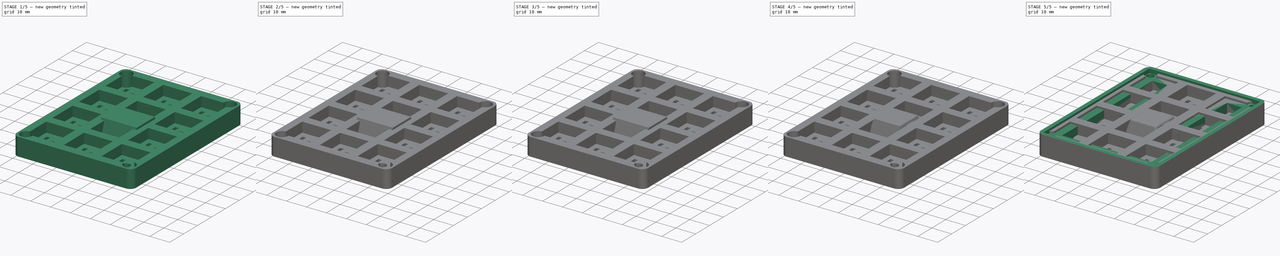
[diagram: build sequence overview — one tinted view per stage of 5, left to right]
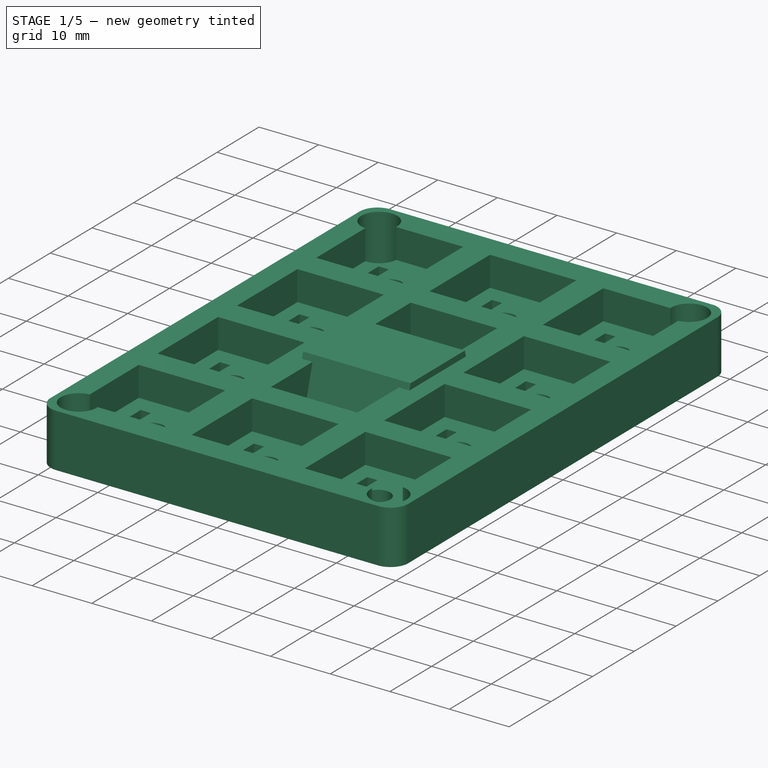
[diagram: stage 1 of 5 — iso view after this stage's code; geometry added in this stage tinted green]
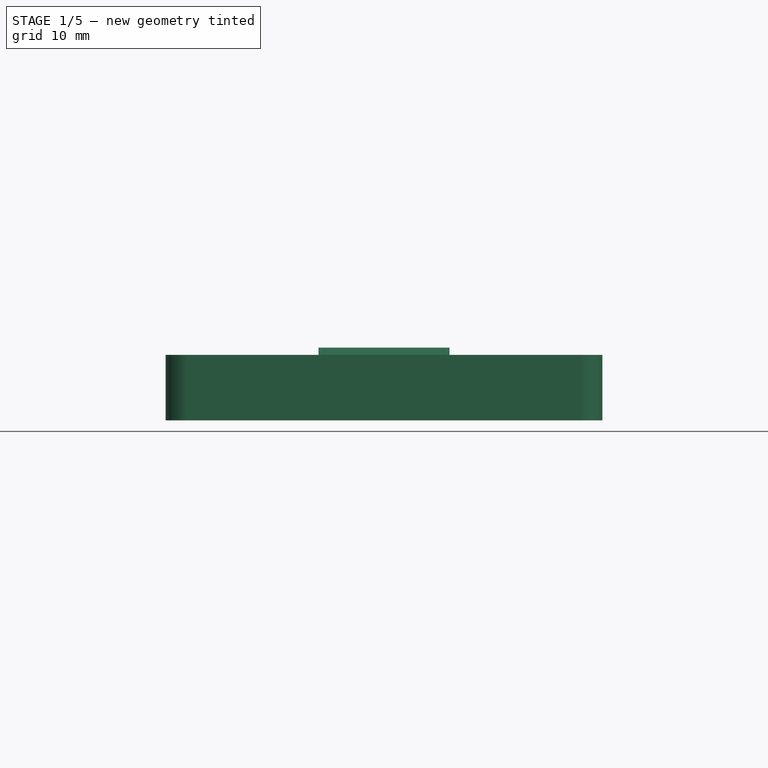
[diagram: stage 1 of 5 — front view after this stage's code; geometry added in this stage tinted green]
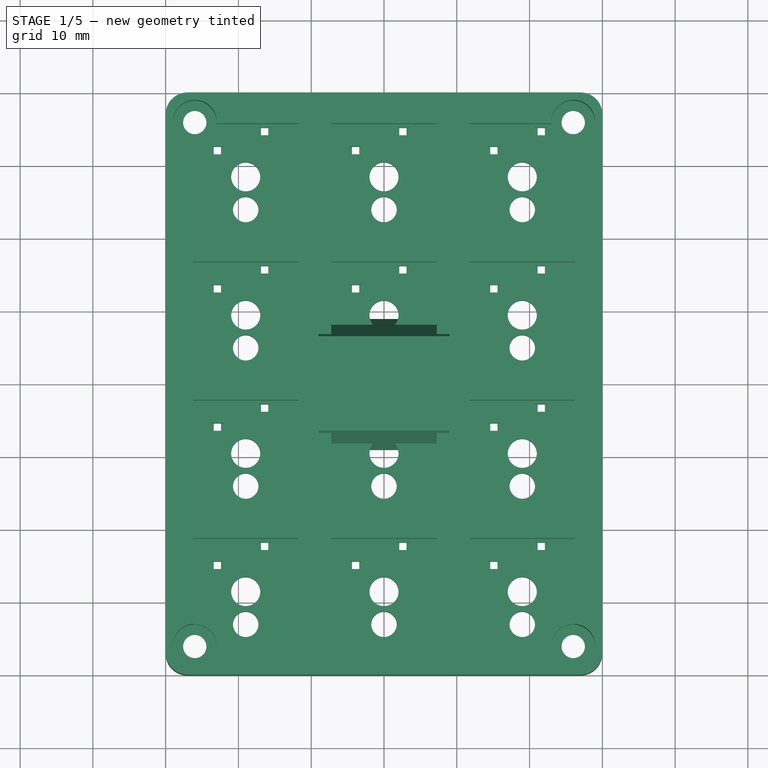
[diagram: stage 1 of 5 — top view after this stage's code; geometry added in this stage tinted green]
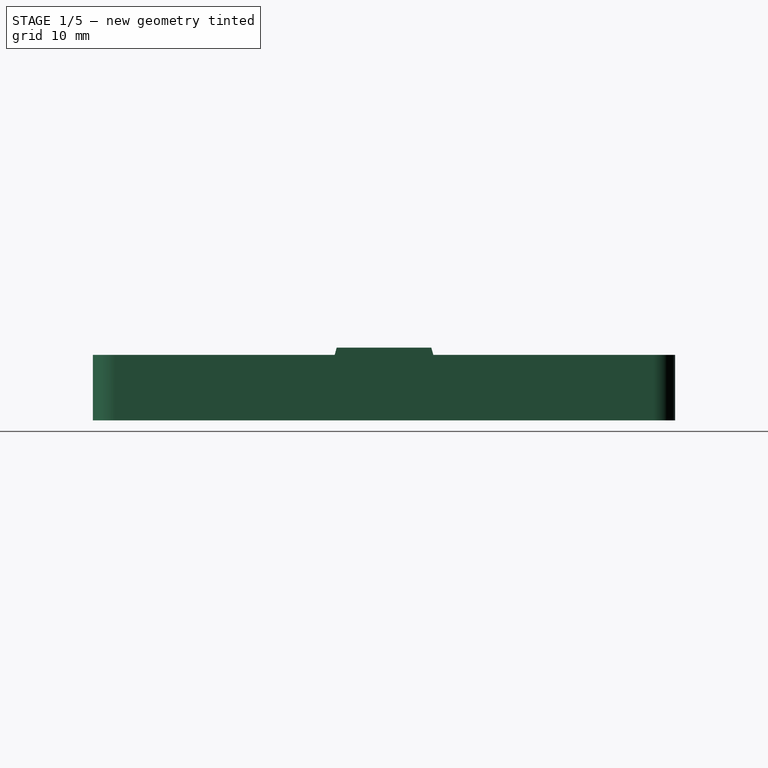
[diagram: stage 1 of 5 — right view after this stage's code; geometry added in this stage tinted green]
FCSTD DOCUMENT  (FreeCAD 1.0R39109 (Git))
Label: HotKeys2
License: All rights reserved
LicenseURL: https://en.wikipedia.org/wiki/All_rights_reserved
objects: Sketcher::SketchObject×106, PartDesign::Pocket×103, PartDesign::Chamfer×36, PartDesign::Pad×27, PartDesign::Fillet×15, PartDesign::Body×15, Part::Part2DObjectPython×12, PartDesign::LinearPattern×5, App::DocumentObjectGroup×1
note: 792 computed .brp shape members not serialized (recipe doc carries the construction recipe); baked Part::Feature solids carry a one-line shape summary decoded from their .brp

FEATURE [PartDesign::Body] Body138  label="Cap_9"
  AllowCompound = false
  Group = -> [Sketch1006,Pad284,Sketch1007,Pocket1152,Sketch1008,Pocket1153,Sketch1009,Pocket1154,Pocket1155,Sketch1010,Pad285,Sketch1011,Pocket1156,Sketch1012,Pocket1157,Chamfer332,Chamfer333,Chamfer334,Fillet132,ShapeString291,Pocket1151]
  Origin = -> Origin138
  Placement = pos=(19,-9.5,21) rot=(0,0,1;0rad)
  Tip = -> Pocket1151
FEATURE [Part::Part2DObjectPython] ShapeString292  # Draft 2D object (typed FeaturePython)
  FontFile = <userpath>/OneDrive/Área de Trabalho/TT Firs Text Trial Regular.ttf
  Fuse = false
  Justification = 6
  JustificationReference = 0
  KeepLeftMargin = true
  MakeFace = true
  ObliqueAngle = 0
  Placement = pos=(-2.08,-2.68,10) rot=(0,0,1;0rad)
  ScaleToSize = false
  Size = 3
  String = A
  Tracking = 0
FEATURE [Part::Part2DObjectPython] ShapeString293  # Draft 2D object (typed FeaturePython)
  FontFile = <userpath>/OneDrive/Área de Trabalho/TT Firs Text Trial Regular.ttf
  Fuse = false
  Justification = 6
  JustificationReference = 0
  KeepLeftMargin = true
  MakeFace = true
  ObliqueAngle = 0
  Placement = pos=(-2.08,-2.68,10) rot=(0,0,1;0rad)
  ScaleToSize = false
  Size = 3
  String = B
  Tracking = 0
FEATURE [Part::Part2DObjectPython] ShapeString294  # Draft 2D object (typed FeaturePython)
  FontFile = <userpath>/OneDrive/Área de Trabalho/TT Firs Text Trial Regular.ttf
  Fuse = false
  Justification = 6
  JustificationReference = 0
  KeepLeftMargin = true
  MakeFace = true
  ObliqueAngle = 0
  Placement = pos=(-3.08,-2.68,10) rot=(0,0,1;0rad)
  ScaleToSize = false
  Size = 3
  String = C
  Tracking = 0
FEATURE [Sketcher::SketchObject] Sketch1019
  ArcFitTolerance = 0
  AttachmentSupport = -> [XY_Plane141]
  FullyConstrained = true
  MakeInternals = false
  MapMode = 5
  sketch-geometry (4):
    g0: LineSegment StartX=-9 StartY=9 StartZ=0 EndX=9 EndY=9 EndZ=0
    g1: LineSegment StartX=9 StartY=9 StartZ=0 EndX=9 EndY=-9 EndZ=0
    g2: LineSegment StartX=9 StartY=-9 StartZ=0 EndX=-9 EndY=-9 EndZ=0
    g3: LineSegment StartX=-9 StartY=-9 StartZ=0 EndX=-9 EndY=9 EndZ=0
  constraints (10):
    c: Coincident(g0,g1)
    c: Coincident(g1,g2)
    c: Coincident(g2,g3)
    c: Coincident(g3,g0)
    c: Horizontal(g2)
    c: Vertical(g1)
    c: Symmetric(g0,g0,g-2)
    c: Symmetric(g0,g2,g-1)
    c: Distance(g0) = 18
    c: Equal(g0,g3)
FEATURE [PartDesign::Pad] Pad290
  Direction = (0,0,1)
  Length = 10
  Length2 = 10
  Profile = -> Sketch1019
  ReferenceAxis = -> Sketch1019 [N_Axis]
  Suppressed = false
  Type = 0
FEATURE [Sketcher::SketchObject] Sketch1020
  ArcFitTolerance = 0
  AttachmentSupport = -> [Pad290]
  ExternalGeometry = -> [Pad290]
  FullyConstrained = true
  MakeInternals = false
  MapMode = 5
  Placement = pos=(9,0,0) rot=(0.57735,0.57735,0.57735;2.0944rad)
  sketch-geometry (6):
    g0: LineSegment StartX=-9 StartY=1 StartZ=0 EndX=-6.5 EndY=10 EndZ=0
    g1: LineSegment StartX=-6.5 StartY=10 StartZ=0 EndX=-9 EndY=10 EndZ=0
    g2: LineSegment StartX=-9 StartY=10 StartZ=0 EndX=-9 EndY=1 EndZ=0
    g3: LineSegment StartX=9 StartY=1 StartZ=0 EndX=6.5 EndY=10 EndZ=0
    g4: LineSegment StartX=6.5 StartY=10 StartZ=0 EndX=9 EndY=10 EndZ=0
    g5: LineSegment StartX=9 StartY=10 StartZ=0 EndX=9 EndY=1 EndZ=0
  constraints (16):
    c: PointOnObject(g0,g-5)
    c: PointOnObject(g0,g-3)
    c: Coincident(g0,g1)
    c: Coincident(g1,g-5)
    c: Coincident(g1,g2)
    c: Coincident(g2,g0)
    c: PointOnObject(g3,g-4)
    c: PointOnObject(g3,g-3)
    c: Coincident(g3,g4)
    c: Coincident(g4,g-4)
    c: Coincident(g4,g5)
    c: Coincident(g5,g3)
    c: Distance(g0,g-5) = 1
    c: Horizontal(g0,g3)
    c: Distance(g1) = 2.5
    c: Distance(g4) = 2.5
FEATURE [PartDesign::Pocket] Pocket1173
  BaseFeature = -> Pad290
  Direction = (-1,0,0)
  Length = 20
  Length2 = 5
  Profile = -> Sketch1020
  ReferenceAxis = -> Sketch1020 [N_Axis]
  Suppressed = false
  Type = 0
FEATURE [Sketcher::SketchObject] Sketch1021
  ArcFitTolerance = 0
  AttachmentSupport = -> [Pocket1173]
  ExternalGeometry = -> [Pocket1173]
  FullyConstrained = true
  MakeInternals = false
  MapMode = 5
  Placement = pos=(0,-9,0) rot=(1,0,0;1.5708rad)
  sketch-geometry (6):
    g0: LineSegment StartX=-9 StartY=1 StartZ=0 EndX=-6.5 EndY=10 EndZ=0
    g1: LineSegment StartX=-6.5 StartY=10 StartZ=0 EndX=-9 EndY=10 EndZ=0
    g2: LineSegment StartX=-9 StartY=10 StartZ=0 EndX=-9 EndY=1 EndZ=0
    g3: LineSegment StartX=9 StartY=1 StartZ=0 EndX=9 EndY=10 EndZ=0
    g4: LineSegment StartX=9 StartY=10 StartZ=0 EndX=6.5 EndY=10 EndZ=0
    g5: LineSegment StartX=6.5 StartY=10 StartZ=0 EndX=9 EndY=1 EndZ=0
  constraints (13):
    c: Coincident(g-4,g0)
    c: PointOnObject(g0,g-3)
    c: Coincident(g0,g1)
    c: Coincident(g1,g-4)
    c: Coincident(g1,g2)
    c: Coincident(g2,g0)
    c: Coincident(g-5,g3)
    c: Coincident(g3,g-5)
    c: Coincident(g3,g4)
    c: Coincident(g4,g5)
    c: Coincident(g5,g3)
    c: Distance(g0,g4) = 13
    c: Symmetric(g0,g4,g-2)
FEATURE [PartDesign::Pocket] Pocket1174
  BaseFeature = -> Pocket1173
  Direction = (0,1,-2e-16)
  Length = 20
  Length2 = 5
  Profile = -> Sketch1021
  ReferenceAxis = -> Sketch1021 [N_Axis]
  Suppressed = false
  Type = 0
FEATURE [Sketcher::SketchObject] Sketch1022
  ArcFitTolerance = 0
  AttachmentSupport = -> [Pocket1174]
  FullyConstrained = true
  MakeInternals = false
  MapMode = 5
  Placement = pos=(0,0,0) rot=(1,0,0;3.14159rad)
  sketch-geometry (4):
    g0: LineSegment StartX=-7.5 StartY=7.5 StartZ=0 EndX=7.5 EndY=7.5 EndZ=0
    g1: LineSegment StartX=7.5 StartY=7.5 StartZ=0 EndX=7.5 EndY=-7.5 EndZ=0
    g2: LineSegment StartX=7.5 StartY=-7.5 StartZ=0 EndX=-7.5 EndY=-7.5 EndZ=0
    g3: LineSegment StartX=-7.5 StartY=-7.5 StartZ=0 EndX=-7.5 EndY=7.5 EndZ=0
  constraints (10):
    c: Coincident(g0,g1)
    c: Coincident(g1,g2)
    c: Coincident(g2,g3)
    c: Coincident(g3,g0)
    c: Horizontal(g2)
    c: Vertical(g1)
    c: Symmetric(g0,g0,g-2)
    c: Symmetric(g0,g2,g-1)
    c: Distance(g0) = 15
    c: Equal(g0,g3)
FEATURE [PartDesign::Pocket] Pocket1175
  BaseFeature = -> Pocket1174
  Direction = (0,0,1)
  Length = 1
  Length2 = 5
  Profile = -> Sketch1022
  ReferenceAxis = -> Sketch1022 [N_Axis]
  Suppressed = false
  Type = 0
FEATURE [PartDesign::Pocket] Pocket1176
  BaseFeature = -> Pocket1175
  Direction = (0,0,1)
  Length = 7
  Length2 = 5
  Profile = -> Pocket1175 [Face15]
  Suppressed = false
  TaperAngle = -10
  Type = 0
FEATURE [Sketcher::SketchObject] Sketch1023
  ArcFitTolerance = 0
  AttachmentSupport = -> [Pocket1176]
  FullyConstrained = true
  MakeInternals = false
  MapMode = 5
  Placement = pos=(0,0,8) rot=(1,0,0;3.14159rad)
  sketch-geometry (4):
    g0: LineSegment StartX=-3.2 StartY=2.2 StartZ=0 EndX=3.2 EndY=2.2 EndZ=0
    g1: LineSegment StartX=3.2 StartY=2.2 StartZ=0 EndX=3.2 EndY=-2.2 EndZ=0
    g2: LineSegment StartX=3.2 StartY=-2.2 StartZ=0 EndX=-3.2 EndY=-2.2 EndZ=0
    g3: LineSegment StartX=-3.2 StartY=-2.2 StartZ=0 EndX=-3.2 EndY=2.2 EndZ=0
  constraints (10):
    c: Coincident(g0,g1)
    c: Coincident(g1,g2)
    c: Coincident(g2,g3)
    c: Coincident(g3,g0)
    c: Horizontal(g2)
    c: Vertical(g1)
    c: Symmetric(g0,g0,g-2)
    c: Symmetric(g0,g2,g-1)
    c: Distance(g3) = 4.4
    c: Distance(g2) = 6.4
FEATURE [PartDesign::Pad] Pad291
  BaseFeature = -> Pocket1176
  Direction = (0,0,-1)
  Length = 8
  Length2 = 10
  Profile = -> Sketch1023
  ReferenceAxis = -> Sketch1023 [N_Axis]
  Suppressed = false
  Type = 0
FEATURE [Sketcher::SketchObject] Sketch1024
  ArcFitTolerance = 0
  AttachmentSupport = -> [Pad291]
  FullyConstrained = true
  MakeInternals = false
  MapMode = 5
  Placement = pos=(0,0,0) rot=(1,0,0;3.14159rad)
  sketch-geometry (4):
    g0: LineSegment StartX=-2.25 StartY=0.7 StartZ=0 EndX=2.25 EndY=0.7 EndZ=0
    g1: LineSegment StartX=2.25 StartY=0.7 StartZ=0 EndX=2.25 EndY=-0.7 EndZ=0
    g2: LineSegment StartX=2.25 StartY=-0.7 StartZ=0 EndX=-2.25 EndY=-0.7 EndZ=0
    g3: LineSegment StartX=-2.25 StartY=-0.7 StartZ=0 EndX=-2.25 EndY=0.7 EndZ=0
  constraints (10):
    c: Coincident(g0,g1)
    c: Coincident(g1,g2)
    c: Coincident(g2,g3)
    c: Coincident(g3,g0)
    c: Horizontal(g2)
    c: Vertical(g1)
    c: Symmetric(g0,g2,g-1)
    c: Symmetric(g0,g0,g-2)
    c: Distance(g3) = 1.4
    c: Distance(g0) = 4.5
FEATURE [PartDesign::Pocket] Pocket1177
  BaseFeature = -> Pad291
  Direction = (0,0,1)
  Length = 4
  Length2 = 5
  Profile = -> Sketch1024
  ReferenceAxis = -> Sketch1024 [N_Axis]
  Suppressed = false
  Type = 0
FEATURE [Sketcher::SketchObject] Sketch1025
  ArcFitTolerance = 0
  AttachmentSupport = -> [Pocket1177]
  FullyConstrained = true
  MakeInternals = false
  MapMode = 5
  Placement = pos=(0,0,0) rot=(1,0,0;3.14159rad)
  sketch-geometry (4):
    g0: LineSegment StartX=-0.7 StartY=3 StartZ=0 EndX=0.7 EndY=3 EndZ=0
    g1: LineSegment StartX=0.7 StartY=3 StartZ=0 EndX=0.7 EndY=-3 EndZ=0
    g2: LineSegment StartX=0.7 StartY=-3 StartZ=0 EndX=-0.7 EndY=-3 EndZ=0
    g3: LineSegment StartX=-0.7 StartY=-3 StartZ=0 EndX=-0.7 EndY=3 EndZ=0
  constraints (10):
    c: Coincident(g0,g1)
    c: Coincident(g1,g2)
    c: Coincident(g2,g3)
    c: Coincident(g3,g0)
    c: Horizontal(g0)
    c: Vertical(g1)
    c: Symmetric(g2,g1,g-2)
    c: Symmetric(g0,g2,g-1)
    c: Distance(g1) = 6
    c: Distance(g0) = 1.4
FEATURE [PartDesign::Pocket] Pocket1178
  BaseFeature = -> Pocket1177
  Direction = (0,0,1)
  Length = 4
  Length2 = 5
  Profile = -> Sketch1025
  ReferenceAxis = -> Sketch1025 [N_Axis]
  Suppressed = false
  Type = 0
FEATURE [PartDesign::Chamfer] Chamfer341
  Angle = 45
  Base = -> Pocket1178 [Edge44,Edge41,Edge42,Edge43]
  BaseFeature = -> Pocket1178
  ChamferType = 0
  FlipDirection = false
  Size = 2.5
  Size2 = 1
  SupportTransform = false
  Suppressed = false
  UseAllEdges = false
FEATURE [PartDesign::Chamfer] Chamfer342
  Angle = 45
  Base = -> Chamfer341 [Edge54,Edge68,Edge64,Edge63]
  BaseFeature = -> Chamfer341
  ChamferType = 0
  FlipDirection = false
  Size = 0.5
  Size2 = 1
  SupportTransform = false
  Suppressed = false
  UseAllEdges = false
FEATURE [PartDesign::Chamfer] Chamfer343
  Angle = 45
  Base = -> Chamfer342 [Edge6,Edge10,Edge9,Edge51,Edge50,Edge53,Edge56,Edge55,Edge1,Edge2]
  BaseFeature = -> Chamfer342
  ChamferType = 0
  FlipDirection = false
  Size = 0.5
  Size2 = 1
  SupportTransform = false
  Suppressed = false
  UseAllEdges = false
FEATURE [PartDesign::Fillet] Fillet135
  Base = -> Chamfer343 [Edge141,Edge133,Edge139,Edge131,Edge144,Edge136,Edge145,Edge140,Edge143,Edge146,Edge142,Edge135]
  BaseFeature = -> Chamfer343
  Radius = 1
  SupportTransform = false
  Suppressed = false
  UseAllEdges = false
FEATURE [PartDesign::Pocket] Pocket1172
  BaseFeature = -> Fillet135
  Direction = (0,0,-1)
  Length = 1
  Length2 = 5
  Profile = -> ShapeString294
  ReferenceAxis = -> ShapeString294 [N_Axis]
  Suppressed = false
  Type = 0
FEATURE [PartDesign::Body] Body141  label="Cap_C"
  AllowCompound = false
  Group = -> [Sketch1019,Pad290,Sketch1020,Pocket1173,Sketch1021,Pocket1174,Sketch1022,Pocket1175,Pocket1176,Sketch1023,Pad291,Sketch1024,Pocket1177,Sketch1025,Pocket1178,Chamfer341,Chamfer342,Chamfer343,Fillet135,ShapeString294,Pocket1172]
  Origin = -> Origin141
  Placement = pos=(19,-28.75,21) rot=(0,0,1;0rad)
  Tip = -> Pocket1172
FEATURE [Sketcher::SketchObject] Sketch1026
  ArcFitTolerance = 0
  AttachmentSupport = -> [XY_Plane139]
  FullyConstrained = true
  MakeInternals = false
  MapMode = 5
  sketch-geometry (4):
    g0: LineSegment StartX=-9 StartY=9 StartZ=0 EndX=9 EndY=9 EndZ=0
    g1: LineSegment StartX=9 StartY=9 StartZ=0 EndX=9 EndY=-9 EndZ=0
    g2: LineSegment StartX=9 StartY=-9 StartZ=0 EndX=-9 EndY=-9 EndZ=0
    g3: LineSegment StartX=-9 StartY=-9 StartZ=0 EndX=-9 EndY=9 EndZ=0
  constraints (10):
    c: Coincident(g0,g1)
    c: Coincident(g1,g2)
    c: Coincident(g2,g3)
    c: Coincident(g3,g0)
    c: Horizontal(g2)
    c: Vertical(g1)
    c: Symmetric(g0,g0,g-2)
    c: Symmetric(g0,g2,g-1)
    c: Distance(g0) = 18
    c: Equal(g0,g3)
FEATURE [PartDesign::Pad] Pad286
  Direction = (0,0,1)
  Length = 10
  Length2 = 10
  Profile = -> Sketch1026
  ReferenceAxis = -> Sketch1026 [N_Axis]
  Suppressed = false
  Type = 0
FEATURE [Sketcher::SketchObject] Sketch1027
  ArcFitTolerance = 0
  AttachmentSupport = -> [Pad286]
  ExternalGeometry = -> [Pad286]
  FullyConstrained = true
  MakeInternals = false
  MapMode = 5
  Placement = pos=(9,0,0) rot=(0.57735,0.57735,0.57735;2.0944rad)
  sketch-geometry (6):
    g0: LineSegment StartX=-9 StartY=1 StartZ=0 EndX=-6.5 EndY=10 EndZ=0
    g1: LineSegment StartX=-6.5 StartY=10 StartZ=0 EndX=-9 EndY=10 EndZ=0
    g2: LineSegment StartX=-9 StartY=10 StartZ=0 EndX=-9 EndY=1 EndZ=0
    g3: LineSegment StartX=9 StartY=1 StartZ=0 EndX=6.5 EndY=10 EndZ=0
    g4: LineSegment StartX=6.5 StartY=10 StartZ=0 EndX=9 EndY=10 EndZ=0
    g5: LineSegment StartX=9 StartY=10 StartZ=0 EndX=9 EndY=1 EndZ=0
  constraints (16):
    c: PointOnObject(g0,g-5)
    c: PointOnObject(g0,g-3)
    c: Coincident(g0,g1)
    c: Coincident(g1,g-5)
    c: Coincident(g1,g2)
    c: Coincident(g2,g0)
    c: PointOnObject(g3,g-4)
    c: PointOnObject(g3,g-3)
    c: Coincident(g3,g4)
    c: Coincident(g4,g-4)
    c: Coincident(g4,g5)
    c: Coincident(g5,g3)
    c: Distance(g0,g-5) = 1
    c: Horizontal(g0,g3)
    c: Distance(g1) = 2.5
    c: Distance(g4) = 2.5
FEATURE [PartDesign::Pocket] Pocket1159
  BaseFeature = -> Pad286
  Direction = (-1,0,0)
  Length = 20
  Length2 = 5
  Profile = -> Sketch1027
  ReferenceAxis = -> Sketch1027 [N_Axis]
  Suppressed = false
  Type = 0
FEATURE [PartDesign::Body] Body139  label="Cap_A"
  AllowCompound = false
  Group = -> [Sketch1026,Pad286,Sketch1027,Pocket1159,Sketch1028,Pocket1160,Sketch1029,Pocket1161,Pocket1162,Sketch1030,Pad287,Sketch1031,Pocket1163,Sketch1032,Pocket1164,Chamfer335,Chamfer336,Chamfer337,Fillet133,ShapeString292,Pocket1158]
  Origin = -> Origin139
  Placement = pos=(-19,-28.5,21) rot=(0,0,1;0rad)
  Tip = -> Pocket1158
FEATURE [Sketcher::SketchObject] Sketch1033
  ArcFitTolerance = 0
  AttachmentSupport = -> [XY_Plane140]
  FullyConstrained = true
  MakeInternals = false
  MapMode = 5
  sketch-geometry (4):
    g0: LineSegment StartX=-9 StartY=9 StartZ=0 EndX=9 EndY=9 EndZ=0
    g1: LineSegment StartX=9 StartY=9 StartZ=0 EndX=9 EndY=-9 EndZ=0
    g2: LineSegment StartX=9 StartY=-9 StartZ=0 EndX=-9 EndY=-9 EndZ=0
    g3: LineSegment StartX=-9 StartY=-9 StartZ=0 EndX=-9 EndY=9 EndZ=0
  constraints (10):
    c: Coincident(g0,g1)
    c: Coincident(g1,g2)
    c: Coincident(g2,g3)
    c: Coincident(g3,g0)
    c: Horizontal(g2)
    c: Vertical(g1)
    c: Symmetric(g0,g0,g-2)
    c: Symmetric(g0,g2,g-1)
    c: Distance(g0) = 18
    c: Equal(g0,g3)
FEATURE [PartDesign::Pad] Pad288
  Direction = (0,0,1)
  Length = 10
  Length2 = 10
  Profile = -> Sketch1033
  ReferenceAxis = -> Sketch1033 [N_Axis]
  Suppressed = false
  Type = 0
FEATURE [Sketcher::SketchObject] Sketch1013
  ArcFitTolerance = 0
  AttachmentSupport = -> [Pad288]
  ExternalGeometry = -> [Pad288]
  FullyConstrained = true
  MakeInternals = false
  MapMode = 5
  Placement = pos=(9,0,0) rot=(0.57735,0.57735,0.57735;2.0944rad)
  sketch-geometry (6):
    g0: LineSegment StartX=-9 StartY=1 StartZ=0 EndX=-6.5 EndY=10 EndZ=0
    g1: LineSegment StartX=-6.5 StartY=10 StartZ=0 EndX=-9 EndY=10 EndZ=0
    g2: LineSegment StartX=-9 StartY=10 StartZ=0 EndX=-9 EndY=1 EndZ=0
    g3: LineSegment StartX=9 StartY=1 StartZ=0 EndX=6.5 EndY=10 EndZ=0
    g4: LineSegment StartX=6.5 StartY=10 StartZ=0 EndX=9 EndY=10 EndZ=0
    g5: LineSegment StartX=9 StartY=10 StartZ=0 EndX=9 EndY=1 EndZ=0
  constraints (16):
    c: PointOnObject(g0,g-5)
    c: PointOnObject(g0,g-3)
    c: Coincident(g0,g1)
    c: Coincident(g1,g-5)
    c: Coincident(g1,g2)
    c: Coincident(g2,g0)
    c: PointOnObject(g3,g-4)
    c: PointOnObject(g3,g-3)
    c: Coincident(g3,g4)
    c: Coincident(g4,g-4)
    c: Coincident(g4,g5)
    c: Coincident(g5,g3)
    c: Distance(g0,g-5) = 1
    c: Horizontal(g0,g3)
    c: Distance(g1) = 2.5
    c: Distance(g4) = 2.5
FEATURE [PartDesign::Pocket] Pocket1166
  BaseFeature = -> Pad288
  Direction = (-1,0,0)
  Length = 20
  Length2 = 5
  Profile = -> Sketch1013
  ReferenceAxis = -> Sketch1013 [N_Axis]
  Suppressed = false
  Type = 0
FEATURE [Sketcher::SketchObject] Sketch1014
  ArcFitTolerance = 0
  AttachmentSupport = -> [Pocket1166]
  ExternalGeometry = -> [Pocket1166]
  FullyConstrained = true
  MakeInternals = false
  MapMode = 5
  Placement = pos=(0,-9,0) rot=(1,0,0;1.5708rad)
  sketch-geometry (6):
    g0: LineSegment StartX=-9 StartY=1 StartZ=0 EndX=-6.5 EndY=10 EndZ=0
    g1: LineSegment StartX=-6.5 StartY=10 StartZ=0 EndX=-9 EndY=10 EndZ=0
    g2: LineSegment StartX=-9 StartY=10 StartZ=0 EndX=-9 EndY=1 EndZ=0
    g3: LineSegment StartX=9 StartY=1 StartZ=0 EndX=9 EndY=10 EndZ=0
    g4: LineSegment StartX=9 StartY=10 StartZ=0 EndX=6.5 EndY=10 EndZ=0
    g5: LineSegment StartX=6.5 StartY=10 StartZ=0 EndX=9 EndY=1 EndZ=0
  constraints (13):
    c: Coincident(g-4,g0)
    c: PointOnObject(g0,g-3)
    c: Coincident(g0,g1)
    c: Coincident(g1,g-4)
    c: Coincident(g1,g2)
    c: Coincident(g2,g0)
    c: Coincident(g-5,g3)
    c: Coincident(g3,g-5)
    c: Coincident(g3,g4)
    c: Coincident(g4,g5)
    c: Coincident(g5,g3)
    c: Distance(g0,g4) = 13
    c: Symmetric(g0,g4,g-2)
FEATURE [PartDesign::Pocket] Pocket1167
  BaseFeature = -> Pocket1166
  Direction = (0,1,-2e-16)
  Length = 20
  Length2 = 5
  Profile = -> Sketch1014
  ReferenceAxis = -> Sketch1014 [N_Axis]
  Suppressed = false
  Type = 0
FEATURE [Sketcher::SketchObject] Sketch1015
  ArcFitTolerance = 0
  AttachmentSupport = -> [Pocket1167]
  FullyConstrained = true
  MakeInternals = false
  MapMode = 5
  Placement = pos=(0,0,0) rot=(1,0,0;3.14159rad)
  sketch-geometry (4):
    g0: LineSegment StartX=-7.5 StartY=7.5 StartZ=0 EndX=7.5 EndY=7.5 EndZ=0
    g1: LineSegment StartX=7.5 StartY=7.5 StartZ=0 EndX=7.5 EndY=-7.5 EndZ=0
    g2: LineSegment StartX=7.5 StartY=-7.5 StartZ=0 EndX=-7.5 EndY=-7.5 EndZ=0
    g3: LineSegment StartX=-7.5 StartY=-7.5 StartZ=0 EndX=-7.5 EndY=7.5 EndZ=0
  constraints (10):
    c: Coincident(g0,g1)
    c: Coincident(g1,g2)
    c: Coincident(g2,g3)
    c: Coincident(g3,g0)
    c: Horizontal(g2)
    c: Vertical(g1)
    c: Symmetric(g0,g0,g-2)
    c: Symmetric(g0,g2,g-1)
    c: Distance(g0) = 15
    c: Equal(g0,g3)
FEATURE [PartDesign::Pocket] Pocket1168
  BaseFeature = -> Pocket1167
  Direction = (0,0,1)
  Length = 1
  Length2 = 5
  Profile = -> Sketch1015
  ReferenceAxis = -> Sketch1015 [N_Axis]
  Suppressed = false
  Type = 0
FEATURE [PartDesign::Pocket] Pocket1169
  BaseFeature = -> Pocket1168
  Direction = (0,0,1)
  Length = 7
  Length2 = 5
  Profile = -> Pocket1168 [Face15]
  Suppressed = false
  TaperAngle = -10
  Type = 0
FEATURE [Sketcher::SketchObject] Sketch1016
  ArcFitTolerance = 0
  AttachmentSupport = -> [Pocket1169]
  FullyConstrained = true
  MakeInternals = false
  MapMode = 5
  Placement = pos=(0,0,8) rot=(1,0,0;3.14159rad)
  sketch-geometry (4):
    g0: LineSegment StartX=-3.2 StartY=2.2 StartZ=0 EndX=3.2 EndY=2.2 EndZ=0
    g1: LineSegment StartX=3.2 StartY=2.2 StartZ=0 EndX=3.2 EndY=-2.2 EndZ=0
    g2: LineSegment StartX=3.2 StartY=-2.2 StartZ=0 EndX=-3.2 EndY=-2.2 EndZ=0
    g3: LineSegment StartX=-3.2 StartY=-2.2 StartZ=0 EndX=-3.2 EndY=2.2 EndZ=0
  constraints (10):
    c: Coincident(g0,g1)
    c: Coincident(g1,g2)
    c: Coincident(g2,g3)
    c: Coincident(g3,g0)
    c: Horizontal(g2)
    c: Vertical(g1)
    c: Symmetric(g0,g0,g-2)
    c: Symmetric(g0,g2,g-1)
    c: Distance(g3) = 4.4
    c: Distance(g2) = 6.4
FEATURE [PartDesign::Pad] Pad289
  BaseFeature = -> Pocket1169
  Direction = (0,0,-1)
  Length = 8
  Length2 = 10
  Profile = -> Sketch1016
  ReferenceAxis = -> Sketch1016 [N_Axis]
  Suppressed = false
  Type = 0
FEATURE [Sketcher::SketchObject] Sketch1017
  ArcFitTolerance = 0
  AttachmentSupport = -> [Pad289]
  FullyConstrained = true
  MakeInternals = false
  MapMode = 5
  Placement = pos=(0,0,0) rot=(1,0,0;3.14159rad)
  sketch-geometry (4):
    g0: LineSegment StartX=-2.25 StartY=0.7 StartZ=0 EndX=2.25 EndY=0.7 EndZ=0
    g1: LineSegment StartX=2.25 StartY=0.7 StartZ=0 EndX=2.25 EndY=-0.7 EndZ=0
    g2: LineSegment StartX=2.25 StartY=-0.7 StartZ=0 EndX=-2.25 EndY=-0.7 EndZ=0
    g3: LineSegment StartX=-2.25 StartY=-0.7 StartZ=0 EndX=-2.25 EndY=0.7 EndZ=0
  constraints (10):
    c: Coincident(g0,g1)
    c: Coincident(g1,g2)
    c: Coincident(g2,g3)
    c: Coincident(g3,g0)
    c: Horizontal(g2)
    c: Vertical(g1)
    c: Symmetric(g0,g2,g-1)
    c: Symmetric(g0,g0,g-2)
    c: Distance(g3) = 1.4
    c: Distance(g0) = 4.5
FEATURE [PartDesign::Pocket] Pocket1170
  BaseFeature = -> Pad289
  Direction = (0,0,1)
  Length = 4
  Length2 = 5
  Profile = -> Sketch1017
  ReferenceAxis = -> Sketch1017 [N_Axis]
  Suppressed = false
  Type = 0
FEATURE [Sketcher::SketchObject] Sketch1018
  ArcFitTolerance = 0
  AttachmentSupport = -> [Pocket1170]
  FullyConstrained = true
  MakeInternals = false
  MapMode = 5
  Placement = pos=(0,0,0) rot=(1,0,0;3.14159rad)
  sketch-geometry (4):
    g0: LineSegment StartX=-0.7 StartY=3 StartZ=0 EndX=0.7 EndY=3 EndZ=0
    g1: LineSegment StartX=0.7 StartY=3 StartZ=0 EndX=0.7 EndY=-3 EndZ=0
    g2: LineSegment StartX=0.7 StartY=-3 StartZ=0 EndX=-0.7 EndY=-3 EndZ=0
    g3: LineSegment StartX=-0.7 StartY=-3 StartZ=0 EndX=-0.7 EndY=3 EndZ=0
  constraints (10):
    c: Coincident(g0,g1)
    c: Coincident(g1,g2)
    c: Coincident(g2,g3)
    c: Coincident(g3,g0)
    c: Horizontal(g0)
    c: Vertical(g1)
    c: Symmetric(g2,g1,g-2)
    c: Symmetric(g0,g2,g-1)
    c: Distance(g1) = 6
    c: Distance(g0) = 1.4
FEATURE [PartDesign::Pocket] Pocket1171
  BaseFeature = -> Pocket1170
  Direction = (0,0,1)
  Length = 4
  Length2 = 5
  Profile = -> Sketch1018
  ReferenceAxis = -> Sketch1018 [N_Axis]
  Suppressed = false
  Type = 0
FEATURE [PartDesign::Chamfer] Chamfer338
  Angle = 45
  Base = -> Pocket1171 [Edge44,Edge41,Edge42,Edge43]
  BaseFeature = -> Pocket1171
  ChamferType = 0
  FlipDirection = false
  Size = 2.5
  Size2 = 1
  SupportTransform = false
  Suppressed = false
  UseAllEdges = false
FEATURE [PartDesign::Chamfer] Chamfer339
  Angle = 45
  Base = -> Chamfer338 [Edge54,Edge68,Edge64,Edge63]
  BaseFeature = -> Chamfer338
  ChamferType = 0
  FlipDirection = false
  Size = 0.5
  Size2 = 1
  SupportTransform = false
  Suppressed = false
  UseAllEdges = false
FEATURE [PartDesign::Body] Body140  label="Cap_B"
  AllowCompound = false
  Group = -> [Sketch1033,Pad288,Sketch1013,Pocket1166,Sketch1014,Pocket1167,Sketch1015,Pocket1168,Pocket1169,Sketch1016,Pad289,Sketch1017,Pocket1170,Sketch1018,Pocket1171,Chamfer338,Chamfer339,Chamfer340,Fillet134,ShapeString293,Pocket1165]
  Origin = -> Origin140
  Placement = pos=(0,-28.75,21) rot=(0,0,1;0rad)
  Tip = -> Pocket1165
FEATURE [App::DocumentObjectGroup] Group  label="Teclas"
  Group = -> [Body130,Body131,Body132,Body133,Body134,Body135,Body136,Body137,Body138,Body139,Body140,Body141]
FEATURE [Sketcher::SketchObject] Sketch1034
  ArcFitTolerance = 1e-06
  AttachmentSupport = -> [XY_Plane142]
  FullyConstrained = true
  MakeInternals = false
  MapMode = 5
  sketch-geometry (4):
    g0: LineSegment StartX=-30 StartY=40 StartZ=0 EndX=-30 EndY=-40 EndZ=0
    g1: LineSegment StartX=-30 StartY=-40 StartZ=0 EndX=30 EndY=-40 EndZ=0
    g2: LineSegment StartX=30 StartY=-40 StartZ=0 EndX=30 EndY=40 EndZ=0
    g3: LineSegment StartX=30 StartY=40 StartZ=0 EndX=-30 EndY=40 EndZ=0
  constraints (10):
    c: Coincident(g0,g1)
    c: Coincident(g1,g2)
    c: Coincident(g2,g3)
    c: Coincident(g3,g0)
    c: Vertical(g2)
    c: Horizontal(g3)
    c: Symmetric(g0,g1,g-2)
    c: Symmetric(g0,g0,g-1)
    c: DistanceX(g3,g3) = 60
    c: DistanceY(g0,g0) = 80
FEATURE [PartDesign::Pad] Pad292
  Direction = (0,0,1)
  Length = 9
  Length2 = 10
  Profile = -> Sketch1034
  ReferenceAxis = -> Sketch1034 [N_Axis]
  Refine = true
  Suppressed = false
  Type = 0
FEATURE [Sketcher::SketchObject] Sketch1035
  ArcFitTolerance = 1e-06
  AttachmentSupport = -> [Pad292]
  ExternalGeometry = -> [Pad292]
  FullyConstrained = true
  MakeInternals = false
  MapMode = 5
  Placement = pos=(0,0,9) rot=(0,0,1;0rad)
  sketch-geometry (48):
    g0: LineSegment StartX=-26.25 StartY=35.75 StartZ=0 EndX=-26.25 EndY=21.25 EndZ=0
    g1: LineSegment StartX=-26.25 StartY=21.25 StartZ=0 EndX=-11.75 EndY=21.25 EndZ=0
    g2: LineSegment StartX=-11.75 StartY=21.25 StartZ=0 EndX=-11.75 EndY=35.75 EndZ=0
    g3: LineSegment StartX=-11.75 StartY=35.75 StartZ=0 EndX=-26.25 EndY=35.75 EndZ=0
    g4: LineSegment StartX=-7.25 StartY=35.75 StartZ=0 EndX=-7.25 EndY=21.25 EndZ=0
    g5: LineSegment StartX=-7.25 StartY=21.25 StartZ=0 EndX=7.25 EndY=21.25 EndZ=0
    g6: LineSegment StartX=7.25 StartY=21.25 StartZ=0 EndX=7.25 EndY=35.75 EndZ=0
    g7: LineSegment StartX=7.25 StartY=35.75 StartZ=0 EndX=-7.25 EndY=35.75 EndZ=0
    g8: LineSegment StartX=11.75 StartY=35.75 StartZ=0 EndX=11.75 EndY=21.25 EndZ=0
    g9: LineSegment StartX=11.75 StartY=21.25 StartZ=0 EndX=26.25 EndY=21.25 EndZ=0
    g10: LineSegment StartX=26.25 StartY=21.25 StartZ=0 EndX=26.25 EndY=35.75 EndZ=0
    g11: LineSegment StartX=26.25 StartY=35.75 StartZ=0 EndX=11.75 EndY=35.75 EndZ=0
    g12: LineSegment StartX=-26.25 StartY=16.75 StartZ=0 EndX=-26.25 EndY=2.25 EndZ=0
    g13: LineSegment StartX=-26.25 StartY=2.25 StartZ=0 EndX=-11.75 EndY=2.25 EndZ=0
    g14: LineSegment StartX=-11.75 StartY=2.25 StartZ=0 EndX=-11.75 EndY=16.75 EndZ=0
    g15: LineSegment StartX=-11.75 StartY=16.75 StartZ=0 EndX=-26.25 EndY=16.75 EndZ=0
    g16: LineSegment StartX=-7.25 StartY=16.75 StartZ=0 EndX=-7.25 EndY=2.25 EndZ=0
    g17: LineSegment StartX=-7.25 StartY=2.25 StartZ=0 EndX=7.25 EndY=2.25 EndZ=0
    g18: LineSegment StartX=7.25 StartY=2.25 StartZ=0 EndX=7.25 EndY=16.75 EndZ=0
    g19: LineSegment StartX=7.25 StartY=16.75 StartZ=0 EndX=-7.25 EndY=16.75 EndZ=0
    g20: LineSegment StartX=11.75 StartY=16.75 StartZ=0 EndX=11.75 EndY=2.25 EndZ=0
    g21: LineSegment StartX=11.75 StartY=2.25 StartZ=0 EndX=26.25 EndY=2.25 EndZ=0
    g22: LineSegment StartX=26.25 StartY=2.25 StartZ=0 EndX=26.25 EndY=16.75 EndZ=0
    g23: LineSegment StartX=26.25 StartY=16.75 StartZ=0 EndX=11.75 EndY=16.75 EndZ=0
    g24: LineSegment StartX=-26.25 StartY=-2.25 StartZ=0 EndX=-26.25 EndY=-16.75 EndZ=0
    g25: LineSegment StartX=-26.25 StartY=-16.75 StartZ=0 EndX=-11.75 EndY=-16.75 EndZ=0
    g26: LineSegment StartX=-11.75 StartY=-16.75 StartZ=0 EndX=-11.75 EndY=-2.25 EndZ=0
    g27: LineSegment StartX=-11.75 StartY=-2.25 StartZ=0 EndX=-26.25 EndY=-2.25 EndZ=0
    g28: LineSegment StartX=-7.25 StartY=-2.25 StartZ=0 EndX=-7.25 EndY=-16.75 EndZ=0
    g29: LineSegment StartX=-7.25 StartY=-16.75 StartZ=0 EndX=7.25 EndY=-16.75 EndZ=0
    g30: LineSegment StartX=7.25 StartY=-16.75 StartZ=0 EndX=7.25 EndY=-2.25 EndZ=0
    g31: LineSegment StartX=7.25 StartY=-2.25 StartZ=0 EndX=-7.25 EndY=-2.25 EndZ=0
    g32: LineSegment StartX=11.75 StartY=-2.25 StartZ=0 EndX=11.75 EndY=-16.75 EndZ=0
    g33: LineSegment StartX=11.75 StartY=-16.75 StartZ=0 EndX=26.25 EndY=-16.75 EndZ=0
    g34: LineSegment StartX=26.25 StartY=-16.75 StartZ=0 EndX=26.25 EndY=-2.25 EndZ=0
    g35: LineSegment StartX=26.25 StartY=-2.25 StartZ=0 EndX=11.75 EndY=-2.25 EndZ=0
    g36: LineSegment StartX=-26.25 StartY=-21.25 StartZ=0 EndX=-26.25 EndY=-35.75 EndZ=0
    g37: LineSegment StartX=-26.25 StartY=-35.75 StartZ=0 EndX=-11.75 EndY=-35.75 EndZ=0
    g38: LineSegment StartX=-11.75 StartY=-35.75 StartZ=0 EndX=-11.75 EndY=-21.25 EndZ=0
    g39: LineSegment StartX=-11.75 StartY=-21.25 StartZ=0 EndX=-26.25 EndY=-21.25 EndZ=0
    g40: LineSegment StartX=-7.25 StartY=-21.25 StartZ=0 EndX=-7.25 EndY=-35.75 EndZ=0
    g41: LineSegment StartX=-7.25 StartY=-35.75 StartZ=0 EndX=7.25 EndY=-35.75 EndZ=0
    g42: LineSegment StartX=7.25 StartY=-35.75 StartZ=0 EndX=7.25 EndY=-21.25 EndZ=0
    g43: LineSegment StartX=7.25 StartY=-21.25 StartZ=0 EndX=-7.25 EndY=-21.25 EndZ=0
    g44: LineSegment StartX=11.75 StartY=-21.25 StartZ=0 EndX=11.75 EndY=-35.75 EndZ=0
    g45: LineSegment StartX=11.75 StartY=-35.75 StartZ=0 EndX=26.25 EndY=-35.75 EndZ=0
    g46: LineSegment StartX=26.25 StartY=-35.75 StartZ=0 EndX=26.25 EndY=-21.25 EndZ=0
    g47: LineSegment StartX=26.25 StartY=-21.25 StartZ=0 EndX=11.75 EndY=-21.25 EndZ=0
  constraints (142):
    c: Coincident(g0,g1)
    c: Coincident(g1,g2)
    c: Coincident(g2,g3)
    c: Coincident(g3,g0)
    c: Vertical(g0)
    c: Vertical(g2)
    c: Horizontal(g1)
    c: Horizontal(g3)
    c: DistanceX(g3,g3) = 14.5
    c: Equal(g0,g3)
    c: Coincident(g4,g5)
    c: Coincident(g5,g6)
    c: Coincident(g6,g7)
    c: Coincident(g7,g4)
    c: Vertical(g4)
    c: Vertical(g6)
    c: Horizontal(g5)
    c: Equal(g3,g7)
    c: Equal(g0,g4)
    c: Horizontal(g2,g4)
    c: Symmetric(g4,g6,g-2)
    c: DistanceX(g2,g4) = 4.5
    c: Coincident(g8,g9)
    c: Coincident(g9,g10)
    c: Coincident(g10,g11)
    c: Coincident(g11,g8)
    c: Vertical(g8)
    c: Vertical(g10)
    c: Horizontal(g9)
    c: Horizontal(g11)
    c: Equal(g7,g11)
    c: Equal(g6,g8)
    c: Horizontal(g8,g6)
    c: DistanceX(g6,g8) = 4.5
    c: Coincident(g12,g13)
    c: Coincident(g13,g14)
    c: Coincident(g14,g15)
    c: Coincident(g15,g12)
    c: Vertical(g12)
    c: Vertical(g14)
    c: Horizontal(g13)
    c: Horizontal(g15)
    c: Coincident(g16,g17)
    c: Coincident(g17,g18)
    c: Coincident(g18,g19)
    c: Coincident(g19,g16)
    c: Vertical(g16)
    c: Vertical(g18)
    c: Horizontal(g17)
    c: Horizontal(g19)
    c: Coincident(g20,g21)
    c: Coincident(g21,g22)
    c: Coincident(g22,g23)
    c: Coincident(g23,g20)
    c: Vertical(g20)
    c: Vertical(g22)
    c: Horizontal(g21)
    c: Horizontal(g23)
    c: Equal(g3,g12)
    c: Equal(g12,g15)
    c: Equal(g15,g16)
    c: Equal(g16,g19)
    c: Equal(g19,g20)
    c: Equal(g20,g23)
    c: Horizontal(g14,g16)
    c: Horizontal(g16,g20)
    c: Vertical(g16,g4)
    c: Vertical(g12,g0)
    c: Vertical(g20,g8)
    c: DistanceY(g12,g0) = 4.5
    c: Coincident(g24,g25)
    c: Coincident(g25,g26)
    c: Coincident(g26,g27)
    c: Coincident(g27,g24)
    c: Vertical(g24)
    c: Vertical(g26)
    c: Horizontal(g25)
    c: Horizontal(g27)
    c: Coincident(g28,g29)
    c: Coincident(g29,g30)
    c: Coincident(g30,g31)
    c: Coincident(g31,g28)
    c: Vertical(g28)
    c: Vertical(g30)
    c: Horizontal(g29)
    c: Horizontal(g31)
    c: Coincident(g32,g33)
    c: Coincident(g33,g34)
    c: Coincident(g34,g35)
    c: Coincident(g35,g32)
    c: Vertical(g32)
    c: Vertical(g34)
    c: Horizontal(g33)
    c: Horizontal(g35)
    c: Coincident(g36,g37)
    c: Coincident(g37,g38)
    c: Coincident(g38,g39)
    c: Coincident(g39,g36)
    c: Vertical(g36)
    c: Vertical(g38)
    c: Horizontal(g37)
    c: Horizontal(g39)
    c: Coincident(g40,g41)
    c: Coincident(g41,g42)
    c: Coincident(g42,g43)
    c: Coincident(g43,g40)
    c: Vertical(g40)
    c: Vertical(g42)
    c: Horizontal(g41)
    c: Horizontal(g43)
    c: Coincident(g44,g45)
    c: Coincident(g45,g46)
    c: Coincident(g46,g47)
    c: Coincident(g47,g44)
    c: Vertical(g44)
    c: Vertical(g46)
    c: Horizontal(g45)
    c: Horizontal(g47)
    c: Equal(g3,g27)
    c: Equal(g27,g24)
    c: Equal(g24,g39)
    c: Equal(g39,g36)
    c: Equal(g36,g31)
    c: Equal(g31,g28)
    c: Equal(g28,g43)
    c: Equal(g43,g40)
    c: Equal(g40,g35)
    c: Equal(g35,g32)
    c: Equal(g32,g47)
    c: Equal(g47,g44)
    c: Horizontal(g26,g28)
    c: Horizontal(g28,g32)
    c: Horizontal(g38,g40)
    c: Horizontal(g40,g44)
    c: Vertical(g16,g28)
    c: Vertical(g28,g40)
    c: Vertical(g24,g36)
    c: Vertical(g20,g32)
    c: DistanceY(g24,g12) = 4.5
    c: DistanceY(g36,g24) = 4.5
    c: Symmetric(g12,g24,g-1)
    c: Vertical(g32,g44)
FEATURE [PartDesign::Pocket] Pocket1179
  BaseFeature = -> Pad292
  Direction = (0,0,-1)
  Length = 5
  Length2 = 5
  Profile = -> Sketch1035
  ReferenceAxis = -> Sketch1035 [N_Axis]
  Refine = true
  Suppressed = false
  Type = 0
FEATURE [Sketcher::SketchObject] Sketch1036
  ArcFitTolerance = 1e-06
  AttachmentSupport = -> [Pocket1179]
  ExternalGeometry = -> [Pocket1179]
  FullyConstrained = true
  MakeInternals = false
  MapMode = 5
  Placement = pos=(0,0,4) rot=(0,0,1;0rad)
  sketch-geometry (19):
    g0: Circle CenterX=-19 CenterY=28.5 CenterZ=0 NormalX=0 NormalY=0 NormalZ=1 AngleXU=0 Radius=2
    g1: GeomPoint X=-26.25 Y=28.5 Z=0
    g2: GeomPoint X=-19 Y=35.75 Z=0
    g3: GeomPoint X=-26.25 Y=9.5 Z=0
    g4: GeomPoint X=-26.25 Y=-9.5 Z=0
    g5: GeomPoint X=-26.25 Y=-28.5 Z=0
    g6: GeomPoint X=-4e-16 Y=35.75 Z=0
    g7: GeomPoint X=19 Y=35.75 Z=0
    g8: Circle CenterX=-4e-16 CenterY=28.5 CenterZ=0 NormalX=0 NormalY=0 NormalZ=1 AngleXU=0 Radius=2
    g9: Circle CenterX=19 CenterY=28.5 CenterZ=0 NormalX=0 NormalY=0 NormalZ=1 AngleXU=0 Radius=2
    g10: Circle CenterX=-19 CenterY=9.5 CenterZ=0 NormalX=0 NormalY=0 NormalZ=1 AngleXU=0 Radius=2
    g11: Circle CenterX=-4e-16 CenterY=9.5 CenterZ=0 NormalX=0 NormalY=0 NormalZ=1 AngleXU=0 Radius=2
    g12: Circle CenterX=19 CenterY=9.5 CenterZ=0 NormalX=0 NormalY=0 NormalZ=1 AngleXU=0 Radius=2
    g13: Circle CenterX=-19 CenterY=-9.5 CenterZ=0 NormalX=0 NormalY=0 NormalZ=1 AngleXU=0 Radius=2
    g14: Circle CenterX=-4e-16 CenterY=-9.5 CenterZ=0 NormalX=0 NormalY=0 NormalZ=1 AngleXU=0 Radius=2
    g15: Circle CenterX=19 CenterY=-9.5 CenterZ=0 NormalX=0 NormalY=0 NormalZ=1 AngleXU=0 Radius=2
    g16: Circle CenterX=-19 CenterY=-28.5 CenterZ=0 NormalX=0 NormalY=0 NormalZ=1 AngleXU=0 Radius=2
    g17: Circle CenterX=-4e-16 CenterY=-28.5 CenterZ=0 NormalX=0 NormalY=0 NormalZ=1 AngleXU=0 Radius=2
    g18: Circle CenterX=19 CenterY=-28.5 CenterZ=0 NormalX=0 NormalY=0 NormalZ=1 AngleXU=0 Radius=2
  constraints (43):
    c: Diameter(g0) = 4
    c: Symmetric(g-6,g-6,g7)
    c: Symmetric(g-5,g-5,g6)
    c: Symmetric(g-4,g-3,g2)
    c: Symmetric(g-4,g-4,g1)
    c: Symmetric(g-7,g-7,g3)
    c: Symmetric(g-8,g-8,g4)
    c: Symmetric(g-9,g-9,g5)
    c: Horizontal(g0,g1)
    c: Vertical(g0,g2)
    c: Vertical(g7,g9)
    c: Vertical(g9,g12)
    c: Vertical(g12,g15)
    c: Vertical(g15,g18)
    c: Vertical(g6,g8)
    c: Vertical(g8,g11)
    c: Vertical(g11,g14)
    c: Vertical(g14,g17)
    c: Vertical(g0,g10)
    c: Vertical(g10,g13)
    c: Vertical(g13,g16)
    c: Horizontal(g0,g8)
    c: Horizontal(g8,g9)
    c: Horizontal(g10,g11)
    c: Horizontal(g11,g12)
    c: Horizontal(g13,g14)
    c: Horizontal(g14,g15)
    c: Horizontal(g16,g17)
    c: Horizontal(g17,g18)
    c: Horizontal(g16,g5)
    c: Horizontal(g13,g4)
    c: Horizontal(g10,g3)
    c: Equal(g10,g0)
    c: Equal(g13,g0)
    c: Equal(g16,g0)
    c: Equal(g17,g0)
    c: Equal(g14,g0)
    c: Equal(g11,g0)
    c: Equal(g8,g0)
    c: Equal(g9,g0)
    c: Equal(g12,g0)
    c: Equal(g15,g0)
    c: Equal(g18,g0)
FEATURE [PartDesign::Pocket] Pocket1180
  BaseFeature = -> Pocket1179
  Direction = (0,0,-1)
  Length = 5
  Length2 = 5
  Profile = -> Sketch1036
  ReferenceAxis = -> Sketch1036 [N_Axis]
  Refine = true
  Suppressed = false
  Type = 0
FEATURE [Sketcher::SketchObject] Sketch1037
  ArcFitTolerance = 1e-06
  AttachmentSupport = -> [Pocket1180]
  ExternalGeometry = -> [Pocket1180]
  FullyConstrained = true
  MakeInternals = false
  MapMode = 5
  Placement = pos=(0,0,4) rot=(0,0,1;0rad)
  sketch-geometry (32):
    g0: LineSegment StartX=-23.75 StartY=32.65 StartZ=0 EndX=-23.75 EndY=29.95 EndZ=0
    g1: LineSegment StartX=-23.75 StartY=29.95 StartZ=0 EndX=-22.05 EndY=29.95 EndZ=0
    g2: LineSegment StartX=-22.05 StartY=29.95 StartZ=0 EndX=-22.05 EndY=32.65 EndZ=0
    g3: LineSegment StartX=-22.05 StartY=32.65 StartZ=0 EndX=-23.75 EndY=32.65 EndZ=0
    g4: LineSegment StartX=-17.25 StartY=35.25 StartZ=0 EndX=-17.25 EndY=32.55 EndZ=0
    g5: LineSegment StartX=-17.25 StartY=32.55 StartZ=0 EndX=-15.55 EndY=32.55 EndZ=0
    g6: LineSegment StartX=-15.55 StartY=32.55 StartZ=0 EndX=-15.55 EndY=35.25 EndZ=0
    g7: LineSegment StartX=-15.55 StartY=35.25 StartZ=0 EndX=-17.25 EndY=35.25 EndZ=0
    g8: LineSegment StartX=-23.75 StartY=13.65 StartZ=0 EndX=-23.75 EndY=10.95 EndZ=0
    g9: LineSegment StartX=-23.75 StartY=10.95 StartZ=0 EndX=-22.05 EndY=10.95 EndZ=0
    g10: LineSegment StartX=-22.05 StartY=10.95 StartZ=0 EndX=-22.05 EndY=13.65 EndZ=0
    g11: LineSegment StartX=-22.05 StartY=13.65 StartZ=0 EndX=-23.75 EndY=13.65 EndZ=0
    g12: LineSegment StartX=-17.25 StartY=16.25 StartZ=0 EndX=-17.25 EndY=13.55 EndZ=0
    g13: LineSegment StartX=-17.25 StartY=13.55 StartZ=0 EndX=-15.55 EndY=13.55 EndZ=0
    g14: LineSegment StartX=-15.55 StartY=13.55 StartZ=0 EndX=-15.55 EndY=16.25 EndZ=0
    g15: LineSegment StartX=-15.55 StartY=16.25 StartZ=0 EndX=-17.25 EndY=16.25 EndZ=0
    g16: LineSegment StartX=-23.75 StartY=-5.35 StartZ=0 EndX=-23.75 EndY=-8.05 EndZ=0
    g17: LineSegment StartX=-23.75 StartY=-8.05 StartZ=0 EndX=-22.05 EndY=-8.05 EndZ=0
    g18: LineSegment StartX=-22.05 StartY=-8.05 StartZ=0 EndX=-22.05 EndY=-5.35 EndZ=0
    g19: LineSegment StartX=-22.05 StartY=-5.35 StartZ=0 EndX=-23.75 EndY=-5.35 EndZ=0
    g20: LineSegment StartX=-17.25 StartY=-2.75 StartZ=0 EndX=-17.25 EndY=-5.45 EndZ=0
    g21: LineSegment StartX=-17.25 StartY=-5.45 StartZ=0 EndX=-15.55 EndY=-5.45 EndZ=0
    g22: LineSegment StartX=-15.55 StartY=-5.45 StartZ=0 EndX=-15.55 EndY=-2.75 EndZ=0
    g23: LineSegment StartX=-15.55 StartY=-2.75 StartZ=0 EndX=-17.25 EndY=-2.75 EndZ=0
    g24: LineSegment StartX=-23.75 StartY=-24.35 StartZ=0 EndX=-23.75 EndY=-27.05 EndZ=0
    g25: LineSegment StartX=-23.75 StartY=-27.05 StartZ=0 EndX=-22.05 EndY=-27.05 EndZ=0
    g26: LineSegment StartX=-22.05 StartY=-27.05 StartZ=0 EndX=-22.05 EndY=-24.35 EndZ=0
    g27: LineSegment StartX=-22.05 StartY=-24.35 StartZ=0 EndX=-23.75 EndY=-24.35 EndZ=0
    g28: LineSegment StartX=-17.25 StartY=-21.75 StartZ=0 EndX=-17.25 EndY=-24.45 EndZ=0
    g29: LineSegment StartX=-17.25 StartY=-24.45 StartZ=0 EndX=-15.55 EndY=-24.45 EndZ=0
    g30: LineSegment StartX=-15.55 StartY=-24.45 StartZ=0 EndX=-15.55 EndY=-21.75 EndZ=0
    g31: LineSegment StartX=-15.55 StartY=-21.75 StartZ=0 EndX=-17.25 EndY=-21.75 EndZ=0
  constraints (96):
    c: Coincident(g0,g1)
    c: Coincident(g1,g2)
    c: Coincident(g2,g3)
    c: Coincident(g3,g0)
    c: Vertical(g0)
    c: Vertical(g2)
    c: Horizontal(g1)
    c: Horizontal(g3)
    c: Coincident(g4,g5)
    c: Coincident(g5,g6)
    c: Coincident(g6,g7)
    c: Coincident(g7,g4)
    c: Vertical(g4)
    c: Vertical(g6)
    c: Horizontal(g5)
    c: Horizontal(g7)
    c: Equal(g3,g7)
    c: Equal(g0,g4)
    c: DistanceY(g0,g0) = 2.7
    c: DistanceX(g3,g3) = 1.7
    c: Distance(g0,g-3) = 3.1
    c: Distance(g0,g-4) = 2.5
    c: Distance(g4,g-3) = 0.5
    c: Distance(g6,g-10) = 3.8
    c: Coincident(g8,g9)
    c: Coincident(g9,g10)
    c: Coincident(g10,g11)
    c: Coincident(g11,g8)
    c: Vertical(g8)
    c: Vertical(g10)
    c: Horizontal(g9)
    c: Horizontal(g11)
    c: Coincident(g12,g13)
    c: Coincident(g13,g14)
    c: Coincident(g14,g15)
    c: Coincident(g15,g12)
    c: Vertical(g12)
    c: Vertical(g14)
    c: Horizontal(g13)
    c: Horizontal(g15)
    c: Equal(g0,g8)
    c: Equal(g3,g11)
    c: Equal(g3,g15)
    c: Equal(g0,g12)
    c: Vertical(g8,g0)
    c: Vertical(g4,g12)
    c: Distance(g8,g-11) = 3.1
    c: Distance(g12,g-11) = 0.5
    c: Coincident(g16,g17)
    c: Coincident(g17,g18)
    c: Coincident(g18,g19)
    c: Coincident(g19,g16)
    c: Vertical(g16)
    c: Vertical(g18)
    c: Horizontal(g17)
    c: Horizontal(g19)
    c: Coincident(g20,g21)
    c: Coincident(g21,g22)
    c: Coincident(g22,g23)
    c: Coincident(g23,g20)
    c: Vertical(g20)
    c: Vertical(g22)
    c: Horizontal(g21)
    c: Horizontal(g23)
    c: Equal(g16,g20)
    c: Equal(g19,g23)
    c: Vertical(g12,g20)
    c: Vertical(g16,g8)
    c: Equal(g19,g3)
    c: Equal(g16,g0)
    c: Distance(g20,g-12) = 0.5
    c: Distance(g16,g-12) = 3.1
    c: Coincident(g24,g25)
    c: Coincident(g25,g26)
    c: Coincident(g26,g27)
    c: Coincident(g27,g24)
    c: Vertical(g24)
    c: Vertical(g26)
    c: Horizontal(g25)
    c: Horizontal(g27)
    c: Coincident(g28,g29)
    c: Coincident(g29,g30)
    c: Coincident(g30,g31)
    c: Coincident(g31,g28)
    c: Vertical(g28)
    c: Vertical(g30)
    c: Horizontal(g29)
    c: Horizontal(g31)
    c: Equal(g27,g3)
    c: Equal(g24,g0)
    c: Equal(g31,g27)
    c: Equal(g28,g24)
    c: Vertical(g16,g24)
    c: Vertical(g20,g28)
    c: Distance(g28,g-13) = 0.5
    c: Distance(g24,g-13) = 3.1
FEATURE [PartDesign::Pocket] Pocket1181
  BaseFeature = -> Pocket1180
  Direction = (0,0,-1)
  Length = 3
  Length2 = 5
  Profile = -> Sketch1037
  ReferenceAxis = -> Sketch1037 [N_Axis]
  Refine = true
  Suppressed = false
  Type = 0
FEATURE [PartDesign::LinearPattern] LinearPattern002
  BaseFeature = -> Pocket1181
  Direction = -> Sketch1037 [H_Axis]
  Length = 38
  Mode = 0
  Occurrences = 3
  Offset = 19
  Originals = -> [Pocket1181]
  Refine = true
  Suppressed = false
  TransformMode = 0
FEATURE [Sketcher::SketchObject] Sketch1038
  ArcFitTolerance = 1e-06
  AttachmentSupport = -> [LinearPattern002]
  ExternalGeometry = -> [LinearPattern002]
  FullyConstrained = true
  MakeInternals = false
  MapMode = 5
  Placement = pos=(0,0,1) rot=(0,0,1;0rad)
  sketch-geometry (32):
    g0: LineSegment StartX=-23.4 StartY=32.65 StartZ=0 EndX=-23.4 EndY=31.65 EndZ=0
    g1: LineSegment StartX=-23.4 StartY=31.65 StartZ=0 EndX=-22.4 EndY=31.65 EndZ=0
    g2: LineSegment StartX=-22.4 StartY=31.65 StartZ=0 EndX=-22.4 EndY=32.65 EndZ=0
    g3: LineSegment StartX=-22.4 StartY=32.65 StartZ=0 EndX=-23.4 EndY=32.65 EndZ=0
    g4: LineSegment StartX=-16.9 StartY=35.25 StartZ=0 EndX=-16.9 EndY=34.25 EndZ=0
    g5: LineSegment StartX=-16.9 StartY=34.25 StartZ=0 EndX=-15.9 EndY=34.25 EndZ=0
    g6: LineSegment StartX=-15.9 StartY=34.25 StartZ=0 EndX=-15.9 EndY=35.25 EndZ=0
    g7: LineSegment StartX=-15.9 StartY=35.25 StartZ=0 EndX=-16.9 EndY=35.25 EndZ=0
    g8: LineSegment StartX=-23.4 StartY=13.65 StartZ=0 EndX=-23.4 EndY=12.65 EndZ=0
    g9: LineSegment StartX=-23.4 StartY=12.65 StartZ=0 EndX=-22.4 EndY=12.65 EndZ=0
    g10: LineSegment StartX=-22.4 StartY=12.65 StartZ=0 EndX=-22.4 EndY=13.65 EndZ=0
    g11: LineSegment StartX=-22.4 StartY=13.65 StartZ=0 EndX=-23.4 EndY=13.65 EndZ=0
    g12: LineSegment StartX=-16.9 StartY=16.25 StartZ=0 EndX=-16.9 EndY=15.25 EndZ=0
    g13: LineSegment StartX=-16.9 StartY=15.25 StartZ=0 EndX=-15.9 EndY=15.25 EndZ=0
    g14: LineSegment StartX=-15.9 StartY=15.25 StartZ=0 EndX=-15.9 EndY=16.25 EndZ=0
    g15: LineSegment StartX=-15.9 StartY=16.25 StartZ=0 EndX=-16.9 EndY=16.25 EndZ=0
    g16: LineSegment StartX=-23.4 StartY=-5.35 StartZ=0 EndX=-23.4 EndY=-6.35 EndZ=0
    g17: LineSegment StartX=-23.4 StartY=-6.35 StartZ=0 EndX=-22.4 EndY=-6.35 EndZ=0
    g18: LineSegment StartX=-22.4 StartY=-6.35 StartZ=0 EndX=-22.4 EndY=-5.35 EndZ=0
    g19: LineSegment StartX=-22.4 StartY=-5.35 StartZ=0 EndX=-23.4 EndY=-5.35 EndZ=0
    g20: LineSegment StartX=-16.9 StartY=-2.75 StartZ=0 EndX=-16.9 EndY=-3.75 EndZ=0
    g21: LineSegment StartX=-16.9 StartY=-3.75 StartZ=0 EndX=-15.9 EndY=-3.75 EndZ=0
    g22: LineSegment StartX=-15.9 StartY=-3.75 StartZ=0 EndX=-15.9 EndY=-2.75 EndZ=0
    g23: LineSegment StartX=-15.9 StartY=-2.75 StartZ=0 EndX=-16.9 EndY=-2.75 EndZ=0
    g24: LineSegment StartX=-23.4 StartY=-24.35 StartZ=0 EndX=-23.4 EndY=-25.35 EndZ=0
    g25: LineSegment StartX=-23.4 StartY=-25.35 StartZ=0 EndX=-22.4 EndY=-25.35 EndZ=0
    g26: LineSegment StartX=-22.4 StartY=-25.35 StartZ=0 EndX=-22.4 EndY=-24.35 EndZ=0
    g27: LineSegment StartX=-22.4 StartY=-24.35 StartZ=0 EndX=-23.4 EndY=-24.35 EndZ=0
    g28: LineSegment StartX=-16.9 StartY=-21.75 StartZ=0 EndX=-16.9 EndY=-22.75 EndZ=0
    g29: LineSegment StartX=-16.9 StartY=-22.75 StartZ=0 EndX=-15.9 EndY=-22.75 EndZ=0
    g30: LineSegment StartX=-15.9 StartY=-22.75 StartZ=0 EndX=-15.9 EndY=-21.75 EndZ=0
    g31: LineSegment StartX=-15.9 StartY=-21.75 StartZ=0 EndX=-16.9 EndY=-21.75 EndZ=0
  constraints (96):
    c: Coincident(g0,g1)
    c: Coincident(g1,g2)
    c: Coincident(g2,g3)
    c: Coincident(g3,g0)
    c: Vertical(g0)
    c: Vertical(g2)
    c: Horizontal(g1)
    c: Horizontal(g3)
    c: PointOnObject(g0,g-4)
    c: Coincident(g4,g5)
    c: Coincident(g5,g6)
    c: Coincident(g6,g7)
    c: Coincident(g7,g4)
    c: Vertical(g4)
    c: Vertical(g6)
    c: Horizontal(g5)
    c: Horizontal(g7)
    c: PointOnObject(g4,g-5)
    c: Coincident(g8,g9)
    c: Coincident(g9,g10)
    c: Coincident(g10,g11)
    c: Coincident(g11,g8)
    c: Vertical(g8)
    c: Vertical(g10)
    c: Horizontal(g9)
    c: Horizontal(g11)
    c: PointOnObject(g8,g-6)
    c: Coincident(g12,g13)
    c: Coincident(g13,g14)
    c: Coincident(g14,g15)
    c: Coincident(g15,g12)
    c: Vertical(g12)
    c: Vertical(g14)
    c: Horizontal(g13)
    c: Horizontal(g15)
    c: PointOnObject(g12,g-7)
    c: Coincident(g16,g17)
    c: Coincident(g17,g18)
    c: Coincident(g18,g19)
    c: Coincident(g19,g16)
    c: Vertical(g16)
    c: Vertical(g18)
    c: Horizontal(g17)
    c: Horizontal(g19)
    c: PointOnObject(g16,g-8)
    c: Coincident(g20,g21)
    c: Coincident(g21,g22)
    c: Coincident(g22,g23)
    c: Coincident(g23,g20)
    c: Vertical(g20)
    c: Vertical(g22)
    c: Horizontal(g21)
    c: Horizontal(g23)
    c: PointOnObject(g20,g-9)
    c: Coincident(g24,g25)
    c: Coincident(g25,g26)
    c: Coincident(g26,g27)
    c: Coincident(g27,g24)
    c: Vertical(g24)
    c: Vertical(g26)
    c: Horizontal(g25)
    c: Horizontal(g27)
    c: PointOnObject(g24,g-10)
    c: Coincident(g28,g29)
    c: Coincident(g29,g30)
    c: Coincident(g30,g31)
    c: Coincident(g31,g28)
    c: Vertical(g28)
    c: Vertical(g30)
    c: Horizontal(g29)
    c: Horizontal(g31)
    c: PointOnObject(g28,g-11)
    c: Equal(g28,g29)
    c: Equal(g28,g26)
    c: Equal(g26,g25)
    c: Equal(g21,g20)
    c: Equal(g20,g17)
    c: Equal(g17,g16)
    c: Equal(g13,g12)
    c: Equal(g12,g9)
    c: Equal(g9,g8)
    c: Equal(g5,g4)
    c: Equal(g4,g1)
    c: Equal(g1,g0)
    c: DistanceX(g1,g1) = 1
    c: Equal(g0,g8)
    c: Equal(g8,g16)
    c: Equal(g16,g24)
    c: DistanceX(g-4,g0) = 0.35
    c: DistanceX(g-5,g4) = 0.35
    c: Vertical(g0,g8)
    c: Vertical(g8,g16)
    c: Vertical(g16,g24)
    c: Vertical(g28,g20)
    c: Vertical(g20,g12)
    c: Vertical(g12,g4)
FEATURE [PartDesign::Pocket] Pocket1182
  BaseFeature = -> LinearPattern002
  Direction = (0,0,-1)
  Length = 5
  Length2 = 5
  Profile = -> Sketch1038
  ReferenceAxis = -> Sketch1038 [N_Axis]
  Refine = true
  Suppressed = false
  Type = 0
FEATURE [PartDesign::LinearPattern] LinearPattern003
  BaseFeature = -> Pocket1182
  Direction = -> Sketch1038 [H_Axis]
  Length = 38
  Mode = 0
  Occurrences = 3
  Offset = 19
  Originals = -> [Pocket1182]
  Refine = true
  Suppressed = false
  TransformMode = 0
FEATURE [PartDesign::Fillet] Fillet136
  Base = -> LinearPattern003 [Edge8,Edge5,Edge2,Edge1]
  BaseFeature = -> LinearPattern003
  Radius = 3
  Refine = true
  SupportTransform = false
  Suppressed = false
  UseAllEdges = false
FEATURE [Sketcher::SketchObject] Sketch1039
  ArcFitTolerance = 1e-06
  AttachmentSupport = -> [Fillet136]
  ExternalGeometry = -> [Fillet136]
  FullyConstrained = true
  MakeInternals = false
  MapMode = 5
  Placement = pos=(0,0,9) rot=(0,0,1;0rad)
  sketch-geometry (4):
    g0: Circle CenterX=-26 CenterY=36 CenterZ=0 NormalX=0 NormalY=0 NormalZ=1 AngleXU=0 Radius=1.6
    g1: Circle CenterX=26 CenterY=36 CenterZ=0 NormalX=0 NormalY=0 NormalZ=1 AngleXU=0 Radius=1.6
    g2: Circle CenterX=-26 CenterY=-36 CenterZ=0 NormalX=0 NormalY=0 NormalZ=1 AngleXU=0 Radius=1.6
    g3: Circle CenterX=26 CenterY=-36 CenterZ=0 NormalX=0 NormalY=0 NormalZ=1 AngleXU=0 Radius=1.6
  constraints (9):
    c: Diameter(g0) = 3.2
    c: Symmetric(g0,g1,g-2)
    c: Symmetric(g0,g2,g-1)
    c: Symmetric(g3,g2,g-2)
    c: Equal(g3,g1)
    c: Equal(g1,g2)
    c: Equal(g2,g0)
    c: Distance(g0,g-4) = 4
    c: Distance(g0,g-3) = 4
FEATURE [PartDesign::Pocket] Pocket1183
  BaseFeature = -> Fillet136
  Direction = (0,0,-1)
  Length = 9
  Length2 = 5
  Profile = -> Sketch1039
  ReferenceAxis = -> Sketch1039 [N_Axis]
  Refine = true
  Suppressed = false
  Type = 0
FEATURE [Sketcher::SketchObject] Sketch1040
  ArcFitTolerance = 1e-06
  AttachmentSupport = -> [Pocket1183]
  ExternalGeometry = -> [Pocket1183]
  FullyConstrained = true
  MakeInternals = false
  MapMode = 5
  Placement = pos=(0,0,9) rot=(0,0,1;0rad)
  sketch-geometry (4):
    g0: Circle CenterX=-26 CenterY=36 CenterZ=0 NormalX=0 NormalY=0 NormalZ=1 AngleXU=0 Radius=3
    g1: Circle CenterX=26 CenterY=36 CenterZ=0 NormalX=0 NormalY=0 NormalZ=1 AngleXU=0 Radius=3
    g2: Circle CenterX=-26 CenterY=-36 CenterZ=0 NormalX=0 NormalY=0 NormalZ=1 AngleXU=0 Radius=3
    g3: Circle CenterX=26 CenterY=-36 CenterZ=0 NormalX=0 NormalY=0 NormalZ=1 AngleXU=0 Radius=3
  constraints (8):
    c: Coincident(g0,g-6)
    c: Diameter(g0) = 6
    c: Coincident(g1,g-5)
    c: Equal(g1,g0)
    c: Coincident(g2,g-3)
    c: Coincident(g3,g-4)
    c: Equal(g2,g0)
    c: Equal(g3,g0)
FEATURE [PartDesign::Pocket] Pocket1184
  BaseFeature = -> Pocket1183
  Direction = (0,0,-1)
  Length = 8
  Length2 = 5
  Profile = -> Sketch1040
  ReferenceAxis = -> Sketch1040 [N_Axis]
  Refine = true
  Suppressed = false
  Type = 0
FEATURE [Sketcher::SketchObject] Sketch1041
  ArcFitTolerance = 1e-06
  AttachmentSupport = -> [Pocket1184]
  ExternalGeometry = -> [Pocket1184]
  FullyConstrained = true
  MakeInternals = false
  MapMode = 5
  Placement = pos=(0,0,4) rot=(0,0,1;0rad)
  sketch-geometry (4):
    g0: Circle CenterX=-19 CenterY=24 CenterZ=0 NormalX=0 NormalY=0 NormalZ=1 AngleXU=0 Radius=1.75
    g1: Circle CenterX=-19 CenterY=5 CenterZ=0 NormalX=0 NormalY=0 NormalZ=1 AngleXU=0 Radius=1.75
    g2: Circle CenterX=-19 CenterY=-14 CenterZ=0 NormalX=0 NormalY=0 NormalZ=1 AngleXU=0 Radius=1.75
    g3: Circle CenterX=-19 CenterY=-33 CenterZ=0 NormalX=0 NormalY=0 NormalZ=1 AngleXU=0 Radius=1.75
  constraints (12):
    c: Diameter(g0) = 3.5
    c: Vertical(g-3,g0)
    c: DistanceY(g0,g-3) = 4.5
    c: Equal(g3,g2)
    c: Equal(g2,g1)
    c: Equal(g1,g0)
    c: Vertical(g1,g-6)
    c: Vertical(g2,g-5)
    c: Vertical(g3,g-4)
    c: DistanceY(g3,g-4) = 4.5
    c: Distance(g-5,g2) = 4.5
    c: DistanceY(g1,g-6) = 4.5
FEATURE [PartDesign::Pocket] Pocket1185
  BaseFeature = -> Pocket1184
  Direction = (0,0,-1)
  Length = 5
  Length2 = 5
  Profile = -> Sketch1041
  ReferenceAxis = -> Sketch1041 [N_Axis]
  Refine = true
  Suppressed = false
  Type = 0
FEATURE [PartDesign::LinearPattern] LinearPattern004
  BaseFeature = -> Pocket1185
  Direction = -> Sketch1041 [H_Axis]
  Length = 38
  Mode = 0
  Occurrences = 3
  Offset = 19
  Originals = -> [Pocket1185]
  Refine = true
  Suppressed = false
  TransformMode = 0
FEATURE [PartDesign::Body] Body142  label="CorpoLed"
  AllowCompound = false
  Group = -> [Sketch1034,Pad292,Sketch1035,Pocket1179,Sketch1036,Pocket1180,Sketch1037,Pocket1181,LinearPattern002,Sketch1038,Pocket1182,LinearPattern003,Fillet136,Sketch1039,Pocket1183,Sketch1040,Pocket1184,Sketch1041,Pocket1185,LinearPattern004]
  Origin = -> Origin142
  Placement = pos=(0,0,10) rot=(0,0,1;0rad)
  Tip = -> LinearPattern004
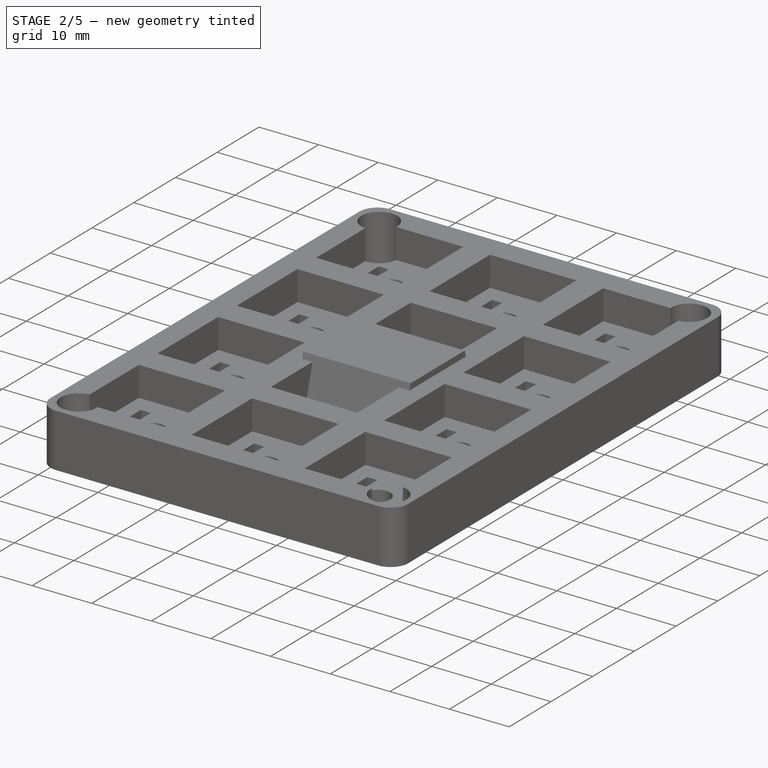
[diagram: stage 2 of 5 — iso view after this stage's code; geometry added in this stage tinted green]
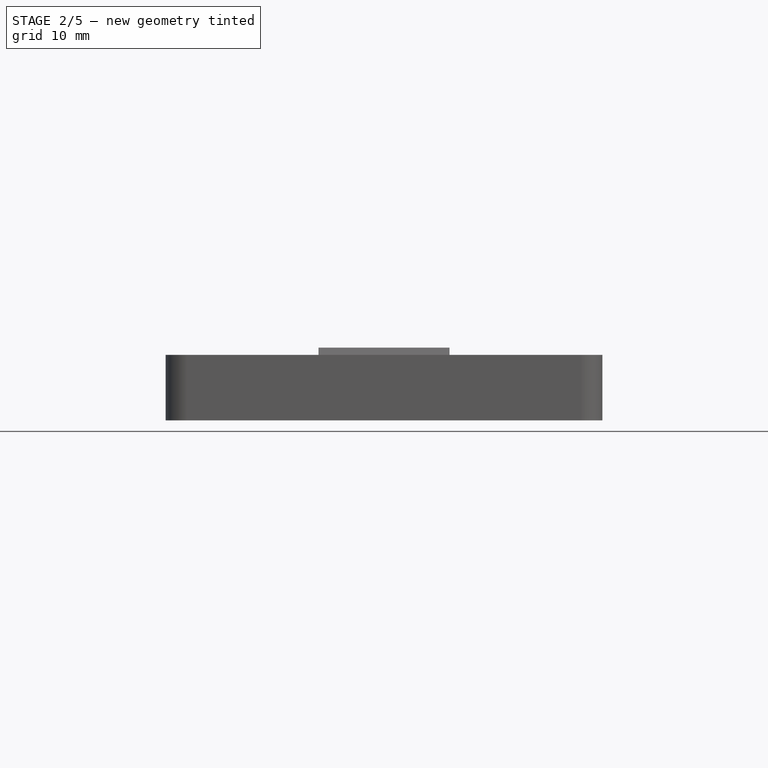
[diagram: stage 2 of 5 — front view after this stage's code; geometry added in this stage tinted green]
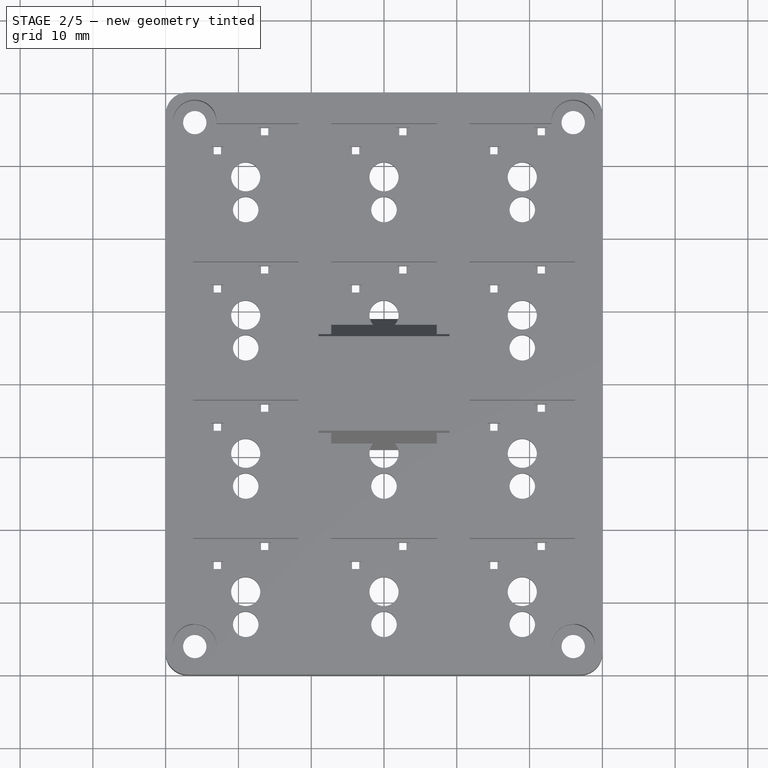
[diagram: stage 2 of 5 — top view after this stage's code; geometry added in this stage tinted green]
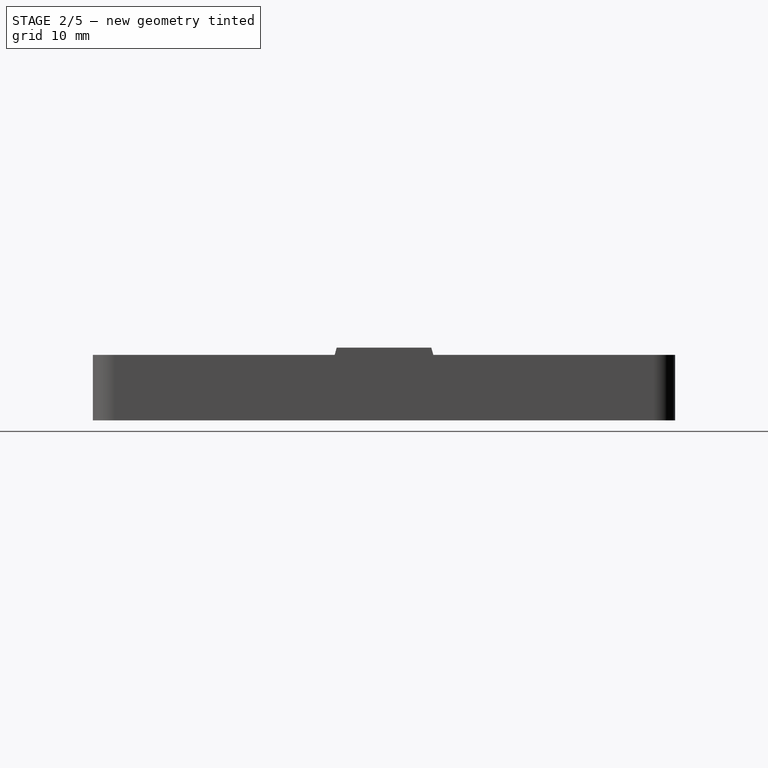
[diagram: stage 2 of 5 — right view after this stage's code; geometry added in this stage tinted green]
FEATURE [PartDesign::Body] Body135  label="Cap_6"
  AllowCompound = false
  Group = -> [Sketch985,Pad278,Sketch986,Pocket1128,Sketch987,Pocket1129,Sketch988,Pocket1130,Pocket1131,Sketch989,Pad279,Sketch990,Pocket1132,Sketch991,Pocket1133,Chamfer323,Chamfer324,Chamfer325,Fillet129,ShapeString285,Pocket1127]
  Origin = -> Origin135
  Placement = pos=(19,9.5,21) rot=(0,0,1;0rad)
  Tip = -> Pocket1127
FEATURE [Part::Part2DObjectPython] ShapeString287  # Draft 2D object (typed FeaturePython)
  FontFile = <userpath>/OneDrive/Área de Trabalho/TT Firs Text Trial Regular.ttf
  Fuse = false
  Justification = 6
  JustificationReference = 0
  KeepLeftMargin = true
  MakeFace = true
  ObliqueAngle = 0
  Placement = pos=(-1.33,-2.68,10) rot=(0,0,1;0rad)
  ScaleToSize = false
  Size = 3
  String = 7
  Tracking = 0
FEATURE [Part::Part2DObjectPython] ShapeString289  # Draft 2D object (typed FeaturePython)
  FontFile = <userpath>/OneDrive/Área de Trabalho/TT Firs Text Trial Regular.ttf
  Fuse = false
  Justification = 6
  JustificationReference = 0
  KeepLeftMargin = true
  MakeFace = true
  ObliqueAngle = 0
  Placement = pos=(-1.83,-2.68,10) rot=(0,0,1;0rad)
  ScaleToSize = false
  Size = 3
  String = 8
  Tracking = 0
FEATURE [Part::Part2DObjectPython] ShapeString291  # Draft 2D object (typed FeaturePython)
  FontFile = <userpath>/OneDrive/Área de Trabalho/TT Firs Text Trial Regular.ttf
  Fuse = false
  Justification = 6
  JustificationReference = 0
  KeepLeftMargin = true
  MakeFace = true
  ObliqueAngle = 0
  Placement = pos=(-1.83,-2.68,10) rot=(0,0,1;0rad)
  ScaleToSize = false
  Size = 3
  String = 9
  Tracking = 0
FEATURE [Sketcher::SketchObject] Sketch992
  ArcFitTolerance = 0
  AttachmentSupport = -> [XY_Plane136]
  FullyConstrained = true
  MakeInternals = false
  MapMode = 5
  sketch-geometry (4):
    g0: LineSegment StartX=-9 StartY=9 StartZ=0 EndX=9 EndY=9 EndZ=0
    g1: LineSegment StartX=9 StartY=9 StartZ=0 EndX=9 EndY=-9 EndZ=0
    g2: LineSegment StartX=9 StartY=-9 StartZ=0 EndX=-9 EndY=-9 EndZ=0
    g3: LineSegment StartX=-9 StartY=-9 StartZ=0 EndX=-9 EndY=9 EndZ=0
  constraints (10):
    c: Coincident(g0,g1)
    c: Coincident(g1,g2)
    c: Coincident(g2,g3)
    c: Coincident(g3,g0)
    c: Horizontal(g2)
    c: Vertical(g1)
    c: Symmetric(g0,g0,g-2)
    c: Symmetric(g0,g2,g-1)
    c: Distance(g0) = 18
    c: Equal(g0,g3)
FEATURE [PartDesign::Pad] Pad280
  Direction = (0,0,1)
  Length = 10
  Length2 = 10
  Profile = -> Sketch992
  ReferenceAxis = -> Sketch992 [N_Axis]
  Suppressed = false
  Type = 0
FEATURE [Sketcher::SketchObject] Sketch993
  ArcFitTolerance = 0
  AttachmentSupport = -> [Pad280]
  ExternalGeometry = -> [Pad280]
  FullyConstrained = true
  MakeInternals = false
  MapMode = 5
  Placement = pos=(9,0,0) rot=(0.57735,0.57735,0.57735;2.0944rad)
  sketch-geometry (6):
    g0: LineSegment StartX=-9 StartY=1 StartZ=0 EndX=-6.5 EndY=10 EndZ=0
    g1: LineSegment StartX=-6.5 StartY=10 StartZ=0 EndX=-9 EndY=10 EndZ=0
    g2: LineSegment StartX=-9 StartY=10 StartZ=0 EndX=-9 EndY=1 EndZ=0
    g3: LineSegment StartX=9 StartY=1 StartZ=0 EndX=6.5 EndY=10 EndZ=0
    g4: LineSegment StartX=6.5 StartY=10 StartZ=0 EndX=9 EndY=10 EndZ=0
    g5: LineSegment StartX=9 StartY=10 StartZ=0 EndX=9 EndY=1 EndZ=0
  constraints (16):
    c: PointOnObject(g0,g-5)
    c: PointOnObject(g0,g-3)
    c: Coincident(g0,g1)
    c: Coincident(g1,g-5)
    c: Coincident(g1,g2)
    c: Coincident(g2,g0)
    c: PointOnObject(g3,g-4)
    c: PointOnObject(g3,g-3)
    c: Coincident(g3,g4)
    c: Coincident(g4,g-4)
    c: Coincident(g4,g5)
    c: Coincident(g5,g3)
    c: Distance(g0,g-5) = 1
    c: Horizontal(g0,g3)
    c: Distance(g1) = 2.5
    c: Distance(g4) = 2.5
FEATURE [PartDesign::Pocket] Pocket1136
  BaseFeature = -> Pad280
  Direction = (-1,0,0)
  Length = 20
  Length2 = 5
  Profile = -> Sketch993
  ReferenceAxis = -> Sketch993 [N_Axis]
  Suppressed = false
  Type = 0
FEATURE [PartDesign::Body] Body136  label="Cap_7"
  AllowCompound = false
  Group = -> [Sketch992,Pad280,Sketch993,Pocket1136,Sketch994,Pocket1137,Sketch995,Pocket1138,Pocket1139,Sketch996,Pad281,Sketch997,Pocket1140,Sketch998,Pocket1141,Chamfer326,Chamfer327,Chamfer328,Fillet130,ShapeString287,Pocket1135]
  Origin = -> Origin136
  Placement = pos=(-19,-9.5,21) rot=(0,0,1;0rad)
  Tip = -> Pocket1135
FEATURE [Sketcher::SketchObject] Sketch999
  ArcFitTolerance = 0
  AttachmentSupport = -> [XY_Plane137]
  FullyConstrained = true
  MakeInternals = false
  MapMode = 5
  sketch-geometry (4):
    g0: LineSegment StartX=-9 StartY=9 StartZ=0 EndX=9 EndY=9 EndZ=0
    g1: LineSegment StartX=9 StartY=9 StartZ=0 EndX=9 EndY=-9 EndZ=0
    g2: LineSegment StartX=9 StartY=-9 StartZ=0 EndX=-9 EndY=-9 EndZ=0
    g3: LineSegment StartX=-9 StartY=-9 StartZ=0 EndX=-9 EndY=9 EndZ=0
  constraints (10):
    c: Coincident(g0,g1)
    c: Coincident(g1,g2)
    c: Coincident(g2,g3)
    c: Coincident(g3,g0)
    c: Horizontal(g2)
    c: Vertical(g1)
    c: Symmetric(g0,g0,g-2)
    c: Symmetric(g0,g2,g-1)
    c: Distance(g0) = 18
    c: Equal(g0,g3)
FEATURE [PartDesign::Pad] Pad282
  Direction = (0,0,1)
  Length = 10
  Length2 = 10
  Profile = -> Sketch999
  ReferenceAxis = -> Sketch999 [N_Axis]
  Suppressed = false
  Type = 0
FEATURE [Sketcher::SketchObject] Sketch1000
  ArcFitTolerance = 0
  AttachmentSupport = -> [Pad282]
  ExternalGeometry = -> [Pad282]
  FullyConstrained = true
  MakeInternals = false
  MapMode = 5
  Placement = pos=(9,0,0) rot=(0.57735,0.57735,0.57735;2.0944rad)
  sketch-geometry (6):
    g0: LineSegment StartX=-9 StartY=1 StartZ=0 EndX=-6.5 EndY=10 EndZ=0
    g1: LineSegment StartX=-6.5 StartY=10 StartZ=0 EndX=-9 EndY=10 EndZ=0
    g2: LineSegment StartX=-9 StartY=10 StartZ=0 EndX=-9 EndY=1 EndZ=0
    g3: LineSegment StartX=9 StartY=1 StartZ=0 EndX=6.5 EndY=10 EndZ=0
    g4: LineSegment StartX=6.5 StartY=10 StartZ=0 EndX=9 EndY=10 EndZ=0
    g5: LineSegment StartX=9 StartY=10 StartZ=0 EndX=9 EndY=1 EndZ=0
  constraints (16):
    c: PointOnObject(g0,g-5)
    c: PointOnObject(g0,g-3)
    c: Coincident(g0,g1)
    c: Coincident(g1,g-5)
    c: Coincident(g1,g2)
    c: Coincident(g2,g0)
    c: PointOnObject(g3,g-4)
    c: PointOnObject(g3,g-3)
    c: Coincident(g3,g4)
    c: Coincident(g4,g-4)
    c: Coincident(g4,g5)
    c: Coincident(g5,g3)
    c: Distance(g0,g-5) = 1
    c: Horizontal(g0,g3)
    c: Distance(g1) = 2.5
    c: Distance(g4) = 2.5
FEATURE [PartDesign::Pocket] Pocket1144
  BaseFeature = -> Pad282
  Direction = (-1,0,0)
  Length = 20
  Length2 = 5
  Profile = -> Sketch1000
  ReferenceAxis = -> Sketch1000 [N_Axis]
  Suppressed = false
  Type = 0
FEATURE [Sketcher::SketchObject] Sketch1001
  ArcFitTolerance = 0
  AttachmentSupport = -> [Pocket1144]
  ExternalGeometry = -> [Pocket1144]
  FullyConstrained = true
  MakeInternals = false
  MapMode = 5
  Placement = pos=(0,-9,0) rot=(1,0,0;1.5708rad)
  sketch-geometry (6):
    g0: LineSegment StartX=-9 StartY=1 StartZ=0 EndX=-6.5 EndY=10 EndZ=0
    g1: LineSegment StartX=-6.5 StartY=10 StartZ=0 EndX=-9 EndY=10 EndZ=0
    g2: LineSegment StartX=-9 StartY=10 StartZ=0 EndX=-9 EndY=1 EndZ=0
    g3: LineSegment StartX=9 StartY=1 StartZ=0 EndX=9 EndY=10 EndZ=0
    g4: LineSegment StartX=9 StartY=10 StartZ=0 EndX=6.5 EndY=10 EndZ=0
    g5: LineSegment StartX=6.5 StartY=10 StartZ=0 EndX=9 EndY=1 EndZ=0
  constraints (13):
    c: Coincident(g-4,g0)
    c: PointOnObject(g0,g-3)
    c: Coincident(g0,g1)
    c: Coincident(g1,g-4)
    c: Coincident(g1,g2)
    c: Coincident(g2,g0)
    c: Coincident(g-5,g3)
    c: Coincident(g3,g-5)
    c: Coincident(g3,g4)
    c: Coincident(g4,g5)
    c: Coincident(g5,g3)
    c: Distance(g0,g4) = 13
    c: Symmetric(g0,g4,g-2)
FEATURE [PartDesign::Pocket] Pocket1145
  BaseFeature = -> Pocket1144
  Direction = (0,1,-2e-16)
  Length = 20
  Length2 = 5
  Profile = -> Sketch1001
  ReferenceAxis = -> Sketch1001 [N_Axis]
  Suppressed = false
  Type = 0
FEATURE [Sketcher::SketchObject] Sketch1002
  ArcFitTolerance = 0
  AttachmentSupport = -> [Pocket1145]
  FullyConstrained = true
  MakeInternals = false
  MapMode = 5
  Placement = pos=(0,0,0) rot=(1,0,0;3.14159rad)
  sketch-geometry (4):
    g0: LineSegment StartX=-7.5 StartY=7.5 StartZ=0 EndX=7.5 EndY=7.5 EndZ=0
    g1: LineSegment StartX=7.5 StartY=7.5 StartZ=0 EndX=7.5 EndY=-7.5 EndZ=0
    g2: LineSegment StartX=7.5 StartY=-7.5 StartZ=0 EndX=-7.5 EndY=-7.5 EndZ=0
    g3: LineSegment StartX=-7.5 StartY=-7.5 StartZ=0 EndX=-7.5 EndY=7.5 EndZ=0
  constraints (10):
    c: Coincident(g0,g1)
    c: Coincident(g1,g2)
    c: Coincident(g2,g3)
    c: Coincident(g3,g0)
    c: Horizontal(g2)
    c: Vertical(g1)
    c: Symmetric(g0,g0,g-2)
    c: Symmetric(g0,g2,g-1)
    c: Distance(g0) = 15
    c: Equal(g0,g3)
FEATURE [PartDesign::Pocket] Pocket1146
  BaseFeature = -> Pocket1145
  Direction = (0,0,1)
  Length = 1
  Length2 = 5
  Profile = -> Sketch1002
  ReferenceAxis = -> Sketch1002 [N_Axis]
  Suppressed = false
  Type = 0
FEATURE [PartDesign::Pocket] Pocket1147
  BaseFeature = -> Pocket1146
  Direction = (0,0,1)
  Length = 7
  Length2 = 5
  Profile = -> Pocket1146 [Face15]
  Suppressed = false
  TaperAngle = -10
  Type = 0
FEATURE [Sketcher::SketchObject] Sketch1003
  ArcFitTolerance = 0
  AttachmentSupport = -> [Pocket1147]
  FullyConstrained = true
  MakeInternals = false
  MapMode = 5
  Placement = pos=(0,0,8) rot=(1,0,0;3.14159rad)
  sketch-geometry (4):
    g0: LineSegment StartX=-3.2 StartY=2.2 StartZ=0 EndX=3.2 EndY=2.2 EndZ=0
    g1: LineSegment StartX=3.2 StartY=2.2 StartZ=0 EndX=3.2 EndY=-2.2 EndZ=0
    g2: LineSegment StartX=3.2 StartY=-2.2 StartZ=0 EndX=-3.2 EndY=-2.2 EndZ=0
    g3: LineSegment StartX=-3.2 StartY=-2.2 StartZ=0 EndX=-3.2 EndY=2.2 EndZ=0
  constraints (10):
    c: Coincident(g0,g1)
    c: Coincident(g1,g2)
    c: Coincident(g2,g3)
    c: Coincident(g3,g0)
    c: Horizontal(g2)
    c: Vertical(g1)
    c: Symmetric(g0,g0,g-2)
    c: Symmetric(g0,g2,g-1)
    c: Distance(g3) = 4.4
    c: Distance(g2) = 6.4
FEATURE [PartDesign::Pad] Pad283
  BaseFeature = -> Pocket1147
  Direction = (0,0,-1)
  Length = 8
  Length2 = 10
  Profile = -> Sketch1003
  ReferenceAxis = -> Sketch1003 [N_Axis]
  Suppressed = false
  Type = 0
FEATURE [Sketcher::SketchObject] Sketch1004
  ArcFitTolerance = 0
  AttachmentSupport = -> [Pad283]
  FullyConstrained = true
  MakeInternals = false
  MapMode = 5
  Placement = pos=(0,0,0) rot=(1,0,0;3.14159rad)
  sketch-geometry (4):
    g0: LineSegment StartX=-2.25 StartY=0.7 StartZ=0 EndX=2.25 EndY=0.7 EndZ=0
    g1: LineSegment StartX=2.25 StartY=0.7 StartZ=0 EndX=2.25 EndY=-0.7 EndZ=0
    g2: LineSegment StartX=2.25 StartY=-0.7 StartZ=0 EndX=-2.25 EndY=-0.7 EndZ=0
    g3: LineSegment StartX=-2.25 StartY=-0.7 StartZ=0 EndX=-2.25 EndY=0.7 EndZ=0
  constraints (10):
    c: Coincident(g0,g1)
    c: Coincident(g1,g2)
    c: Coincident(g2,g3)
    c: Coincident(g3,g0)
    c: Horizontal(g2)
    c: Vertical(g1)
    c: Symmetric(g0,g2,g-1)
    c: Symmetric(g0,g0,g-2)
    c: Distance(g3) = 1.4
    c: Distance(g0) = 4.5
FEATURE [PartDesign::Pocket] Pocket1148
  BaseFeature = -> Pad283
  Direction = (0,0,1)
  Length = 4
  Length2 = 5
  Profile = -> Sketch1004
  ReferenceAxis = -> Sketch1004 [N_Axis]
  Suppressed = false
  Type = 0
FEATURE [Sketcher::SketchObject] Sketch1005
  ArcFitTolerance = 0
  AttachmentSupport = -> [Pocket1148]
  FullyConstrained = true
  MakeInternals = false
  MapMode = 5
  Placement = pos=(0,0,0) rot=(1,0,0;3.14159rad)
  sketch-geometry (4):
    g0: LineSegment StartX=-0.7 StartY=3 StartZ=0 EndX=0.7 EndY=3 EndZ=0
    g1: LineSegment StartX=0.7 StartY=3 StartZ=0 EndX=0.7 EndY=-3 EndZ=0
    g2: LineSegment StartX=0.7 StartY=-3 StartZ=0 EndX=-0.7 EndY=-3 EndZ=0
    g3: LineSegment StartX=-0.7 StartY=-3 StartZ=0 EndX=-0.7 EndY=3 EndZ=0
  constraints (10):
    c: Coincident(g0,g1)
    c: Coincident(g1,g2)
    c: Coincident(g2,g3)
    c: Coincident(g3,g0)
    c: Horizontal(g0)
    c: Vertical(g1)
    c: Symmetric(g2,g1,g-2)
    c: Symmetric(g0,g2,g-1)
    c: Distance(g1) = 6
    c: Distance(g0) = 1.4
FEATURE [PartDesign::Pocket] Pocket1149
  BaseFeature = -> Pocket1148
  Direction = (0,0,1)
  Length = 4
  Length2 = 5
  Profile = -> Sketch1005
  ReferenceAxis = -> Sketch1005 [N_Axis]
  Suppressed = false
  Type = 0
FEATURE [PartDesign::Body] Body137  label="Cap_8"
  AllowCompound = false
  Group = -> [Sketch999,Pad282,Sketch1000,Pocket1144,Sketch1001,Pocket1145,Sketch1002,Pocket1146,Pocket1147,Sketch1003,Pad283,Sketch1004,Pocket1148,Sketch1005,Pocket1149,Chamfer329,Chamfer330,Chamfer331,Fillet131,ShapeString289,Pocket1143]
  Origin = -> Origin137
  Placement = pos=(0,-9.5,21) rot=(0,0,1;0rad)
  Tip = -> Pocket1143
FEATURE [Sketcher::SketchObject] Sketch1006
  ArcFitTolerance = 0
  AttachmentSupport = -> [XY_Plane138]
  FullyConstrained = true
  MakeInternals = false
  MapMode = 5
  sketch-geometry (4):
    g0: LineSegment StartX=-9 StartY=9 StartZ=0 EndX=9 EndY=9 EndZ=0
    g1: LineSegment StartX=9 StartY=9 StartZ=0 EndX=9 EndY=-9 EndZ=0
    g2: LineSegment StartX=9 StartY=-9 StartZ=0 EndX=-9 EndY=-9 EndZ=0
    g3: LineSegment StartX=-9 StartY=-9 StartZ=0 EndX=-9 EndY=9 EndZ=0
  constraints (10):
    c: Coincident(g0,g1)
    c: Coincident(g1,g2)
    c: Coincident(g2,g3)
    c: Coincident(g3,g0)
    c: Horizontal(g2)
    c: Vertical(g1)
    c: Symmetric(g0,g0,g-2)
    c: Symmetric(g0,g2,g-1)
    c: Distance(g0) = 18
    c: Equal(g0,g3)
FEATURE [PartDesign::Pad] Pad284
  Direction = (0,0,1)
  Length = 10
  Length2 = 10
  Profile = -> Sketch1006
  ReferenceAxis = -> Sketch1006 [N_Axis]
  Suppressed = false
  Type = 0
FEATURE [Sketcher::SketchObject] Sketch1007
  ArcFitTolerance = 0
  AttachmentSupport = -> [Pad284]
  ExternalGeometry = -> [Pad284]
  FullyConstrained = true
  MakeInternals = false
  MapMode = 5
  Placement = pos=(9,0,0) rot=(0.57735,0.57735,0.57735;2.0944rad)
  sketch-geometry (6):
    g0: LineSegment StartX=-9 StartY=1 StartZ=0 EndX=-6.5 EndY=10 EndZ=0
    g1: LineSegment StartX=-6.5 StartY=10 StartZ=0 EndX=-9 EndY=10 EndZ=0
    g2: LineSegment StartX=-9 StartY=10 StartZ=0 EndX=-9 EndY=1 EndZ=0
    g3: LineSegment StartX=9 StartY=1 StartZ=0 EndX=6.5 EndY=10 EndZ=0
    g4: LineSegment StartX=6.5 StartY=10 StartZ=0 EndX=9 EndY=10 EndZ=0
    g5: LineSegment StartX=9 StartY=10 StartZ=0 EndX=9 EndY=1 EndZ=0
  constraints (16):
    c: PointOnObject(g0,g-5)
    c: PointOnObject(g0,g-3)
    c: Coincident(g0,g1)
    c: Coincident(g1,g-5)
    c: Coincident(g1,g2)
    c: Coincident(g2,g0)
    c: PointOnObject(g3,g-4)
    c: PointOnObject(g3,g-3)
    c: Coincident(g3,g4)
    c: Coincident(g4,g-4)
    c: Coincident(g4,g5)
    c: Coincident(g5,g3)
    c: Distance(g0,g-5) = 1
    c: Horizontal(g0,g3)
    c: Distance(g1) = 2.5
    c: Distance(g4) = 2.5
FEATURE [PartDesign::Pocket] Pocket1152
  BaseFeature = -> Pad284
  Direction = (-1,0,0)
  Length = 20
  Length2 = 5
  Profile = -> Sketch1007
  ReferenceAxis = -> Sketch1007 [N_Axis]
  Suppressed = false
  Type = 0
FEATURE [Sketcher::SketchObject] Sketch1008
  ArcFitTolerance = 0
  AttachmentSupport = -> [Pocket1152]
  ExternalGeometry = -> [Pocket1152]
  FullyConstrained = true
  MakeInternals = false
  MapMode = 5
  Placement = pos=(0,-9,0) rot=(1,0,0;1.5708rad)
  sketch-geometry (6):
    g0: LineSegment StartX=-9 StartY=1 StartZ=0 EndX=-6.5 EndY=10 EndZ=0
    g1: LineSegment StartX=-6.5 StartY=10 StartZ=0 EndX=-9 EndY=10 EndZ=0
    g2: LineSegment StartX=-9 StartY=10 StartZ=0 EndX=-9 EndY=1 EndZ=0
    g3: LineSegment StartX=9 StartY=1 StartZ=0 EndX=9 EndY=10 EndZ=0
    g4: LineSegment StartX=9 StartY=10 StartZ=0 EndX=6.5 EndY=10 EndZ=0
    g5: LineSegment StartX=6.5 StartY=10 StartZ=0 EndX=9 EndY=1 EndZ=0
  constraints (13):
    c: Coincident(g-4,g0)
    c: PointOnObject(g0,g-3)
    c: Coincident(g0,g1)
    c: Coincident(g1,g-4)
    c: Coincident(g1,g2)
    c: Coincident(g2,g0)
    c: Coincident(g-5,g3)
    c: Coincident(g3,g-5)
    c: Coincident(g3,g4)
    c: Coincident(g4,g5)
    c: Coincident(g5,g3)
    c: Distance(g0,g4) = 13
    c: Symmetric(g0,g4,g-2)
FEATURE [PartDesign::Pocket] Pocket1153
  BaseFeature = -> Pocket1152
  Direction = (0,1,-2e-16)
  Length = 20
  Length2 = 5
  Profile = -> Sketch1008
  ReferenceAxis = -> Sketch1008 [N_Axis]
  Suppressed = false
  Type = 0
FEATURE [Sketcher::SketchObject] Sketch1009
  ArcFitTolerance = 0
  AttachmentSupport = -> [Pocket1153]
  FullyConstrained = true
  MakeInternals = false
  MapMode = 5
  Placement = pos=(0,0,0) rot=(1,0,0;3.14159rad)
  sketch-geometry (4):
    g0: LineSegment StartX=-7.5 StartY=7.5 StartZ=0 EndX=7.5 EndY=7.5 EndZ=0
    g1: LineSegment StartX=7.5 StartY=7.5 StartZ=0 EndX=7.5 EndY=-7.5 EndZ=0
    g2: LineSegment StartX=7.5 StartY=-7.5 StartZ=0 EndX=-7.5 EndY=-7.5 EndZ=0
    g3: LineSegment StartX=-7.5 StartY=-7.5 StartZ=0 EndX=-7.5 EndY=7.5 EndZ=0
  constraints (10):
    c: Coincident(g0,g1)
    c: Coincident(g1,g2)
    c: Coincident(g2,g3)
    c: Coincident(g3,g0)
    c: Horizontal(g2)
    c: Vertical(g1)
    c: Symmetric(g0,g0,g-2)
    c: Symmetric(g0,g2,g-1)
    c: Distance(g0) = 15
    c: Equal(g0,g3)
FEATURE [PartDesign::Pocket] Pocket1154
  BaseFeature = -> Pocket1153
  Direction = (0,0,1)
  Length = 1
  Length2 = 5
  Profile = -> Sketch1009
  ReferenceAxis = -> Sketch1009 [N_Axis]
  Suppressed = false
  Type = 0
FEATURE [PartDesign::Pocket] Pocket1155
  BaseFeature = -> Pocket1154
  Direction = (0,0,1)
  Length = 7
  Length2 = 5
  Profile = -> Pocket1154 [Face15]
  Suppressed = false
  TaperAngle = -10
  Type = 0
FEATURE [Sketcher::SketchObject] Sketch1010
  ArcFitTolerance = 0
  AttachmentSupport = -> [Pocket1155]
  FullyConstrained = true
  MakeInternals = false
  MapMode = 5
  Placement = pos=(0,0,8) rot=(1,0,0;3.14159rad)
  sketch-geometry (4):
    g0: LineSegment StartX=-3.2 StartY=2.2 StartZ=0 EndX=3.2 EndY=2.2 EndZ=0
    g1: LineSegment StartX=3.2 StartY=2.2 StartZ=0 EndX=3.2 EndY=-2.2 EndZ=0
    g2: LineSegment StartX=3.2 StartY=-2.2 StartZ=0 EndX=-3.2 EndY=-2.2 EndZ=0
    g3: LineSegment StartX=-3.2 StartY=-2.2 StartZ=0 EndX=-3.2 EndY=2.2 EndZ=0
  constraints (10):
    c: Coincident(g0,g1)
    c: Coincident(g1,g2)
    c: Coincident(g2,g3)
    c: Coincident(g3,g0)
    c: Horizontal(g2)
    c: Vertical(g1)
    c: Symmetric(g0,g0,g-2)
    c: Symmetric(g0,g2,g-1)
    c: Distance(g3) = 4.4
    c: Distance(g2) = 6.4
FEATURE [PartDesign::Pad] Pad285
  BaseFeature = -> Pocket1155
  Direction = (0,0,-1)
  Length = 8
  Length2 = 10
  Profile = -> Sketch1010
  ReferenceAxis = -> Sketch1010 [N_Axis]
  Suppressed = false
  Type = 0
FEATURE [Sketcher::SketchObject] Sketch1011
  ArcFitTolerance = 0
  AttachmentSupport = -> [Pad285]
  FullyConstrained = true
  MakeInternals = false
  MapMode = 5
  Placement = pos=(0,0,0) rot=(1,0,0;3.14159rad)
  sketch-geometry (4):
    g0: LineSegment StartX=-2.25 StartY=0.7 StartZ=0 EndX=2.25 EndY=0.7 EndZ=0
    g1: LineSegment StartX=2.25 StartY=0.7 StartZ=0 EndX=2.25 EndY=-0.7 EndZ=0
    g2: LineSegment StartX=2.25 StartY=-0.7 StartZ=0 EndX=-2.25 EndY=-0.7 EndZ=0
    g3: LineSegment StartX=-2.25 StartY=-0.7 StartZ=0 EndX=-2.25 EndY=0.7 EndZ=0
  constraints (10):
    c: Coincident(g0,g1)
    c: Coincident(g1,g2)
    c: Coincident(g2,g3)
    c: Coincident(g3,g0)
    c: Horizontal(g2)
    c: Vertical(g1)
    c: Symmetric(g0,g2,g-1)
    c: Symmetric(g0,g0,g-2)
    c: Distance(g3) = 1.4
    c: Distance(g0) = 4.5
FEATURE [PartDesign::Pocket] Pocket1156
  BaseFeature = -> Pad285
  Direction = (0,0,1)
  Length = 4
  Length2 = 5
  Profile = -> Sketch1011
  ReferenceAxis = -> Sketch1011 [N_Axis]
  Suppressed = false
  Type = 0
FEATURE [Sketcher::SketchObject] Sketch1012
  ArcFitTolerance = 0
  AttachmentSupport = -> [Pocket1156]
  FullyConstrained = true
  MakeInternals = false
  MapMode = 5
  Placement = pos=(0,0,0) rot=(1,0,0;3.14159rad)
  sketch-geometry (4):
    g0: LineSegment StartX=-0.7 StartY=3 StartZ=0 EndX=0.7 EndY=3 EndZ=0
    g1: LineSegment StartX=0.7 StartY=3 StartZ=0 EndX=0.7 EndY=-3 EndZ=0
    g2: LineSegment StartX=0.7 StartY=-3 StartZ=0 EndX=-0.7 EndY=-3 EndZ=0
    g3: LineSegment StartX=-0.7 StartY=-3 StartZ=0 EndX=-0.7 EndY=3 EndZ=0
  constraints (10):
    c: Coincident(g0,g1)
    c: Coincident(g1,g2)
    c: Coincident(g2,g3)
    c: Coincident(g3,g0)
    c: Horizontal(g0)
    c: Vertical(g1)
    c: Symmetric(g2,g1,g-2)
    c: Symmetric(g0,g2,g-1)
    c: Distance(g1) = 6
    c: Distance(g0) = 1.4
FEATURE [PartDesign::Pocket] Pocket1157
  BaseFeature = -> Pocket1156
  Direction = (0,0,1)
  Length = 4
  Length2 = 5
  Profile = -> Sketch1012
  ReferenceAxis = -> Sketch1012 [N_Axis]
  Suppressed = false
  Type = 0
FEATURE [PartDesign::Chamfer] Chamfer332
  Angle = 45
  Base = -> Pocket1157 [Edge44,Edge41,Edge42,Edge43]
  BaseFeature = -> Pocket1157
  ChamferType = 0
  FlipDirection = false
  Size = 2.5
  Size2 = 1
  SupportTransform = false
  Suppressed = false
  UseAllEdges = false
FEATURE [PartDesign::Chamfer] Chamfer333
  Angle = 45
  Base = -> Chamfer332 [Edge54,Edge68,Edge64,Edge63]
  BaseFeature = -> Chamfer332
  ChamferType = 0
  FlipDirection = false
  Size = 0.5
  Size2 = 1
  SupportTransform = false
  Suppressed = false
  UseAllEdges = false
FEATURE [PartDesign::Chamfer] Chamfer334
  Angle = 45
  Base = -> Chamfer333 [Edge6,Edge10,Edge9,Edge51,Edge50,Edge53,Edge56,Edge55,Edge1,Edge2]
  BaseFeature = -> Chamfer333
  ChamferType = 0
  FlipDirection = false
  Size = 0.5
  Size2 = 1
  SupportTransform = false
  Suppressed = false
  UseAllEdges = false
FEATURE [PartDesign::Fillet] Fillet132
  Base = -> Chamfer334 [Edge141,Edge133,Edge139,Edge131,Edge144,Edge136,Edge145,Edge140,Edge143,Edge146,Edge142,Edge135]
  BaseFeature = -> Chamfer334
  Radius = 1
  SupportTransform = false
  Suppressed = false
  UseAllEdges = false
FEATURE [PartDesign::Pocket] Pocket1151
  BaseFeature = -> Fillet132
  Direction = (0,0,-1)
  Length = 1
  Length2 = 5
  Profile = -> ShapeString291
  ReferenceAxis = -> ShapeString291 [N_Axis]
  Suppressed = false
  Type = 0
FEATURE [Sketcher::SketchObject] Sketch1028
  ArcFitTolerance = 0
  AttachmentSupport = -> [Pocket1159]
  ExternalGeometry = -> [Pocket1159]
  FullyConstrained = true
  MakeInternals = false
  MapMode = 5
  Placement = pos=(0,-9,0) rot=(1,0,0;1.5708rad)
  sketch-geometry (6):
    g0: LineSegment StartX=-9 StartY=1 StartZ=0 EndX=-6.5 EndY=10 EndZ=0
    g1: LineSegment StartX=-6.5 StartY=10 StartZ=0 EndX=-9 EndY=10 EndZ=0
    g2: LineSegment StartX=-9 StartY=10 StartZ=0 EndX=-9 EndY=1 EndZ=0
    g3: LineSegment StartX=9 StartY=1 StartZ=0 EndX=9 EndY=10 EndZ=0
    g4: LineSegment StartX=9 StartY=10 StartZ=0 EndX=6.5 EndY=10 EndZ=0
    g5: LineSegment StartX=6.5 StartY=10 StartZ=0 EndX=9 EndY=1 EndZ=0
  constraints (13):
    c: Coincident(g-4,g0)
    c: PointOnObject(g0,g-3)
    c: Coincident(g0,g1)
    c: Coincident(g1,g-4)
    c: Coincident(g1,g2)
    c: Coincident(g2,g0)
    c: Coincident(g-5,g3)
    c: Coincident(g3,g-5)
    c: Coincident(g3,g4)
    c: Coincident(g4,g5)
    c: Coincident(g5,g3)
    c: Distance(g0,g4) = 13
    c: Symmetric(g0,g4,g-2)
FEATURE [PartDesign::Pocket] Pocket1160
  BaseFeature = -> Pocket1159
  Direction = (0,1,-2e-16)
  Length = 20
  Length2 = 5
  Profile = -> Sketch1028
  ReferenceAxis = -> Sketch1028 [N_Axis]
  Suppressed = false
  Type = 0
FEATURE [Sketcher::SketchObject] Sketch1029
  ArcFitTolerance = 0
  AttachmentSupport = -> [Pocket1160]
  FullyConstrained = true
  MakeInternals = false
  MapMode = 5
  Placement = pos=(0,0,0) rot=(1,0,0;3.14159rad)
  sketch-geometry (4):
    g0: LineSegment StartX=-7.5 StartY=7.5 StartZ=0 EndX=7.5 EndY=7.5 EndZ=0
    g1: LineSegment StartX=7.5 StartY=7.5 StartZ=0 EndX=7.5 EndY=-7.5 EndZ=0
    g2: LineSegment StartX=7.5 StartY=-7.5 StartZ=0 EndX=-7.5 EndY=-7.5 EndZ=0
    g3: LineSegment StartX=-7.5 StartY=-7.5 StartZ=0 EndX=-7.5 EndY=7.5 EndZ=0
  constraints (10):
    c: Coincident(g0,g1)
    c: Coincident(g1,g2)
    c: Coincident(g2,g3)
    c: Coincident(g3,g0)
    c: Horizontal(g2)
    c: Vertical(g1)
    c: Symmetric(g0,g0,g-2)
    c: Symmetric(g0,g2,g-1)
    c: Distance(g0) = 15
    c: Equal(g0,g3)
FEATURE [PartDesign::Pocket] Pocket1161
  BaseFeature = -> Pocket1160
  Direction = (0,0,1)
  Length = 1
  Length2 = 5
  Profile = -> Sketch1029
  ReferenceAxis = -> Sketch1029 [N_Axis]
  Suppressed = false
  Type = 0
FEATURE [PartDesign::Pocket] Pocket1162
  BaseFeature = -> Pocket1161
  Direction = (0,0,1)
  Length = 7
  Length2 = 5
  Profile = -> Pocket1161 [Face15]
  Suppressed = false
  TaperAngle = -10
  Type = 0
FEATURE [Sketcher::SketchObject] Sketch1030
  ArcFitTolerance = 0
  AttachmentSupport = -> [Pocket1162]
  FullyConstrained = true
  MakeInternals = false
  MapMode = 5
  Placement = pos=(0,0,8) rot=(1,0,0;3.14159rad)
  sketch-geometry (4):
    g0: LineSegment StartX=-3.2 StartY=2.2 StartZ=0 EndX=3.2 EndY=2.2 EndZ=0
    g1: LineSegment StartX=3.2 StartY=2.2 StartZ=0 EndX=3.2 EndY=-2.2 EndZ=0
    g2: LineSegment StartX=3.2 StartY=-2.2 StartZ=0 EndX=-3.2 EndY=-2.2 EndZ=0
    g3: LineSegment StartX=-3.2 StartY=-2.2 StartZ=0 EndX=-3.2 EndY=2.2 EndZ=0
  constraints (10):
    c: Coincident(g0,g1)
    c: Coincident(g1,g2)
    c: Coincident(g2,g3)
    c: Coincident(g3,g0)
    c: Horizontal(g2)
    c: Vertical(g1)
    c: Symmetric(g0,g0,g-2)
    c: Symmetric(g0,g2,g-1)
    c: Distance(g3) = 4.4
    c: Distance(g2) = 6.4
FEATURE [PartDesign::Pad] Pad287
  BaseFeature = -> Pocket1162
  Direction = (0,0,-1)
  Length = 8
  Length2 = 10
  Profile = -> Sketch1030
  ReferenceAxis = -> Sketch1030 [N_Axis]
  Suppressed = false
  Type = 0
FEATURE [Sketcher::SketchObject] Sketch1031
  ArcFitTolerance = 0
  AttachmentSupport = -> [Pad287]
  FullyConstrained = true
  MakeInternals = false
  MapMode = 5
  Placement = pos=(0,0,0) rot=(1,0,0;3.14159rad)
  sketch-geometry (4):
    g0: LineSegment StartX=-2.25 StartY=0.7 StartZ=0 EndX=2.25 EndY=0.7 EndZ=0
    g1: LineSegment StartX=2.25 StartY=0.7 StartZ=0 EndX=2.25 EndY=-0.7 EndZ=0
    g2: LineSegment StartX=2.25 StartY=-0.7 StartZ=0 EndX=-2.25 EndY=-0.7 EndZ=0
    g3: LineSegment StartX=-2.25 StartY=-0.7 StartZ=0 EndX=-2.25 EndY=0.7 EndZ=0
  constraints (10):
    c: Coincident(g0,g1)
    c: Coincident(g1,g2)
    c: Coincident(g2,g3)
    c: Coincident(g3,g0)
    c: Horizontal(g2)
    c: Vertical(g1)
    c: Symmetric(g0,g2,g-1)
    c: Symmetric(g0,g0,g-2)
    c: Distance(g3) = 1.4
    c: Distance(g0) = 4.5
FEATURE [PartDesign::Pocket] Pocket1163
  BaseFeature = -> Pad287
  Direction = (0,0,1)
  Length = 4
  Length2 = 5
  Profile = -> Sketch1031
  ReferenceAxis = -> Sketch1031 [N_Axis]
  Suppressed = false
  Type = 0
FEATURE [Sketcher::SketchObject] Sketch1032
  ArcFitTolerance = 0
  AttachmentSupport = -> [Pocket1163]
  FullyConstrained = true
  MakeInternals = false
  MapMode = 5
  Placement = pos=(0,0,0) rot=(1,0,0;3.14159rad)
  sketch-geometry (4):
    g0: LineSegment StartX=-0.7 StartY=3 StartZ=0 EndX=0.7 EndY=3 EndZ=0
    g1: LineSegment StartX=0.7 StartY=3 StartZ=0 EndX=0.7 EndY=-3 EndZ=0
    g2: LineSegment StartX=0.7 StartY=-3 StartZ=0 EndX=-0.7 EndY=-3 EndZ=0
    g3: LineSegment StartX=-0.7 StartY=-3 StartZ=0 EndX=-0.7 EndY=3 EndZ=0
  constraints (10):
    c: Coincident(g0,g1)
    c: Coincident(g1,g2)
    c: Coincident(g2,g3)
    c: Coincident(g3,g0)
    c: Horizontal(g0)
    c: Vertical(g1)
    c: Symmetric(g2,g1,g-2)
    c: Symmetric(g0,g2,g-1)
    c: Distance(g1) = 6
    c: Distance(g0) = 1.4
FEATURE [PartDesign::Pocket] Pocket1164
  BaseFeature = -> Pocket1163
  Direction = (0,0,1)
  Length = 4
  Length2 = 5
  Profile = -> Sketch1032
  ReferenceAxis = -> Sketch1032 [N_Axis]
  Suppressed = false
  Type = 0
FEATURE [PartDesign::Chamfer] Chamfer335
  Angle = 45
  Base = -> Pocket1164 [Edge44,Edge41,Edge42,Edge43]
  BaseFeature = -> Pocket1164
  ChamferType = 0
  FlipDirection = false
  Size = 2.5
  Size2 = 1
  SupportTransform = false
  Suppressed = false
  UseAllEdges = false
FEATURE [PartDesign::Chamfer] Chamfer336
  Angle = 45
  Base = -> Chamfer335 [Edge54,Edge68,Edge64,Edge63]
  BaseFeature = -> Chamfer335
  ChamferType = 0
  FlipDirection = false
  Size = 0.5
  Size2 = 1
  SupportTransform = false
  Suppressed = false
  UseAllEdges = false
FEATURE [PartDesign::Chamfer] Chamfer337
  Angle = 45
  Base = -> Chamfer336 [Edge6,Edge10,Edge9,Edge51,Edge50,Edge53,Edge56,Edge55,Edge1,Edge2]
  BaseFeature = -> Chamfer336
  ChamferType = 0
  FlipDirection = false
  Size = 0.5
  Size2 = 1
  SupportTransform = false
  Suppressed = false
  UseAllEdges = false
FEATURE [PartDesign::Fillet] Fillet133
  Base = -> Chamfer337 [Edge141,Edge133,Edge139,Edge131,Edge144,Edge136,Edge145,Edge140,Edge143,Edge146,Edge142,Edge135]
  BaseFeature = -> Chamfer337
  Radius = 1
  SupportTransform = false
  Suppressed = false
  UseAllEdges = false
FEATURE [PartDesign::Pocket] Pocket1158
  BaseFeature = -> Fillet133
  Direction = (0,0,-1)
  Length = 1
  Length2 = 5
  Profile = -> ShapeString292
  ReferenceAxis = -> ShapeString292 [N_Axis]
  Suppressed = false
  Type = 0
FEATURE [PartDesign::Chamfer] Chamfer340
  Angle = 45
  Base = -> Chamfer339 [Edge6,Edge10,Edge9,Edge51,Edge50,Edge53,Edge56,Edge55,Edge1,Edge2]
  BaseFeature = -> Chamfer339
  ChamferType = 0
  FlipDirection = false
  Size = 0.5
  Size2 = 1
  SupportTransform = false
  Suppressed = false
  UseAllEdges = false
FEATURE [PartDesign::Fillet] Fillet134
  Base = -> Chamfer340 [Edge141,Edge133,Edge139,Edge131,Edge144,Edge136,Edge145,Edge140,Edge143,Edge146,Edge142,Edge135]
  BaseFeature = -> Chamfer340
  Radius = 1
  SupportTransform = false
  Suppressed = false
  UseAllEdges = false
FEATURE [PartDesign::Pocket] Pocket1165
  BaseFeature = -> Fillet134
  Direction = (0,0,-1)
  Length = 1
  Length2 = 5
  Profile = -> ShapeString293
  ReferenceAxis = -> ShapeString293 [N_Axis]
  Suppressed = false
  Type = 0
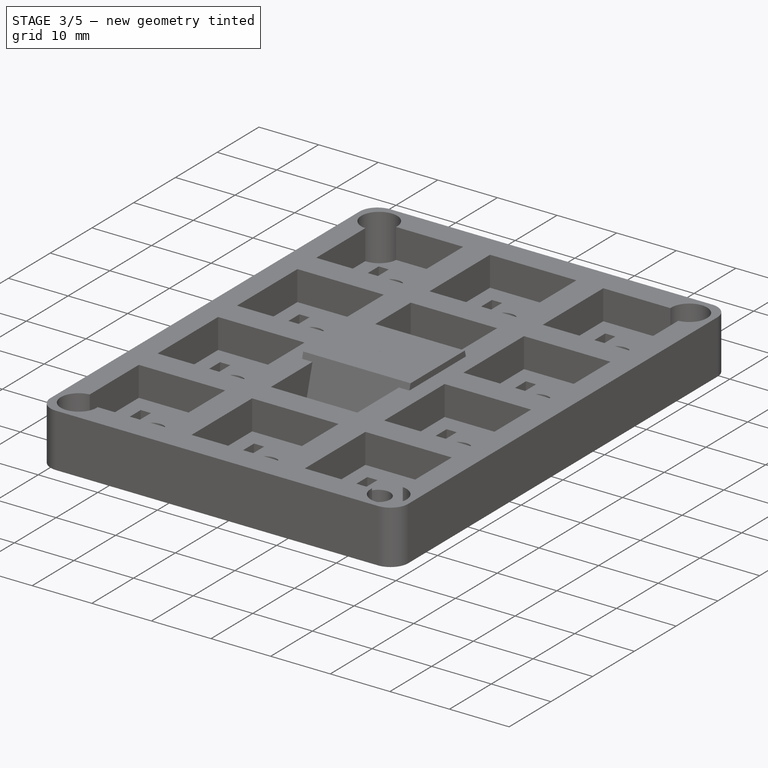
[diagram: stage 3 of 5 — iso view after this stage's code; geometry added in this stage tinted green]
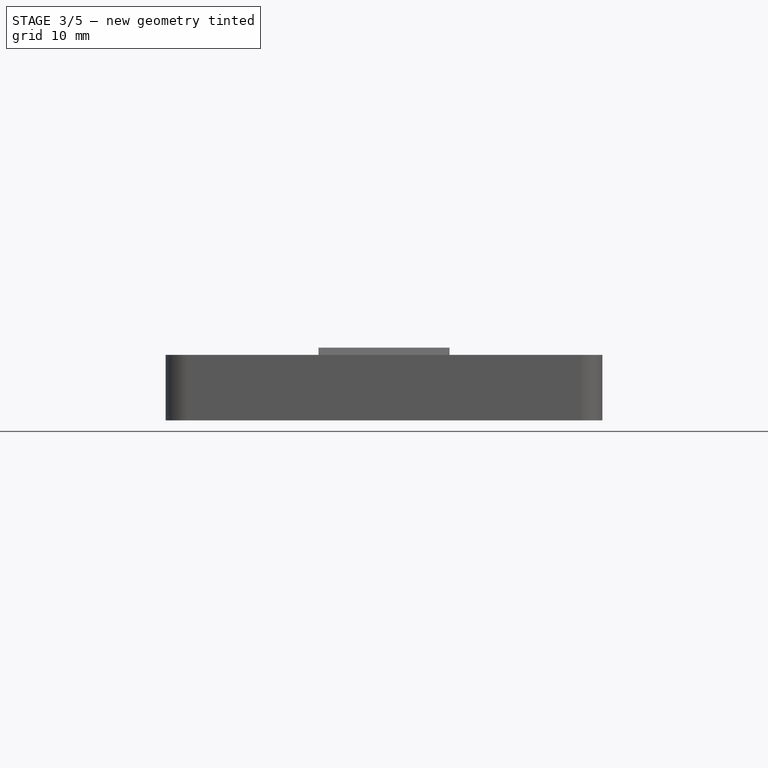
[diagram: stage 3 of 5 — front view after this stage's code; geometry added in this stage tinted green]
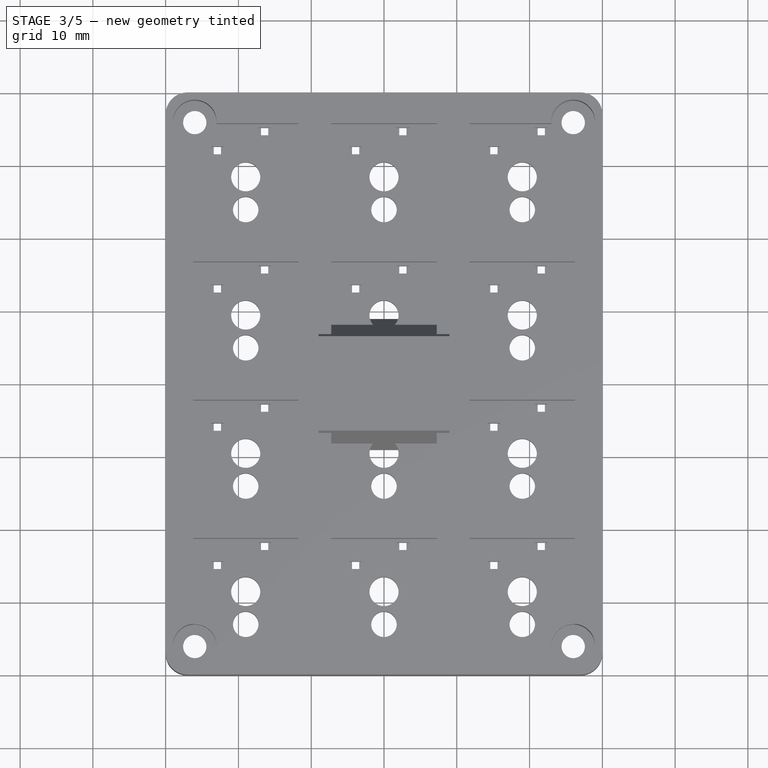
[diagram: stage 3 of 5 — top view after this stage's code; geometry added in this stage tinted green]
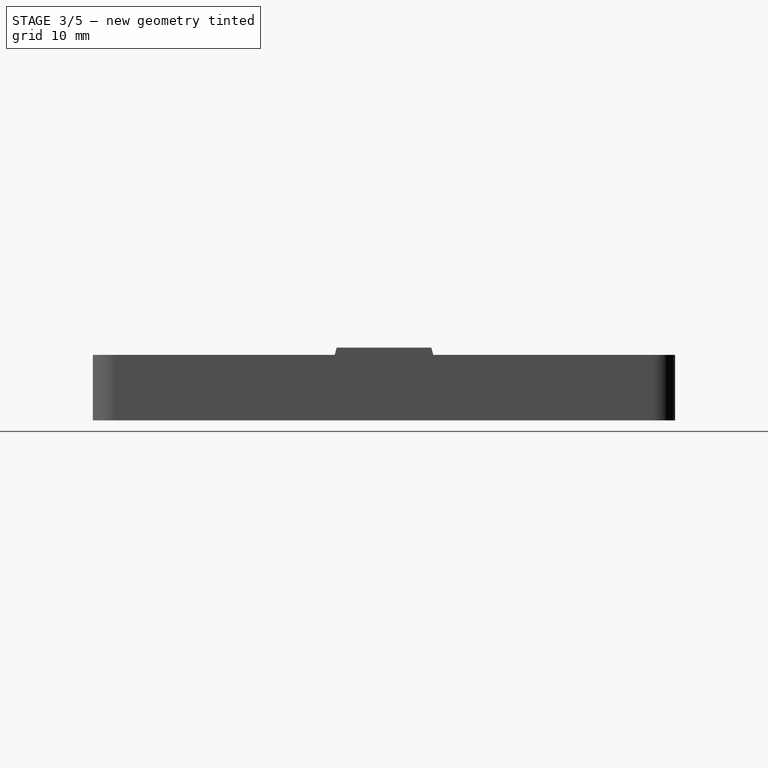
[diagram: stage 3 of 5 — right view after this stage's code; geometry added in this stage tinted green]
FEATURE [PartDesign::Body] Body132  label="Cap_3"
  AllowCompound = false
  Group = -> [Sketch964,Pad272,Sketch965,Pocket1104,Sketch966,Pocket1105,Sketch967,Pocket1106,Pocket1107,Sketch968,Pad273,Sketch969,Pocket1108,Sketch970,Pocket1109,Chamfer314,Chamfer315,Chamfer316,Fillet126,ShapeString279,Pocket1103]
  Origin = -> Origin132
  Placement = pos=(19,28.5,21) rot=(0,0,1;0rad)
  Tip = -> Pocket1103
FEATURE [Part::Part2DObjectPython] ShapeString281  # Draft 2D object (typed FeaturePython)
  FontFile = <userpath>/OneDrive/Área de Trabalho/TT Firs Text Trial Regular.ttf
  Fuse = false
  Justification = 6
  JustificationReference = 0
  KeepLeftMargin = true
  MakeFace = true
  ObliqueAngle = 0
  Placement = pos=(-2.33,-2.68,10) rot=(0,0,1;0rad)
  ScaleToSize = false
  Size = 3
  String = 4
  Tracking = 0
FEATURE [Part::Part2DObjectPython] ShapeString283  # Draft 2D object (typed FeaturePython)
  FontFile = <userpath>/OneDrive/Área de Trabalho/TT Firs Text Trial Regular.ttf
  Fuse = false
  Justification = 6
  JustificationReference = 0
  KeepLeftMargin = true
  MakeFace = true
  ObliqueAngle = 0
  Placement = pos=(-2.33,-2.68,10) rot=(0,0,1;0rad)
  ScaleToSize = false
  Size = 3
  String = 5
  Tracking = 0
FEATURE [Part::Part2DObjectPython] ShapeString285  # Draft 2D object (typed FeaturePython)
  FontFile = <userpath>/OneDrive/Área de Trabalho/TT Firs Text Trial Regular.ttf
  Fuse = false
  Justification = 6
  JustificationReference = 0
  KeepLeftMargin = true
  MakeFace = true
  ObliqueAngle = 0
  Placement = pos=(-1.83,-2.68,10) rot=(0,0,1;0rad)
  ScaleToSize = false
  Size = 3
  String = 6
  Tracking = 0
FEATURE [Sketcher::SketchObject] Sketch971
  ArcFitTolerance = 0
  AttachmentSupport = -> [XY_Plane133]
  FullyConstrained = true
  MakeInternals = false
  MapMode = 5
  sketch-geometry (4):
    g0: LineSegment StartX=-9 StartY=9 StartZ=0 EndX=9 EndY=9 EndZ=0
    g1: LineSegment StartX=9 StartY=9 StartZ=0 EndX=9 EndY=-9 EndZ=0
    g2: LineSegment StartX=9 StartY=-9 StartZ=0 EndX=-9 EndY=-9 EndZ=0
    g3: LineSegment StartX=-9 StartY=-9 StartZ=0 EndX=-9 EndY=9 EndZ=0
  constraints (10):
    c: Coincident(g0,g1)
    c: Coincident(g1,g2)
    c: Coincident(g2,g3)
    c: Coincident(g3,g0)
    c: Horizontal(g2)
    c: Vertical(g1)
    c: Symmetric(g0,g0,g-2)
    c: Symmetric(g0,g2,g-1)
    c: Distance(g0) = 18
    c: Equal(g0,g3)
FEATURE [PartDesign::Pad] Pad274
  Direction = (0,0,1)
  Length = 10
  Length2 = 10
  Profile = -> Sketch971
  ReferenceAxis = -> Sketch971 [N_Axis]
  Suppressed = false
  Type = 0
FEATURE [Sketcher::SketchObject] Sketch972
  ArcFitTolerance = 0
  AttachmentSupport = -> [Pad274]
  ExternalGeometry = -> [Pad274]
  FullyConstrained = true
  MakeInternals = false
  MapMode = 5
  Placement = pos=(9,0,0) rot=(0.57735,0.57735,0.57735;2.0944rad)
  sketch-geometry (6):
    g0: LineSegment StartX=-9 StartY=1 StartZ=0 EndX=-6.5 EndY=10 EndZ=0
    g1: LineSegment StartX=-6.5 StartY=10 StartZ=0 EndX=-9 EndY=10 EndZ=0
    g2: LineSegment StartX=-9 StartY=10 StartZ=0 EndX=-9 EndY=1 EndZ=0
    g3: LineSegment StartX=9 StartY=1 StartZ=0 EndX=6.5 EndY=10 EndZ=0
    g4: LineSegment StartX=6.5 StartY=10 StartZ=0 EndX=9 EndY=10 EndZ=0
    g5: LineSegment StartX=9 StartY=10 StartZ=0 EndX=9 EndY=1 EndZ=0
  constraints (16):
    c: PointOnObject(g0,g-5)
    c: PointOnObject(g0,g-3)
    c: Coincident(g0,g1)
    c: Coincident(g1,g-5)
    c: Coincident(g1,g2)
    c: Coincident(g2,g0)
    c: PointOnObject(g3,g-4)
    c: PointOnObject(g3,g-3)
    c: Coincident(g3,g4)
    c: Coincident(g4,g-4)
    c: Coincident(g4,g5)
    c: Coincident(g5,g3)
    c: Distance(g0,g-5) = 1
    c: Horizontal(g0,g3)
    c: Distance(g1) = 2.5
    c: Distance(g4) = 2.5
FEATURE [PartDesign::Pocket] Pocket1112
  BaseFeature = -> Pad274
  Direction = (-1,0,0)
  Length = 20
  Length2 = 5
  Profile = -> Sketch972
  ReferenceAxis = -> Sketch972 [N_Axis]
  Suppressed = false
  Type = 0
FEATURE [PartDesign::Body] Body133  label="Cap_4"
  AllowCompound = false
  Group = -> [Sketch971,Pad274,Sketch972,Pocket1112,Sketch973,Pocket1113,Sketch974,Pocket1114,Pocket1115,Sketch975,Pad275,Sketch976,Pocket1116,Sketch977,Pocket1117,Chamfer317,Chamfer318,Chamfer319,Fillet127,ShapeString281,Pocket1111]
  Origin = -> Origin133
  Placement = pos=(-19,9.5,21) rot=(0,0,1;0rad)
  Tip = -> Pocket1111
FEATURE [Sketcher::SketchObject] Sketch978
  ArcFitTolerance = 0
  AttachmentSupport = -> [XY_Plane134]
  FullyConstrained = true
  MakeInternals = false
  MapMode = 5
  sketch-geometry (4):
    g0: LineSegment StartX=-9 StartY=9 StartZ=0 EndX=9 EndY=9 EndZ=0
    g1: LineSegment StartX=9 StartY=9 StartZ=0 EndX=9 EndY=-9 EndZ=0
    g2: LineSegment StartX=9 StartY=-9 StartZ=0 EndX=-9 EndY=-9 EndZ=0
    g3: LineSegment StartX=-9 StartY=-9 StartZ=0 EndX=-9 EndY=9 EndZ=0
  constraints (10):
    c: Coincident(g0,g1)
    c: Coincident(g1,g2)
    c: Coincident(g2,g3)
    c: Coincident(g3,g0)
    c: Horizontal(g2)
    c: Vertical(g1)
    c: Symmetric(g0,g0,g-2)
    c: Symmetric(g0,g2,g-1)
    c: Distance(g0) = 18
    c: Equal(g0,g3)
FEATURE [PartDesign::Pad] Pad276
  Direction = (0,0,1)
  Length = 10
  Length2 = 10
  Profile = -> Sketch978
  ReferenceAxis = -> Sketch978 [N_Axis]
  Suppressed = false
  Type = 0
FEATURE [Sketcher::SketchObject] Sketch979
  ArcFitTolerance = 0
  AttachmentSupport = -> [Pad276]
  ExternalGeometry = -> [Pad276]
  FullyConstrained = true
  MakeInternals = false
  MapMode = 5
  Placement = pos=(9,0,0) rot=(0.57735,0.57735,0.57735;2.0944rad)
  sketch-geometry (6):
    g0: LineSegment StartX=-9 StartY=1 StartZ=0 EndX=-6.5 EndY=10 EndZ=0
    g1: LineSegment StartX=-6.5 StartY=10 StartZ=0 EndX=-9 EndY=10 EndZ=0
    g2: LineSegment StartX=-9 StartY=10 StartZ=0 EndX=-9 EndY=1 EndZ=0
    g3: LineSegment StartX=9 StartY=1 StartZ=0 EndX=6.5 EndY=10 EndZ=0
    g4: LineSegment StartX=6.5 StartY=10 StartZ=0 EndX=9 EndY=10 EndZ=0
    g5: LineSegment StartX=9 StartY=10 StartZ=0 EndX=9 EndY=1 EndZ=0
  constraints (16):
    c: PointOnObject(g0,g-5)
    c: PointOnObject(g0,g-3)
    c: Coincident(g0,g1)
    c: Coincident(g1,g-5)
    c: Coincident(g1,g2)
    c: Coincident(g2,g0)
    c: PointOnObject(g3,g-4)
    c: PointOnObject(g3,g-3)
    c: Coincident(g3,g4)
    c: Coincident(g4,g-4)
    c: Coincident(g4,g5)
    c: Coincident(g5,g3)
    c: Distance(g0,g-5) = 1
    c: Horizontal(g0,g3)
    c: Distance(g1) = 2.5
    c: Distance(g4) = 2.5
FEATURE [PartDesign::Pocket] Pocket1120
  BaseFeature = -> Pad276
  Direction = (-1,0,0)
  Length = 20
  Length2 = 5
  Profile = -> Sketch979
  ReferenceAxis = -> Sketch979 [N_Axis]
  Suppressed = false
  Type = 0
FEATURE [Sketcher::SketchObject] Sketch980
  ArcFitTolerance = 0
  AttachmentSupport = -> [Pocket1120]
  ExternalGeometry = -> [Pocket1120]
  FullyConstrained = true
  MakeInternals = false
  MapMode = 5
  Placement = pos=(0,-9,0) rot=(1,0,0;1.5708rad)
  sketch-geometry (6):
    g0: LineSegment StartX=-9 StartY=1 StartZ=0 EndX=-6.5 EndY=10 EndZ=0
    g1: LineSegment StartX=-6.5 StartY=10 StartZ=0 EndX=-9 EndY=10 EndZ=0
    g2: LineSegment StartX=-9 StartY=10 StartZ=0 EndX=-9 EndY=1 EndZ=0
    g3: LineSegment StartX=9 StartY=1 StartZ=0 EndX=9 EndY=10 EndZ=0
    g4: LineSegment StartX=9 StartY=10 StartZ=0 EndX=6.5 EndY=10 EndZ=0
    g5: LineSegment StartX=6.5 StartY=10 StartZ=0 EndX=9 EndY=1 EndZ=0
  constraints (13):
    c: Coincident(g-4,g0)
    c: PointOnObject(g0,g-3)
    c: Coincident(g0,g1)
    c: Coincident(g1,g-4)
    c: Coincident(g1,g2)
    c: Coincident(g2,g0)
    c: Coincident(g-5,g3)
    c: Coincident(g3,g-5)
    c: Coincident(g3,g4)
    c: Coincident(g4,g5)
    c: Coincident(g5,g3)
    c: Distance(g0,g4) = 13
    c: Symmetric(g0,g4,g-2)
FEATURE [PartDesign::Pocket] Pocket1121
  BaseFeature = -> Pocket1120
  Direction = (0,1,-2e-16)
  Length = 20
  Length2 = 5
  Profile = -> Sketch980
  ReferenceAxis = -> Sketch980 [N_Axis]
  Suppressed = false
  Type = 0
FEATURE [Sketcher::SketchObject] Sketch981
  ArcFitTolerance = 0
  AttachmentSupport = -> [Pocket1121]
  FullyConstrained = true
  MakeInternals = false
  MapMode = 5
  Placement = pos=(0,0,0) rot=(1,0,0;3.14159rad)
  sketch-geometry (4):
    g0: LineSegment StartX=-7.5 StartY=7.5 StartZ=0 EndX=7.5 EndY=7.5 EndZ=0
    g1: LineSegment StartX=7.5 StartY=7.5 StartZ=0 EndX=7.5 EndY=-7.5 EndZ=0
    g2: LineSegment StartX=7.5 StartY=-7.5 StartZ=0 EndX=-7.5 EndY=-7.5 EndZ=0
    g3: LineSegment StartX=-7.5 StartY=-7.5 StartZ=0 EndX=-7.5 EndY=7.5 EndZ=0
  constraints (10):
    c: Coincident(g0,g1)
    c: Coincident(g1,g2)
    c: Coincident(g2,g3)
    c: Coincident(g3,g0)
    c: Horizontal(g2)
    c: Vertical(g1)
    c: Symmetric(g0,g0,g-2)
    c: Symmetric(g0,g2,g-1)
    c: Distance(g0) = 15
    c: Equal(g0,g3)
FEATURE [PartDesign::Pocket] Pocket1122
  BaseFeature = -> Pocket1121
  Direction = (0,0,1)
  Length = 1
  Length2 = 5
  Profile = -> Sketch981
  ReferenceAxis = -> Sketch981 [N_Axis]
  Suppressed = false
  Type = 0
FEATURE [PartDesign::Pocket] Pocket1123
  BaseFeature = -> Pocket1122
  Direction = (0,0,1)
  Length = 7
  Length2 = 5
  Profile = -> Pocket1122 [Face15]
  Suppressed = false
  TaperAngle = -10
  Type = 0
FEATURE [Sketcher::SketchObject] Sketch982
  ArcFitTolerance = 0
  AttachmentSupport = -> [Pocket1123]
  FullyConstrained = true
  MakeInternals = false
  MapMode = 5
  Placement = pos=(0,0,8) rot=(1,0,0;3.14159rad)
  sketch-geometry (4):
    g0: LineSegment StartX=-3.2 StartY=2.2 StartZ=0 EndX=3.2 EndY=2.2 EndZ=0
    g1: LineSegment StartX=3.2 StartY=2.2 StartZ=0 EndX=3.2 EndY=-2.2 EndZ=0
    g2: LineSegment StartX=3.2 StartY=-2.2 StartZ=0 EndX=-3.2 EndY=-2.2 EndZ=0
    g3: LineSegment StartX=-3.2 StartY=-2.2 StartZ=0 EndX=-3.2 EndY=2.2 EndZ=0
  constraints (10):
    c: Coincident(g0,g1)
    c: Coincident(g1,g2)
    c: Coincident(g2,g3)
    c: Coincident(g3,g0)
    c: Horizontal(g2)
    c: Vertical(g1)
    c: Symmetric(g0,g0,g-2)
    c: Symmetric(g0,g2,g-1)
    c: Distance(g3) = 4.4
    c: Distance(g2) = 6.4
FEATURE [PartDesign::Pad] Pad277
  BaseFeature = -> Pocket1123
  Direction = (0,0,-1)
  Length = 8
  Length2 = 10
  Profile = -> Sketch982
  ReferenceAxis = -> Sketch982 [N_Axis]
  Suppressed = false
  Type = 0
FEATURE [Sketcher::SketchObject] Sketch983
  ArcFitTolerance = 0
  AttachmentSupport = -> [Pad277]
  FullyConstrained = true
  MakeInternals = false
  MapMode = 5
  Placement = pos=(0,0,0) rot=(1,0,0;3.14159rad)
  sketch-geometry (4):
    g0: LineSegment StartX=-2.25 StartY=0.7 StartZ=0 EndX=2.25 EndY=0.7 EndZ=0
    g1: LineSegment StartX=2.25 StartY=0.7 StartZ=0 EndX=2.25 EndY=-0.7 EndZ=0
    g2: LineSegment StartX=2.25 StartY=-0.7 StartZ=0 EndX=-2.25 EndY=-0.7 EndZ=0
    g3: LineSegment StartX=-2.25 StartY=-0.7 StartZ=0 EndX=-2.25 EndY=0.7 EndZ=0
  constraints (10):
    c: Coincident(g0,g1)
    c: Coincident(g1,g2)
    c: Coincident(g2,g3)
    c: Coincident(g3,g0)
    c: Horizontal(g2)
    c: Vertical(g1)
    c: Symmetric(g0,g2,g-1)
    c: Symmetric(g0,g0,g-2)
    c: Distance(g3) = 1.4
    c: Distance(g0) = 4.5
FEATURE [PartDesign::Pocket] Pocket1124
  BaseFeature = -> Pad277
  Direction = (0,0,1)
  Length = 4
  Length2 = 5
  Profile = -> Sketch983
  ReferenceAxis = -> Sketch983 [N_Axis]
  Suppressed = false
  Type = 0
FEATURE [PartDesign::Body] Body134  label="Cap_5"
  AllowCompound = false
  Group = -> [Sketch978,Pad276,Sketch979,Pocket1120,Sketch980,Pocket1121,Sketch981,Pocket1122,Pocket1123,Sketch982,Pad277,Sketch983,Pocket1124,Sketch984,Pocket1125,Chamfer320,Chamfer321,Chamfer322,Fillet128,ShapeString283,Pocket1119]
  Origin = -> Origin134
  Placement = pos=(0,9.5,21) rot=(0,0,1;0rad)
  Tip = -> Pocket1119
FEATURE [Sketcher::SketchObject] Sketch985
  ArcFitTolerance = 0
  AttachmentSupport = -> [XY_Plane135]
  FullyConstrained = true
  MakeInternals = false
  MapMode = 5
  sketch-geometry (4):
    g0: LineSegment StartX=-9 StartY=9 StartZ=0 EndX=9 EndY=9 EndZ=0
    g1: LineSegment StartX=9 StartY=9 StartZ=0 EndX=9 EndY=-9 EndZ=0
    g2: LineSegment StartX=9 StartY=-9 StartZ=0 EndX=-9 EndY=-9 EndZ=0
    g3: LineSegment StartX=-9 StartY=-9 StartZ=0 EndX=-9 EndY=9 EndZ=0
  constraints (10):
    c: Coincident(g0,g1)
    c: Coincident(g1,g2)
    c: Coincident(g2,g3)
    c: Coincident(g3,g0)
    c: Horizontal(g2)
    c: Vertical(g1)
    c: Symmetric(g0,g0,g-2)
    c: Symmetric(g0,g2,g-1)
    c: Distance(g0) = 18
    c: Equal(g0,g3)
FEATURE [PartDesign::Pad] Pad278
  Direction = (0,0,1)
  Length = 10
  Length2 = 10
  Profile = -> Sketch985
  ReferenceAxis = -> Sketch985 [N_Axis]
  Suppressed = false
  Type = 0
FEATURE [Sketcher::SketchObject] Sketch986
  ArcFitTolerance = 0
  AttachmentSupport = -> [Pad278]
  ExternalGeometry = -> [Pad278]
  FullyConstrained = true
  MakeInternals = false
  MapMode = 5
  Placement = pos=(9,0,0) rot=(0.57735,0.57735,0.57735;2.0944rad)
  sketch-geometry (6):
    g0: LineSegment StartX=-9 StartY=1 StartZ=0 EndX=-6.5 EndY=10 EndZ=0
    g1: LineSegment StartX=-6.5 StartY=10 StartZ=0 EndX=-9 EndY=10 EndZ=0
    g2: LineSegment StartX=-9 StartY=10 StartZ=0 EndX=-9 EndY=1 EndZ=0
    g3: LineSegment StartX=9 StartY=1 StartZ=0 EndX=6.5 EndY=10 EndZ=0
    g4: LineSegment StartX=6.5 StartY=10 StartZ=0 EndX=9 EndY=10 EndZ=0
    g5: LineSegment StartX=9 StartY=10 StartZ=0 EndX=9 EndY=1 EndZ=0
  constraints (16):
    c: PointOnObject(g0,g-5)
    c: PointOnObject(g0,g-3)
    c: Coincident(g0,g1)
    c: Coincident(g1,g-5)
    c: Coincident(g1,g2)
    c: Coincident(g2,g0)
    c: PointOnObject(g3,g-4)
    c: PointOnObject(g3,g-3)
    c: Coincident(g3,g4)
    c: Coincident(g4,g-4)
    c: Coincident(g4,g5)
    c: Coincident(g5,g3)
    c: Distance(g0,g-5) = 1
    c: Horizontal(g0,g3)
    c: Distance(g1) = 2.5
    c: Distance(g4) = 2.5
FEATURE [PartDesign::Pocket] Pocket1128
  BaseFeature = -> Pad278
  Direction = (-1,0,0)
  Length = 20
  Length2 = 5
  Profile = -> Sketch986
  ReferenceAxis = -> Sketch986 [N_Axis]
  Suppressed = false
  Type = 0
FEATURE [Sketcher::SketchObject] Sketch987
  ArcFitTolerance = 0
  AttachmentSupport = -> [Pocket1128]
  ExternalGeometry = -> [Pocket1128]
  FullyConstrained = true
  MakeInternals = false
  MapMode = 5
  Placement = pos=(0,-9,0) rot=(1,0,0;1.5708rad)
  sketch-geometry (6):
    g0: LineSegment StartX=-9 StartY=1 StartZ=0 EndX=-6.5 EndY=10 EndZ=0
    g1: LineSegment StartX=-6.5 StartY=10 StartZ=0 EndX=-9 EndY=10 EndZ=0
    g2: LineSegment StartX=-9 StartY=10 StartZ=0 EndX=-9 EndY=1 EndZ=0
    g3: LineSegment StartX=9 StartY=1 StartZ=0 EndX=9 EndY=10 EndZ=0
    g4: LineSegment StartX=9 StartY=10 StartZ=0 EndX=6.5 EndY=10 EndZ=0
    g5: LineSegment StartX=6.5 StartY=10 StartZ=0 EndX=9 EndY=1 EndZ=0
  constraints (13):
    c: Coincident(g-4,g0)
    c: PointOnObject(g0,g-3)
    c: Coincident(g0,g1)
    c: Coincident(g1,g-4)
    c: Coincident(g1,g2)
    c: Coincident(g2,g0)
    c: Coincident(g-5,g3)
    c: Coincident(g3,g-5)
    c: Coincident(g3,g4)
    c: Coincident(g4,g5)
    c: Coincident(g5,g3)
    c: Distance(g0,g4) = 13
    c: Symmetric(g0,g4,g-2)
FEATURE [PartDesign::Pocket] Pocket1129
  BaseFeature = -> Pocket1128
  Direction = (0,1,-2e-16)
  Length = 20
  Length2 = 5
  Profile = -> Sketch987
  ReferenceAxis = -> Sketch987 [N_Axis]
  Suppressed = false
  Type = 0
FEATURE [Sketcher::SketchObject] Sketch988
  ArcFitTolerance = 0
  AttachmentSupport = -> [Pocket1129]
  FullyConstrained = true
  MakeInternals = false
  MapMode = 5
  Placement = pos=(0,0,0) rot=(1,0,0;3.14159rad)
  sketch-geometry (4):
    g0: LineSegment StartX=-7.5 StartY=7.5 StartZ=0 EndX=7.5 EndY=7.5 EndZ=0
    g1: LineSegment StartX=7.5 StartY=7.5 StartZ=0 EndX=7.5 EndY=-7.5 EndZ=0
    g2: LineSegment StartX=7.5 StartY=-7.5 StartZ=0 EndX=-7.5 EndY=-7.5 EndZ=0
    g3: LineSegment StartX=-7.5 StartY=-7.5 StartZ=0 EndX=-7.5 EndY=7.5 EndZ=0
  constraints (10):
    c: Coincident(g0,g1)
    c: Coincident(g1,g2)
    c: Coincident(g2,g3)
    c: Coincident(g3,g0)
    c: Horizontal(g2)
    c: Vertical(g1)
    c: Symmetric(g0,g0,g-2)
    c: Symmetric(g0,g2,g-1)
    c: Distance(g0) = 15
    c: Equal(g0,g3)
FEATURE [PartDesign::Pocket] Pocket1130
  BaseFeature = -> Pocket1129
  Direction = (0,0,1)
  Length = 1
  Length2 = 5
  Profile = -> Sketch988
  ReferenceAxis = -> Sketch988 [N_Axis]
  Suppressed = false
  Type = 0
FEATURE [PartDesign::Pocket] Pocket1131
  BaseFeature = -> Pocket1130
  Direction = (0,0,1)
  Length = 7
  Length2 = 5
  Profile = -> Pocket1130 [Face15]
  Suppressed = false
  TaperAngle = -10
  Type = 0
FEATURE [Sketcher::SketchObject] Sketch989
  ArcFitTolerance = 0
  AttachmentSupport = -> [Pocket1131]
  FullyConstrained = true
  MakeInternals = false
  MapMode = 5
  Placement = pos=(0,0,8) rot=(1,0,0;3.14159rad)
  sketch-geometry (4):
    g0: LineSegment StartX=-3.2 StartY=2.2 StartZ=0 EndX=3.2 EndY=2.2 EndZ=0
    g1: LineSegment StartX=3.2 StartY=2.2 StartZ=0 EndX=3.2 EndY=-2.2 EndZ=0
    g2: LineSegment StartX=3.2 StartY=-2.2 StartZ=0 EndX=-3.2 EndY=-2.2 EndZ=0
    g3: LineSegment StartX=-3.2 StartY=-2.2 StartZ=0 EndX=-3.2 EndY=2.2 EndZ=0
  constraints (10):
    c: Coincident(g0,g1)
    c: Coincident(g1,g2)
    c: Coincident(g2,g3)
    c: Coincident(g3,g0)
    c: Horizontal(g2)
    c: Vertical(g1)
    c: Symmetric(g0,g0,g-2)
    c: Symmetric(g0,g2,g-1)
    c: Distance(g3) = 4.4
    c: Distance(g2) = 6.4
FEATURE [PartDesign::Pad] Pad279
  BaseFeature = -> Pocket1131
  Direction = (0,0,-1)
  Length = 8
  Length2 = 10
  Profile = -> Sketch989
  ReferenceAxis = -> Sketch989 [N_Axis]
  Suppressed = false
  Type = 0
FEATURE [Sketcher::SketchObject] Sketch990
  ArcFitTolerance = 0
  AttachmentSupport = -> [Pad279]
  FullyConstrained = true
  MakeInternals = false
  MapMode = 5
  Placement = pos=(0,0,0) rot=(1,0,0;3.14159rad)
  sketch-geometry (4):
    g0: LineSegment StartX=-2.25 StartY=0.7 StartZ=0 EndX=2.25 EndY=0.7 EndZ=0
    g1: LineSegment StartX=2.25 StartY=0.7 StartZ=0 EndX=2.25 EndY=-0.7 EndZ=0
    g2: LineSegment StartX=2.25 StartY=-0.7 StartZ=0 EndX=-2.25 EndY=-0.7 EndZ=0
    g3: LineSegment StartX=-2.25 StartY=-0.7 StartZ=0 EndX=-2.25 EndY=0.7 EndZ=0
  constraints (10):
    c: Coincident(g0,g1)
    c: Coincident(g1,g2)
    c: Coincident(g2,g3)
    c: Coincident(g3,g0)
    c: Horizontal(g2)
    c: Vertical(g1)
    c: Symmetric(g0,g2,g-1)
    c: Symmetric(g0,g0,g-2)
    c: Distance(g3) = 1.4
    c: Distance(g0) = 4.5
FEATURE [PartDesign::Pocket] Pocket1132
  BaseFeature = -> Pad279
  Direction = (0,0,1)
  Length = 4
  Length2 = 5
  Profile = -> Sketch990
  ReferenceAxis = -> Sketch990 [N_Axis]
  Suppressed = false
  Type = 0
FEATURE [Sketcher::SketchObject] Sketch991
  ArcFitTolerance = 0
  AttachmentSupport = -> [Pocket1132]
  FullyConstrained = true
  MakeInternals = false
  MapMode = 5
  Placement = pos=(0,0,0) rot=(1,0,0;3.14159rad)
  sketch-geometry (4):
    g0: LineSegment StartX=-0.7 StartY=3 StartZ=0 EndX=0.7 EndY=3 EndZ=0
    g1: LineSegment StartX=0.7 StartY=3 StartZ=0 EndX=0.7 EndY=-3 EndZ=0
    g2: LineSegment StartX=0.7 StartY=-3 StartZ=0 EndX=-0.7 EndY=-3 EndZ=0
    g3: LineSegment StartX=-0.7 StartY=-3 StartZ=0 EndX=-0.7 EndY=3 EndZ=0
  constraints (10):
    c: Coincident(g0,g1)
    c: Coincident(g1,g2)
    c: Coincident(g2,g3)
    c: Coincident(g3,g0)
    c: Horizontal(g0)
    c: Vertical(g1)
    c: Symmetric(g2,g1,g-2)
    c: Symmetric(g0,g2,g-1)
    c: Distance(g1) = 6
    c: Distance(g0) = 1.4
FEATURE [PartDesign::Pocket] Pocket1133
  BaseFeature = -> Pocket1132
  Direction = (0,0,1)
  Length = 4
  Length2 = 5
  Profile = -> Sketch991
  ReferenceAxis = -> Sketch991 [N_Axis]
  Suppressed = false
  Type = 0
FEATURE [PartDesign::Chamfer] Chamfer323
  Angle = 45
  Base = -> Pocket1133 [Edge44,Edge41,Edge42,Edge43]
  BaseFeature = -> Pocket1133
  ChamferType = 0
  FlipDirection = false
  Size = 2.5
  Size2 = 1
  SupportTransform = false
  Suppressed = false
  UseAllEdges = false
FEATURE [PartDesign::Chamfer] Chamfer324
  Angle = 45
  Base = -> Chamfer323 [Edge54,Edge68,Edge64,Edge63]
  BaseFeature = -> Chamfer323
  ChamferType = 0
  FlipDirection = false
  Size = 0.5
  Size2 = 1
  SupportTransform = false
  Suppressed = false
  UseAllEdges = false
FEATURE [PartDesign::Chamfer] Chamfer325
  Angle = 45
  Base = -> Chamfer324 [Edge6,Edge10,Edge9,Edge51,Edge50,Edge53,Edge56,Edge55,Edge1,Edge2]
  BaseFeature = -> Chamfer324
  ChamferType = 0
  FlipDirection = false
  Size = 0.5
  Size2 = 1
  SupportTransform = false
  Suppressed = false
  UseAllEdges = false
FEATURE [PartDesign::Fillet] Fillet129
  Base = -> Chamfer325 [Edge141,Edge133,Edge139,Edge131,Edge144,Edge136,Edge145,Edge140,Edge143,Edge146,Edge142,Edge135]
  BaseFeature = -> Chamfer325
  Radius = 1
  SupportTransform = false
  Suppressed = false
  UseAllEdges = false
FEATURE [PartDesign::Pocket] Pocket1127
  BaseFeature = -> Fillet129
  Direction = (0,0,-1)
  Length = 1
  Length2 = 5
  Profile = -> ShapeString285
  ReferenceAxis = -> ShapeString285 [N_Axis]
  Suppressed = false
  Type = 0
FEATURE [Sketcher::SketchObject] Sketch994
  ArcFitTolerance = 0
  AttachmentSupport = -> [Pocket1136]
  ExternalGeometry = -> [Pocket1136]
  FullyConstrained = true
  MakeInternals = false
  MapMode = 5
  Placement = pos=(0,-9,0) rot=(1,0,0;1.5708rad)
  sketch-geometry (6):
    g0: LineSegment StartX=-9 StartY=1 StartZ=0 EndX=-6.5 EndY=10 EndZ=0
    g1: LineSegment StartX=-6.5 StartY=10 StartZ=0 EndX=-9 EndY=10 EndZ=0
    g2: LineSegment StartX=-9 StartY=10 StartZ=0 EndX=-9 EndY=1 EndZ=0
    g3: LineSegment StartX=9 StartY=1 StartZ=0 EndX=9 EndY=10 EndZ=0
    g4: LineSegment StartX=9 StartY=10 StartZ=0 EndX=6.5 EndY=10 EndZ=0
    g5: LineSegment StartX=6.5 StartY=10 StartZ=0 EndX=9 EndY=1 EndZ=0
  constraints (13):
    c: Coincident(g-4,g0)
    c: PointOnObject(g0,g-3)
    c: Coincident(g0,g1)
    c: Coincident(g1,g-4)
    c: Coincident(g1,g2)
    c: Coincident(g2,g0)
    c: Coincident(g-5,g3)
    c: Coincident(g3,g-5)
    c: Coincident(g3,g4)
    c: Coincident(g4,g5)
    c: Coincident(g5,g3)
    c: Distance(g0,g4) = 13
    c: Symmetric(g0,g4,g-2)
FEATURE [PartDesign::Pocket] Pocket1137
  BaseFeature = -> Pocket1136
  Direction = (0,1,-2e-16)
  Length = 20
  Length2 = 5
  Profile = -> Sketch994
  ReferenceAxis = -> Sketch994 [N_Axis]
  Suppressed = false
  Type = 0
FEATURE [Sketcher::SketchObject] Sketch995
  ArcFitTolerance = 0
  AttachmentSupport = -> [Pocket1137]
  FullyConstrained = true
  MakeInternals = false
  MapMode = 5
  Placement = pos=(0,0,0) rot=(1,0,0;3.14159rad)
  sketch-geometry (4):
    g0: LineSegment StartX=-7.5 StartY=7.5 StartZ=0 EndX=7.5 EndY=7.5 EndZ=0
    g1: LineSegment StartX=7.5 StartY=7.5 StartZ=0 EndX=7.5 EndY=-7.5 EndZ=0
    g2: LineSegment StartX=7.5 StartY=-7.5 StartZ=0 EndX=-7.5 EndY=-7.5 EndZ=0
    g3: LineSegment StartX=-7.5 StartY=-7.5 StartZ=0 EndX=-7.5 EndY=7.5 EndZ=0
  constraints (10):
    c: Coincident(g0,g1)
    c: Coincident(g1,g2)
    c: Coincident(g2,g3)
    c: Coincident(g3,g0)
    c: Horizontal(g2)
    c: Vertical(g1)
    c: Symmetric(g0,g0,g-2)
    c: Symmetric(g0,g2,g-1)
    c: Distance(g0) = 15
    c: Equal(g0,g3)
FEATURE [PartDesign::Pocket] Pocket1138
  BaseFeature = -> Pocket1137
  Direction = (0,0,1)
  Length = 1
  Length2 = 5
  Profile = -> Sketch995
  ReferenceAxis = -> Sketch995 [N_Axis]
  Suppressed = false
  Type = 0
FEATURE [PartDesign::Pocket] Pocket1139
  BaseFeature = -> Pocket1138
  Direction = (0,0,1)
  Length = 7
  Length2 = 5
  Profile = -> Pocket1138 [Face15]
  Suppressed = false
  TaperAngle = -10
  Type = 0
FEATURE [Sketcher::SketchObject] Sketch996
  ArcFitTolerance = 0
  AttachmentSupport = -> [Pocket1139]
  FullyConstrained = true
  MakeInternals = false
  MapMode = 5
  Placement = pos=(0,0,8) rot=(1,0,0;3.14159rad)
  sketch-geometry (4):
    g0: LineSegment StartX=-3.2 StartY=2.2 StartZ=0 EndX=3.2 EndY=2.2 EndZ=0
    g1: LineSegment StartX=3.2 StartY=2.2 StartZ=0 EndX=3.2 EndY=-2.2 EndZ=0
    g2: LineSegment StartX=3.2 StartY=-2.2 StartZ=0 EndX=-3.2 EndY=-2.2 EndZ=0
    g3: LineSegment StartX=-3.2 StartY=-2.2 StartZ=0 EndX=-3.2 EndY=2.2 EndZ=0
  constraints (10):
    c: Coincident(g0,g1)
    c: Coincident(g1,g2)
    c: Coincident(g2,g3)
    c: Coincident(g3,g0)
    c: Horizontal(g2)
    c: Vertical(g1)
    c: Symmetric(g0,g0,g-2)
    c: Symmetric(g0,g2,g-1)
    c: Distance(g3) = 4.4
    c: Distance(g2) = 6.4
FEATURE [PartDesign::Pad] Pad281
  BaseFeature = -> Pocket1139
  Direction = (0,0,-1)
  Length = 8
  Length2 = 10
  Profile = -> Sketch996
  ReferenceAxis = -> Sketch996 [N_Axis]
  Suppressed = false
  Type = 0
FEATURE [Sketcher::SketchObject] Sketch997
  ArcFitTolerance = 0
  AttachmentSupport = -> [Pad281]
  FullyConstrained = true
  MakeInternals = false
  MapMode = 5
  Placement = pos=(0,0,0) rot=(1,0,0;3.14159rad)
  sketch-geometry (4):
    g0: LineSegment StartX=-2.25 StartY=0.7 StartZ=0 EndX=2.25 EndY=0.7 EndZ=0
    g1: LineSegment StartX=2.25 StartY=0.7 StartZ=0 EndX=2.25 EndY=-0.7 EndZ=0
    g2: LineSegment StartX=2.25 StartY=-0.7 StartZ=0 EndX=-2.25 EndY=-0.7 EndZ=0
    g3: LineSegment StartX=-2.25 StartY=-0.7 StartZ=0 EndX=-2.25 EndY=0.7 EndZ=0
  constraints (10):
    c: Coincident(g0,g1)
    c: Coincident(g1,g2)
    c: Coincident(g2,g3)
    c: Coincident(g3,g0)
    c: Horizontal(g2)
    c: Vertical(g1)
    c: Symmetric(g0,g2,g-1)
    c: Symmetric(g0,g0,g-2)
    c: Distance(g3) = 1.4
    c: Distance(g0) = 4.5
FEATURE [PartDesign::Pocket] Pocket1140
  BaseFeature = -> Pad281
  Direction = (0,0,1)
  Length = 4
  Length2 = 5
  Profile = -> Sketch997
  ReferenceAxis = -> Sketch997 [N_Axis]
  Suppressed = false
  Type = 0
FEATURE [Sketcher::SketchObject] Sketch998
  ArcFitTolerance = 0
  AttachmentSupport = -> [Pocket1140]
  FullyConstrained = true
  MakeInternals = false
  MapMode = 5
  Placement = pos=(0,0,0) rot=(1,0,0;3.14159rad)
  sketch-geometry (4):
    g0: LineSegment StartX=-0.7 StartY=3 StartZ=0 EndX=0.7 EndY=3 EndZ=0
    g1: LineSegment StartX=0.7 StartY=3 StartZ=0 EndX=0.7 EndY=-3 EndZ=0
    g2: LineSegment StartX=0.7 StartY=-3 StartZ=0 EndX=-0.7 EndY=-3 EndZ=0
    g3: LineSegment StartX=-0.7 StartY=-3 StartZ=0 EndX=-0.7 EndY=3 EndZ=0
  constraints (10):
    c: Coincident(g0,g1)
    c: Coincident(g1,g2)
    c: Coincident(g2,g3)
    c: Coincident(g3,g0)
    c: Horizontal(g0)
    c: Vertical(g1)
    c: Symmetric(g2,g1,g-2)
    c: Symmetric(g0,g2,g-1)
    c: Distance(g1) = 6
    c: Distance(g0) = 1.4
FEATURE [PartDesign::Pocket] Pocket1141
  BaseFeature = -> Pocket1140
  Direction = (0,0,1)
  Length = 4
  Length2 = 5
  Profile = -> Sketch998
  ReferenceAxis = -> Sketch998 [N_Axis]
  Suppressed = false
  Type = 0
FEATURE [PartDesign::Chamfer] Chamfer326
  Angle = 45
  Base = -> Pocket1141 [Edge44,Edge41,Edge42,Edge43]
  BaseFeature = -> Pocket1141
  ChamferType = 0
  FlipDirection = false
  Size = 2.5
  Size2 = 1
  SupportTransform = false
  Suppressed = false
  UseAllEdges = false
FEATURE [PartDesign::Chamfer] Chamfer327
  Angle = 45
  Base = -> Chamfer326 [Edge54,Edge68,Edge64,Edge63]
  BaseFeature = -> Chamfer326
  ChamferType = 0
  FlipDirection = false
  Size = 0.5
  Size2 = 1
  SupportTransform = false
  Suppressed = false
  UseAllEdges = false
FEATURE [PartDesign::Chamfer] Chamfer328
  Angle = 45
  Base = -> Chamfer327 [Edge6,Edge10,Edge9,Edge51,Edge50,Edge53,Edge56,Edge55,Edge1,Edge2]
  BaseFeature = -> Chamfer327
  ChamferType = 0
  FlipDirection = false
  Size = 0.5
  Size2 = 1
  SupportTransform = false
  Suppressed = false
  UseAllEdges = false
FEATURE [PartDesign::Fillet] Fillet130
  Base = -> Chamfer328 [Edge141,Edge133,Edge139,Edge131,Edge144,Edge136,Edge145,Edge140,Edge143,Edge146,Edge142,Edge135]
  BaseFeature = -> Chamfer328
  Radius = 1
  SupportTransform = false
  Suppressed = false
  UseAllEdges = false
FEATURE [PartDesign::Pocket] Pocket1135
  BaseFeature = -> Fillet130
  Direction = (0,0,-1)
  Length = 1
  Length2 = 5
  Profile = -> ShapeString287
  ReferenceAxis = -> ShapeString287 [N_Axis]
  Suppressed = false
  Type = 0
FEATURE [PartDesign::Chamfer] Chamfer329
  Angle = 45
  Base = -> Pocket1149 [Edge44,Edge41,Edge42,Edge43]
  BaseFeature = -> Pocket1149
  ChamferType = 0
  FlipDirection = false
  Size = 2.5
  Size2 = 1
  SupportTransform = false
  Suppressed = false
  UseAllEdges = false
FEATURE [PartDesign::Chamfer] Chamfer330
  Angle = 45
  Base = -> Chamfer329 [Edge54,Edge68,Edge64,Edge63]
  BaseFeature = -> Chamfer329
  ChamferType = 0
  FlipDirection = false
  Size = 0.5
  Size2 = 1
  SupportTransform = false
  Suppressed = false
  UseAllEdges = false
FEATURE [PartDesign::Chamfer] Chamfer331
  Angle = 45
  Base = -> Chamfer330 [Edge6,Edge10,Edge9,Edge51,Edge50,Edge53,Edge56,Edge55,Edge1,Edge2]
  BaseFeature = -> Chamfer330
  ChamferType = 0
  FlipDirection = false
  Size = 0.5
  Size2 = 1
  SupportTransform = false
  Suppressed = false
  UseAllEdges = false
FEATURE [PartDesign::Fillet] Fillet131
  Base = -> Chamfer331 [Edge141,Edge133,Edge139,Edge131,Edge144,Edge136,Edge145,Edge140,Edge143,Edge146,Edge142,Edge135]
  BaseFeature = -> Chamfer331
  Radius = 1
  SupportTransform = false
  Suppressed = false
  UseAllEdges = false
FEATURE [PartDesign::Pocket] Pocket1143
  BaseFeature = -> Fillet131
  Direction = (0,0,-1)
  Length = 1
  Length2 = 5
  Profile = -> ShapeString289
  ReferenceAxis = -> ShapeString289 [N_Axis]
  Suppressed = false
  Type = 0
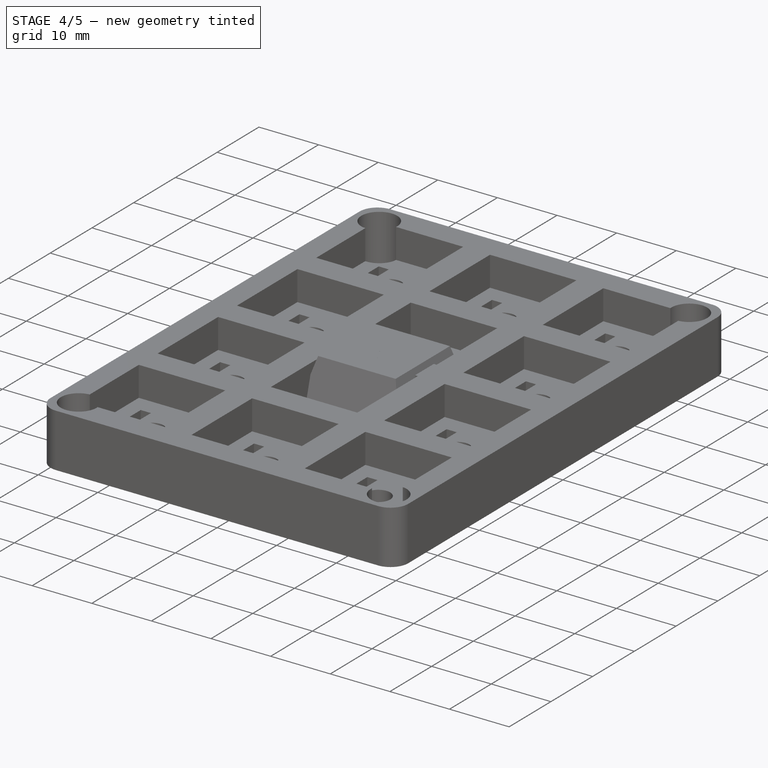
[diagram: stage 4 of 5 — iso view after this stage's code; geometry added in this stage tinted green]
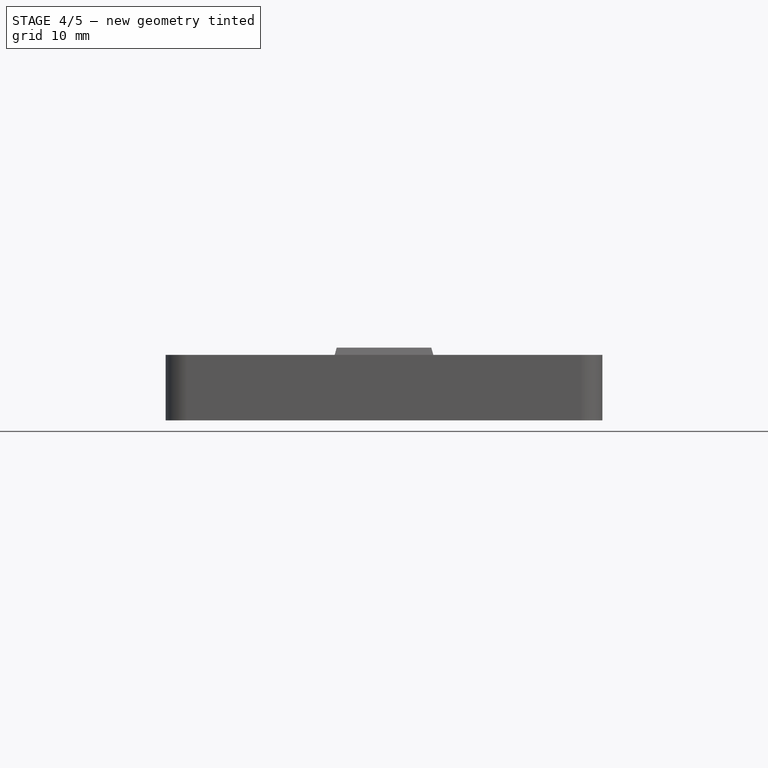
[diagram: stage 4 of 5 — front view after this stage's code; geometry added in this stage tinted green]
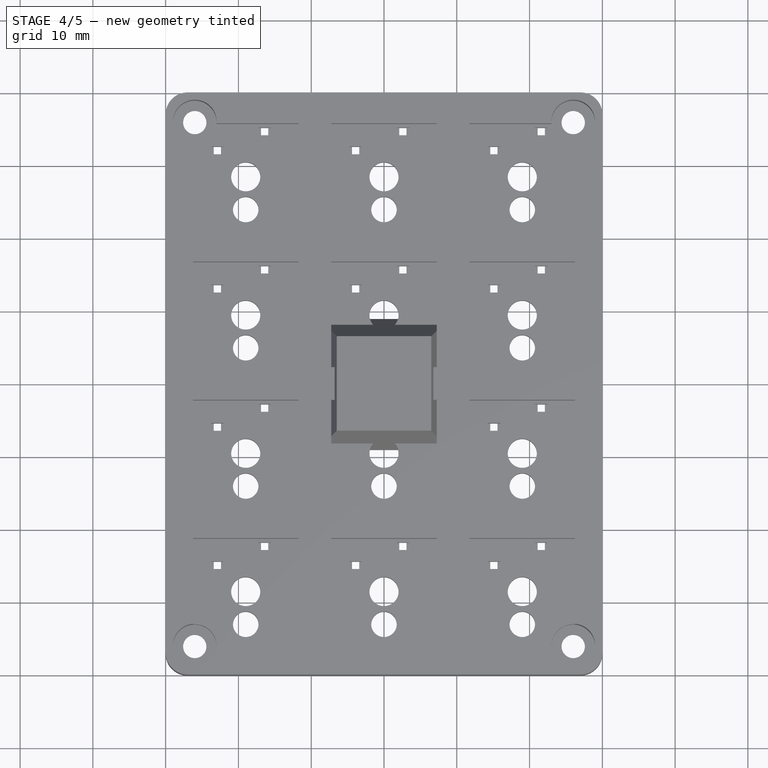
[diagram: stage 4 of 5 — top view after this stage's code; geometry added in this stage tinted green]
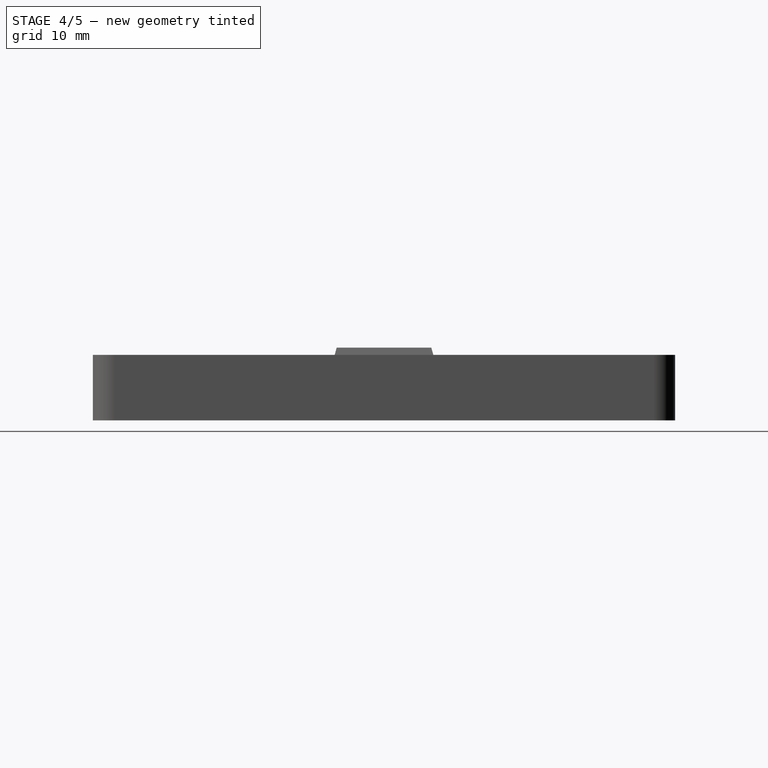
[diagram: stage 4 of 5 — right view after this stage's code; geometry added in this stage tinted green]
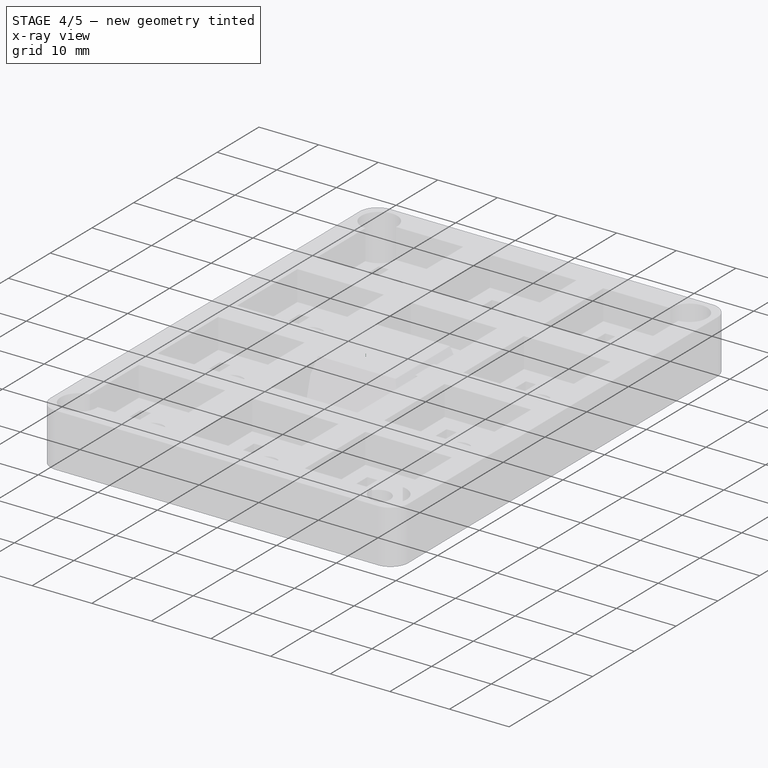
[diagram: stage 4 of 5 — x-ray composite at the iso view; earlier geometry ghosted, this stage's added geometry solid]
FEATURE [PartDesign::Body] Body130  label="Cap_1"
  AllowCompound = false
  Group = -> [Sketch950,Pad268,Sketch951,Pocket1087,Sketch952,Pocket1088,Sketch953,Pocket1089,Pocket1090,Sketch954,Pad269,Sketch955,Pocket1091,Sketch956,Pocket1092,Chamfer308,Chamfer309,Chamfer310,Fillet124,ShapeString275,Pocket1086]
  Origin = -> Origin130
  Placement = pos=(-19,28.5,21) rot=(0,0,1;0rad)
  Tip = -> Pocket1086
FEATURE [Part::Part2DObjectPython] ShapeString277  # Draft 2D object (typed FeaturePython)
  FontFile = <userpath>/OneDrive/Área de Trabalho/TT Firs Text Trial Regular.ttf
  Fuse = false
  Justification = 6
  JustificationReference = 0
  KeepLeftMargin = true
  MakeFace = true
  ObliqueAngle = 0
  Placement = pos=(-1.83,-2.68,10) rot=(0,0,1;0rad)
  ScaleToSize = false
  Size = 3
  String = 2
  Tracking = 0
FEATURE [Sketcher::SketchObject] Sketch957
  ArcFitTolerance = 0
  AttachmentSupport = -> [XY_Plane131]
  FullyConstrained = true
  MakeInternals = false
  MapMode = 5
  sketch-geometry (4):
    g0: LineSegment StartX=-9 StartY=9 StartZ=0 EndX=9 EndY=9 EndZ=0
    g1: LineSegment StartX=9 StartY=9 StartZ=0 EndX=9 EndY=-9 EndZ=0
    g2: LineSegment StartX=9 StartY=-9 StartZ=0 EndX=-9 EndY=-9 EndZ=0
    g3: LineSegment StartX=-9 StartY=-9 StartZ=0 EndX=-9 EndY=9 EndZ=0
  constraints (10):
    c: Coincident(g0,g1)
    c: Coincident(g1,g2)
    c: Coincident(g2,g3)
    c: Coincident(g3,g0)
    c: Horizontal(g2)
    c: Vertical(g1)
    c: Symmetric(g0,g0,g-2)
    c: Symmetric(g0,g2,g-1)
    c: Distance(g0) = 18
    c: Equal(g0,g3)
FEATURE [PartDesign::Pad] Pad270
  Direction = (0,0,1)
  Length = 10
  Length2 = 10
  Profile = -> Sketch957
  ReferenceAxis = -> Sketch957 [N_Axis]
  Suppressed = false
  Type = 0
FEATURE [Sketcher::SketchObject] Sketch958
  ArcFitTolerance = 0
  AttachmentSupport = -> [Pad270]
  ExternalGeometry = -> [Pad270]
  FullyConstrained = true
  MakeInternals = false
  MapMode = 5
  Placement = pos=(9,0,0) rot=(0.57735,0.57735,0.57735;2.0944rad)
  sketch-geometry (6):
    g0: LineSegment StartX=-9 StartY=1 StartZ=0 EndX=-6.5 EndY=10 EndZ=0
    g1: LineSegment StartX=-6.5 StartY=10 StartZ=0 EndX=-9 EndY=10 EndZ=0
    g2: LineSegment StartX=-9 StartY=10 StartZ=0 EndX=-9 EndY=1 EndZ=0
    g3: LineSegment StartX=9 StartY=1 StartZ=0 EndX=6.5 EndY=10 EndZ=0
    g4: LineSegment StartX=6.5 StartY=10 StartZ=0 EndX=9 EndY=10 EndZ=0
    g5: LineSegment StartX=9 StartY=10 StartZ=0 EndX=9 EndY=1 EndZ=0
  constraints (16):
    c: PointOnObject(g0,g-5)
    c: PointOnObject(g0,g-3)
    c: Coincident(g0,g1)
    c: Coincident(g1,g-5)
    c: Coincident(g1,g2)
    c: Coincident(g2,g0)
    c: PointOnObject(g3,g-4)
    c: PointOnObject(g3,g-3)
    c: Coincident(g3,g4)
    c: Coincident(g4,g-4)
    c: Coincident(g4,g5)
    c: Coincident(g5,g3)
    c: Distance(g0,g-5) = 1
    c: Horizontal(g0,g3)
    c: Distance(g1) = 2.5
    c: Distance(g4) = 2.5
FEATURE [PartDesign::Pocket] Pocket1096
  BaseFeature = -> Pad270
  Direction = (-1,0,0)
  Length = 20
  Length2 = 5
  Profile = -> Sketch958
  ReferenceAxis = -> Sketch958 [N_Axis]
  Suppressed = false
  Type = 0
FEATURE [Sketcher::SketchObject] Sketch959
  ArcFitTolerance = 0
  AttachmentSupport = -> [Pocket1096]
  ExternalGeometry = -> [Pocket1096]
  FullyConstrained = true
  MakeInternals = false
  MapMode = 5
  Placement = pos=(0,-9,0) rot=(1,0,0;1.5708rad)
  sketch-geometry (6):
    g0: LineSegment StartX=-9 StartY=1 StartZ=0 EndX=-6.5 EndY=10 EndZ=0
    g1: LineSegment StartX=-6.5 StartY=10 StartZ=0 EndX=-9 EndY=10 EndZ=0
    g2: LineSegment StartX=-9 StartY=10 StartZ=0 EndX=-9 EndY=1 EndZ=0
    g3: LineSegment StartX=9 StartY=1 StartZ=0 EndX=9 EndY=10 EndZ=0
    g4: LineSegment StartX=9 StartY=10 StartZ=0 EndX=6.5 EndY=10 EndZ=0
    g5: LineSegment StartX=6.5 StartY=10 StartZ=0 EndX=9 EndY=1 EndZ=0
  constraints (13):
    c: Coincident(g-4,g0)
    c: PointOnObject(g0,g-3)
    c: Coincident(g0,g1)
    c: Coincident(g1,g-4)
    c: Coincident(g1,g2)
    c: Coincident(g2,g0)
    c: Coincident(g-5,g3)
    c: Coincident(g3,g-5)
    c: Coincident(g3,g4)
    c: Coincident(g4,g5)
    c: Coincident(g5,g3)
    c: Distance(g0,g4) = 13
    c: Symmetric(g0,g4,g-2)
FEATURE [PartDesign::Pocket] Pocket1097
  BaseFeature = -> Pocket1096
  Direction = (0,1,-2e-16)
  Length = 20
  Length2 = 5
  Profile = -> Sketch959
  ReferenceAxis = -> Sketch959 [N_Axis]
  Suppressed = false
  Type = 0
FEATURE [Sketcher::SketchObject] Sketch960
  ArcFitTolerance = 0
  AttachmentSupport = -> [Pocket1097]
  FullyConstrained = true
  MakeInternals = false
  MapMode = 5
  Placement = pos=(0,0,0) rot=(1,0,0;3.14159rad)
  sketch-geometry (4):
    g0: LineSegment StartX=-7.5 StartY=7.5 StartZ=0 EndX=7.5 EndY=7.5 EndZ=0
    g1: LineSegment StartX=7.5 StartY=7.5 StartZ=0 EndX=7.5 EndY=-7.5 EndZ=0
    g2: LineSegment StartX=7.5 StartY=-7.5 StartZ=0 EndX=-7.5 EndY=-7.5 EndZ=0
    g3: LineSegment StartX=-7.5 StartY=-7.5 StartZ=0 EndX=-7.5 EndY=7.5 EndZ=0
  constraints (10):
    c: Coincident(g0,g1)
    c: Coincident(g1,g2)
    c: Coincident(g2,g3)
    c: Coincident(g3,g0)
    c: Horizontal(g2)
    c: Vertical(g1)
    c: Symmetric(g0,g0,g-2)
    c: Symmetric(g0,g2,g-1)
    c: Distance(g0) = 15
    c: Equal(g0,g3)
FEATURE [PartDesign::Pocket] Pocket1098
  BaseFeature = -> Pocket1097
  Direction = (0,0,1)
  Length = 1
  Length2 = 5
  Profile = -> Sketch960
  ReferenceAxis = -> Sketch960 [N_Axis]
  Suppressed = false
  Type = 0
FEATURE [PartDesign::Pocket] Pocket1099
  BaseFeature = -> Pocket1098
  Direction = (0,0,1)
  Length = 7
  Length2 = 5
  Profile = -> Pocket1098 [Face15]
  Suppressed = false
  TaperAngle = -10
  Type = 0
FEATURE [Sketcher::SketchObject] Sketch961
  ArcFitTolerance = 0
  AttachmentSupport = -> [Pocket1099]
  FullyConstrained = true
  MakeInternals = false
  MapMode = 5
  Placement = pos=(0,0,8) rot=(1,0,0;3.14159rad)
  sketch-geometry (4):
    g0: LineSegment StartX=-3.2 StartY=2.2 StartZ=0 EndX=3.2 EndY=2.2 EndZ=0
    g1: LineSegment StartX=3.2 StartY=2.2 StartZ=0 EndX=3.2 EndY=-2.2 EndZ=0
    g2: LineSegment StartX=3.2 StartY=-2.2 StartZ=0 EndX=-3.2 EndY=-2.2 EndZ=0
    g3: LineSegment StartX=-3.2 StartY=-2.2 StartZ=0 EndX=-3.2 EndY=2.2 EndZ=0
  constraints (10):
    c: Coincident(g0,g1)
    c: Coincident(g1,g2)
    c: Coincident(g2,g3)
    c: Coincident(g3,g0)
    c: Horizontal(g2)
    c: Vertical(g1)
    c: Symmetric(g0,g0,g-2)
    c: Symmetric(g0,g2,g-1)
    c: Distance(g3) = 4.4
    c: Distance(g2) = 6.4
FEATURE [PartDesign::Pad] Pad271
  BaseFeature = -> Pocket1099
  Direction = (0,0,-1)
  Length = 8
  Length2 = 10
  Profile = -> Sketch961
  ReferenceAxis = -> Sketch961 [N_Axis]
  Suppressed = false
  Type = 0
FEATURE [Sketcher::SketchObject] Sketch962
  ArcFitTolerance = 0
  AttachmentSupport = -> [Pad271]
  FullyConstrained = true
  MakeInternals = false
  MapMode = 5
  Placement = pos=(0,0,0) rot=(1,0,0;3.14159rad)
  sketch-geometry (4):
    g0: LineSegment StartX=-2.25 StartY=0.7 StartZ=0 EndX=2.25 EndY=0.7 EndZ=0
    g1: LineSegment StartX=2.25 StartY=0.7 StartZ=0 EndX=2.25 EndY=-0.7 EndZ=0
    g2: LineSegment StartX=2.25 StartY=-0.7 StartZ=0 EndX=-2.25 EndY=-0.7 EndZ=0
    g3: LineSegment StartX=-2.25 StartY=-0.7 StartZ=0 EndX=-2.25 EndY=0.7 EndZ=0
  constraints (10):
    c: Coincident(g0,g1)
    c: Coincident(g1,g2)
    c: Coincident(g2,g3)
    c: Coincident(g3,g0)
    c: Horizontal(g2)
    c: Vertical(g1)
    c: Symmetric(g0,g2,g-1)
    c: Symmetric(g0,g0,g-2)
    c: Distance(g3) = 1.4
    c: Distance(g0) = 4.5
FEATURE [PartDesign::Pocket] Pocket1100
  BaseFeature = -> Pad271
  Direction = (0,0,1)
  Length = 4
  Length2 = 5
  Profile = -> Sketch962
  ReferenceAxis = -> Sketch962 [N_Axis]
  Suppressed = false
  Type = 0
FEATURE [PartDesign::Body] Body131  label="Cap_2"
  AllowCompound = false
  Group = -> [Sketch957,Pad270,Sketch958,Pocket1096,Sketch959,Pocket1097,Sketch960,Pocket1098,Pocket1099,Sketch961,Pad271,Sketch962,Pocket1100,Sketch963,Pocket1101,Chamfer311,Chamfer312,Chamfer313,Fillet125,ShapeString277,Pocket1095]
  Origin = -> Origin131
  Placement = pos=(0,28.5,21) rot=(0,0,1;0rad)
  Tip = -> Pocket1095
FEATURE [Part::Part2DObjectPython] ShapeString279  # Draft 2D object (typed FeaturePython)
  FontFile = <userpath>/OneDrive/Área de Trabalho/TT Firs Text Trial Regular.ttf
  Fuse = false
  Justification = 6
  JustificationReference = 0
  KeepLeftMargin = true
  MakeFace = true
  ObliqueAngle = 0
  Placement = pos=(-1.83,-2.68,10) rot=(0,0,1;0rad)
  ScaleToSize = false
  Size = 3
  String = 3
  Tracking = 0
FEATURE [Sketcher::SketchObject] Sketch964
  ArcFitTolerance = 0
  AttachmentSupport = -> [XY_Plane132]
  FullyConstrained = true
  MakeInternals = false
  MapMode = 5
  sketch-geometry (4):
    g0: LineSegment StartX=-9 StartY=9 StartZ=0 EndX=9 EndY=9 EndZ=0
    g1: LineSegment StartX=9 StartY=9 StartZ=0 EndX=9 EndY=-9 EndZ=0
    g2: LineSegment StartX=9 StartY=-9 StartZ=0 EndX=-9 EndY=-9 EndZ=0
    g3: LineSegment StartX=-9 StartY=-9 StartZ=0 EndX=-9 EndY=9 EndZ=0
  constraints (10):
    c: Coincident(g0,g1)
    c: Coincident(g1,g2)
    c: Coincident(g2,g3)
    c: Coincident(g3,g0)
    c: Horizontal(g2)
    c: Vertical(g1)
    c: Symmetric(g0,g0,g-2)
    c: Symmetric(g0,g2,g-1)
    c: Distance(g0) = 18
    c: Equal(g0,g3)
FEATURE [PartDesign::Pad] Pad272
  Direction = (0,0,1)
  Length = 10
  Length2 = 10
  Profile = -> Sketch964
  ReferenceAxis = -> Sketch964 [N_Axis]
  Suppressed = false
  Type = 0
FEATURE [Sketcher::SketchObject] Sketch965
  ArcFitTolerance = 0
  AttachmentSupport = -> [Pad272]
  ExternalGeometry = -> [Pad272]
  FullyConstrained = true
  MakeInternals = false
  MapMode = 5
  Placement = pos=(9,0,0) rot=(0.57735,0.57735,0.57735;2.0944rad)
  sketch-geometry (6):
    g0: LineSegment StartX=-9 StartY=1 StartZ=0 EndX=-6.5 EndY=10 EndZ=0
    g1: LineSegment StartX=-6.5 StartY=10 StartZ=0 EndX=-9 EndY=10 EndZ=0
    g2: LineSegment StartX=-9 StartY=10 StartZ=0 EndX=-9 EndY=1 EndZ=0
    g3: LineSegment StartX=9 StartY=1 StartZ=0 EndX=6.5 EndY=10 EndZ=0
    g4: LineSegment StartX=6.5 StartY=10 StartZ=0 EndX=9 EndY=10 EndZ=0
    g5: LineSegment StartX=9 StartY=10 StartZ=0 EndX=9 EndY=1 EndZ=0
  constraints (16):
    c: PointOnObject(g0,g-5)
    c: PointOnObject(g0,g-3)
    c: Coincident(g0,g1)
    c: Coincident(g1,g-5)
    c: Coincident(g1,g2)
    c: Coincident(g2,g0)
    c: PointOnObject(g3,g-4)
    c: PointOnObject(g3,g-3)
    c: Coincident(g3,g4)
    c: Coincident(g4,g-4)
    c: Coincident(g4,g5)
    c: Coincident(g5,g3)
    c: Distance(g0,g-5) = 1
    c: Horizontal(g0,g3)
    c: Distance(g1) = 2.5
    c: Distance(g4) = 2.5
FEATURE [PartDesign::Pocket] Pocket1104
  BaseFeature = -> Pad272
  Direction = (-1,0,0)
  Length = 20
  Length2 = 5
  Profile = -> Sketch965
  ReferenceAxis = -> Sketch965 [N_Axis]
  Suppressed = false
  Type = 0
FEATURE [Sketcher::SketchObject] Sketch966
  ArcFitTolerance = 0
  AttachmentSupport = -> [Pocket1104]
  ExternalGeometry = -> [Pocket1104]
  FullyConstrained = true
  MakeInternals = false
  MapMode = 5
  Placement = pos=(0,-9,0) rot=(1,0,0;1.5708rad)
  sketch-geometry (6):
    g0: LineSegment StartX=-9 StartY=1 StartZ=0 EndX=-6.5 EndY=10 EndZ=0
    g1: LineSegment StartX=-6.5 StartY=10 StartZ=0 EndX=-9 EndY=10 EndZ=0
    g2: LineSegment StartX=-9 StartY=10 StartZ=0 EndX=-9 EndY=1 EndZ=0
    g3: LineSegment StartX=9 StartY=1 StartZ=0 EndX=9 EndY=10 EndZ=0
    g4: LineSegment StartX=9 StartY=10 StartZ=0 EndX=6.5 EndY=10 EndZ=0
    g5: LineSegment StartX=6.5 StartY=10 StartZ=0 EndX=9 EndY=1 EndZ=0
  constraints (13):
    c: Coincident(g-4,g0)
    c: PointOnObject(g0,g-3)
    c: Coincident(g0,g1)
    c: Coincident(g1,g-4)
    c: Coincident(g1,g2)
    c: Coincident(g2,g0)
    c: Coincident(g-5,g3)
    c: Coincident(g3,g-5)
    c: Coincident(g3,g4)
    c: Coincident(g4,g5)
    c: Coincident(g5,g3)
    c: Distance(g0,g4) = 13
    c: Symmetric(g0,g4,g-2)
FEATURE [PartDesign::Pocket] Pocket1105
  BaseFeature = -> Pocket1104
  Direction = (0,1,-2e-16)
  Length = 20
  Length2 = 5
  Profile = -> Sketch966
  ReferenceAxis = -> Sketch966 [N_Axis]
  Suppressed = false
  Type = 0
FEATURE [Sketcher::SketchObject] Sketch967
  ArcFitTolerance = 0
  AttachmentSupport = -> [Pocket1105]
  FullyConstrained = true
  MakeInternals = false
  MapMode = 5
  Placement = pos=(0,0,0) rot=(1,0,0;3.14159rad)
  sketch-geometry (4):
    g0: LineSegment StartX=-7.5 StartY=7.5 StartZ=0 EndX=7.5 EndY=7.5 EndZ=0
    g1: LineSegment StartX=7.5 StartY=7.5 StartZ=0 EndX=7.5 EndY=-7.5 EndZ=0
    g2: LineSegment StartX=7.5 StartY=-7.5 StartZ=0 EndX=-7.5 EndY=-7.5 EndZ=0
    g3: LineSegment StartX=-7.5 StartY=-7.5 StartZ=0 EndX=-7.5 EndY=7.5 EndZ=0
  constraints (10):
    c: Coincident(g0,g1)
    c: Coincident(g1,g2)
    c: Coincident(g2,g3)
    c: Coincident(g3,g0)
    c: Horizontal(g2)
    c: Vertical(g1)
    c: Symmetric(g0,g0,g-2)
    c: Symmetric(g0,g2,g-1)
    c: Distance(g0) = 15
    c: Equal(g0,g3)
FEATURE [PartDesign::Pocket] Pocket1106
  BaseFeature = -> Pocket1105
  Direction = (0,0,1)
  Length = 1
  Length2 = 5
  Profile = -> Sketch967
  ReferenceAxis = -> Sketch967 [N_Axis]
  Suppressed = false
  Type = 0
FEATURE [PartDesign::Pocket] Pocket1107
  BaseFeature = -> Pocket1106
  Direction = (0,0,1)
  Length = 7
  Length2 = 5
  Profile = -> Pocket1106 [Face15]
  Suppressed = false
  TaperAngle = -10
  Type = 0
FEATURE [Sketcher::SketchObject] Sketch968
  ArcFitTolerance = 0
  AttachmentSupport = -> [Pocket1107]
  FullyConstrained = true
  MakeInternals = false
  MapMode = 5
  Placement = pos=(0,0,8) rot=(1,0,0;3.14159rad)
  sketch-geometry (4):
    g0: LineSegment StartX=-3.2 StartY=2.2 StartZ=0 EndX=3.2 EndY=2.2 EndZ=0
    g1: LineSegment StartX=3.2 StartY=2.2 StartZ=0 EndX=3.2 EndY=-2.2 EndZ=0
    g2: LineSegment StartX=3.2 StartY=-2.2 StartZ=0 EndX=-3.2 EndY=-2.2 EndZ=0
    g3: LineSegment StartX=-3.2 StartY=-2.2 StartZ=0 EndX=-3.2 EndY=2.2 EndZ=0
  constraints (10):
    c: Coincident(g0,g1)
    c: Coincident(g1,g2)
    c: Coincident(g2,g3)
    c: Coincident(g3,g0)
    c: Horizontal(g2)
    c: Vertical(g1)
    c: Symmetric(g0,g0,g-2)
    c: Symmetric(g0,g2,g-1)
    c: Distance(g3) = 4.4
    c: Distance(g2) = 6.4
FEATURE [PartDesign::Pad] Pad273
  BaseFeature = -> Pocket1107
  Direction = (0,0,-1)
  Length = 8
  Length2 = 10
  Profile = -> Sketch968
  ReferenceAxis = -> Sketch968 [N_Axis]
  Suppressed = false
  Type = 0
FEATURE [Sketcher::SketchObject] Sketch969
  ArcFitTolerance = 0
  AttachmentSupport = -> [Pad273]
  FullyConstrained = true
  MakeInternals = false
  MapMode = 5
  Placement = pos=(0,0,0) rot=(1,0,0;3.14159rad)
  sketch-geometry (4):
    g0: LineSegment StartX=-2.25 StartY=0.7 StartZ=0 EndX=2.25 EndY=0.7 EndZ=0
    g1: LineSegment StartX=2.25 StartY=0.7 StartZ=0 EndX=2.25 EndY=-0.7 EndZ=0
    g2: LineSegment StartX=2.25 StartY=-0.7 StartZ=0 EndX=-2.25 EndY=-0.7 EndZ=0
    g3: LineSegment StartX=-2.25 StartY=-0.7 StartZ=0 EndX=-2.25 EndY=0.7 EndZ=0
  constraints (10):
    c: Coincident(g0,g1)
    c: Coincident(g1,g2)
    c: Coincident(g2,g3)
    c: Coincident(g3,g0)
    c: Horizontal(g2)
    c: Vertical(g1)
    c: Symmetric(g0,g2,g-1)
    c: Symmetric(g0,g0,g-2)
    c: Distance(g3) = 1.4
    c: Distance(g0) = 4.5
FEATURE [PartDesign::Pocket] Pocket1108
  BaseFeature = -> Pad273
  Direction = (0,0,1)
  Length = 4
  Length2 = 5
  Profile = -> Sketch969
  ReferenceAxis = -> Sketch969 [N_Axis]
  Suppressed = false
  Type = 0
FEATURE [Sketcher::SketchObject] Sketch970
  ArcFitTolerance = 0
  AttachmentSupport = -> [Pocket1108]
  FullyConstrained = true
  MakeInternals = false
  MapMode = 5
  Placement = pos=(0,0,0) rot=(1,0,0;3.14159rad)
  sketch-geometry (4):
    g0: LineSegment StartX=-0.7 StartY=3 StartZ=0 EndX=0.7 EndY=3 EndZ=0
    g1: LineSegment StartX=0.7 StartY=3 StartZ=0 EndX=0.7 EndY=-3 EndZ=0
    g2: LineSegment StartX=0.7 StartY=-3 StartZ=0 EndX=-0.7 EndY=-3 EndZ=0
    g3: LineSegment StartX=-0.7 StartY=-3 StartZ=0 EndX=-0.7 EndY=3 EndZ=0
  constraints (10):
    c: Coincident(g0,g1)
    c: Coincident(g1,g2)
    c: Coincident(g2,g3)
    c: Coincident(g3,g0)
    c: Horizontal(g0)
    c: Vertical(g1)
    c: Symmetric(g2,g1,g-2)
    c: Symmetric(g0,g2,g-1)
    c: Distance(g1) = 6
    c: Distance(g0) = 1.4
FEATURE [PartDesign::Pocket] Pocket1109
  BaseFeature = -> Pocket1108
  Direction = (0,0,1)
  Length = 4
  Length2 = 5
  Profile = -> Sketch970
  ReferenceAxis = -> Sketch970 [N_Axis]
  Suppressed = false
  Type = 0
FEATURE [PartDesign::Chamfer] Chamfer314
  Angle = 45
  Base = -> Pocket1109 [Edge44,Edge41,Edge42,Edge43]
  BaseFeature = -> Pocket1109
  ChamferType = 0
  FlipDirection = false
  Size = 2.5
  Size2 = 1
  SupportTransform = false
  Suppressed = false
  UseAllEdges = false
FEATURE [PartDesign::Chamfer] Chamfer315
  Angle = 45
  Base = -> Chamfer314 [Edge54,Edge68,Edge64,Edge63]
  BaseFeature = -> Chamfer314
  ChamferType = 0
  FlipDirection = false
  Size = 0.5
  Size2 = 1
  SupportTransform = false
  Suppressed = false
  UseAllEdges = false
FEATURE [PartDesign::Chamfer] Chamfer316
  Angle = 45
  Base = -> Chamfer315 [Edge6,Edge10,Edge9,Edge51,Edge50,Edge53,Edge56,Edge55,Edge1,Edge2]
  BaseFeature = -> Chamfer315
  ChamferType = 0
  FlipDirection = false
  Size = 0.5
  Size2 = 1
  SupportTransform = false
  Suppressed = false
  UseAllEdges = false
FEATURE [PartDesign::Fillet] Fillet126
  Base = -> Chamfer316 [Edge141,Edge133,Edge139,Edge131,Edge144,Edge136,Edge145,Edge140,Edge143,Edge146,Edge142,Edge135]
  BaseFeature = -> Chamfer316
  Radius = 1
  SupportTransform = false
  Suppressed = false
  UseAllEdges = false
FEATURE [PartDesign::Pocket] Pocket1103
  BaseFeature = -> Fillet126
  Direction = (0,0,-1)
  Length = 1
  Length2 = 5
  Profile = -> ShapeString279
  ReferenceAxis = -> ShapeString279 [N_Axis]
  Suppressed = false
  Type = 0
FEATURE [Sketcher::SketchObject] Sketch973
  ArcFitTolerance = 0
  AttachmentSupport = -> [Pocket1112]
  ExternalGeometry = -> [Pocket1112]
  FullyConstrained = true
  MakeInternals = false
  MapMode = 5
  Placement = pos=(0,-9,0) rot=(1,0,0;1.5708rad)
  sketch-geometry (6):
    g0: LineSegment StartX=-9 StartY=1 StartZ=0 EndX=-6.5 EndY=10 EndZ=0
    g1: LineSegment StartX=-6.5 StartY=10 StartZ=0 EndX=-9 EndY=10 EndZ=0
    g2: LineSegment StartX=-9 StartY=10 StartZ=0 EndX=-9 EndY=1 EndZ=0
    g3: LineSegment StartX=9 StartY=1 StartZ=0 EndX=9 EndY=10 EndZ=0
    g4: LineSegment StartX=9 StartY=10 StartZ=0 EndX=6.5 EndY=10 EndZ=0
    g5: LineSegment StartX=6.5 StartY=10 StartZ=0 EndX=9 EndY=1 EndZ=0
  constraints (13):
    c: Coincident(g-4,g0)
    c: PointOnObject(g0,g-3)
    c: Coincident(g0,g1)
    c: Coincident(g1,g-4)
    c: Coincident(g1,g2)
    c: Coincident(g2,g0)
    c: Coincident(g-5,g3)
    c: Coincident(g3,g-5)
    c: Coincident(g3,g4)
    c: Coincident(g4,g5)
    c: Coincident(g5,g3)
    c: Distance(g0,g4) = 13
    c: Symmetric(g0,g4,g-2)
FEATURE [PartDesign::Pocket] Pocket1113
  BaseFeature = -> Pocket1112
  Direction = (0,1,-2e-16)
  Length = 20
  Length2 = 5
  Profile = -> Sketch973
  ReferenceAxis = -> Sketch973 [N_Axis]
  Suppressed = false
  Type = 0
FEATURE [Sketcher::SketchObject] Sketch974
  ArcFitTolerance = 0
  AttachmentSupport = -> [Pocket1113]
  FullyConstrained = true
  MakeInternals = false
  MapMode = 5
  Placement = pos=(0,0,0) rot=(1,0,0;3.14159rad)
  sketch-geometry (4):
    g0: LineSegment StartX=-7.5 StartY=7.5 StartZ=0 EndX=7.5 EndY=7.5 EndZ=0
    g1: LineSegment StartX=7.5 StartY=7.5 StartZ=0 EndX=7.5 EndY=-7.5 EndZ=0
    g2: LineSegment StartX=7.5 StartY=-7.5 StartZ=0 EndX=-7.5 EndY=-7.5 EndZ=0
    g3: LineSegment StartX=-7.5 StartY=-7.5 StartZ=0 EndX=-7.5 EndY=7.5 EndZ=0
  constraints (10):
    c: Coincident(g0,g1)
    c: Coincident(g1,g2)
    c: Coincident(g2,g3)
    c: Coincident(g3,g0)
    c: Horizontal(g2)
    c: Vertical(g1)
    c: Symmetric(g0,g0,g-2)
    c: Symmetric(g0,g2,g-1)
    c: Distance(g0) = 15
    c: Equal(g0,g3)
FEATURE [PartDesign::Pocket] Pocket1114
  BaseFeature = -> Pocket1113
  Direction = (0,0,1)
  Length = 1
  Length2 = 5
  Profile = -> Sketch974
  ReferenceAxis = -> Sketch974 [N_Axis]
  Suppressed = false
  Type = 0
FEATURE [PartDesign::Pocket] Pocket1115
  BaseFeature = -> Pocket1114
  Direction = (0,0,1)
  Length = 7
  Length2 = 5
  Profile = -> Pocket1114 [Face15]
  Suppressed = false
  TaperAngle = -10
  Type = 0
FEATURE [Sketcher::SketchObject] Sketch975
  ArcFitTolerance = 0
  AttachmentSupport = -> [Pocket1115]
  FullyConstrained = true
  MakeInternals = false
  MapMode = 5
  Placement = pos=(0,0,8) rot=(1,0,0;3.14159rad)
  sketch-geometry (4):
    g0: LineSegment StartX=-3.2 StartY=2.2 StartZ=0 EndX=3.2 EndY=2.2 EndZ=0
    g1: LineSegment StartX=3.2 StartY=2.2 StartZ=0 EndX=3.2 EndY=-2.2 EndZ=0
    g2: LineSegment StartX=3.2 StartY=-2.2 StartZ=0 EndX=-3.2 EndY=-2.2 EndZ=0
    g3: LineSegment StartX=-3.2 StartY=-2.2 StartZ=0 EndX=-3.2 EndY=2.2 EndZ=0
  constraints (10):
    c: Coincident(g0,g1)
    c: Coincident(g1,g2)
    c: Coincident(g2,g3)
    c: Coincident(g3,g0)
    c: Horizontal(g2)
    c: Vertical(g1)
    c: Symmetric(g0,g0,g-2)
    c: Symmetric(g0,g2,g-1)
    c: Distance(g3) = 4.4
    c: Distance(g2) = 6.4
FEATURE [PartDesign::Pad] Pad275
  BaseFeature = -> Pocket1115
  Direction = (0,0,-1)
  Length = 8
  Length2 = 10
  Profile = -> Sketch975
  ReferenceAxis = -> Sketch975 [N_Axis]
  Suppressed = false
  Type = 0
FEATURE [Sketcher::SketchObject] Sketch976
  ArcFitTolerance = 0
  AttachmentSupport = -> [Pad275]
  FullyConstrained = true
  MakeInternals = false
  MapMode = 5
  Placement = pos=(0,0,0) rot=(1,0,0;3.14159rad)
  sketch-geometry (4):
    g0: LineSegment StartX=-2.25 StartY=0.7 StartZ=0 EndX=2.25 EndY=0.7 EndZ=0
    g1: LineSegment StartX=2.25 StartY=0.7 StartZ=0 EndX=2.25 EndY=-0.7 EndZ=0
    g2: LineSegment StartX=2.25 StartY=-0.7 StartZ=0 EndX=-2.25 EndY=-0.7 EndZ=0
    g3: LineSegment StartX=-2.25 StartY=-0.7 StartZ=0 EndX=-2.25 EndY=0.7 EndZ=0
  constraints (10):
    c: Coincident(g0,g1)
    c: Coincident(g1,g2)
    c: Coincident(g2,g3)
    c: Coincident(g3,g0)
    c: Horizontal(g2)
    c: Vertical(g1)
    c: Symmetric(g0,g2,g-1)
    c: Symmetric(g0,g0,g-2)
    c: Distance(g3) = 1.4
    c: Distance(g0) = 4.5
FEATURE [PartDesign::Pocket] Pocket1116
  BaseFeature = -> Pad275
  Direction = (0,0,1)
  Length = 4
  Length2 = 5
  Profile = -> Sketch976
  ReferenceAxis = -> Sketch976 [N_Axis]
  Suppressed = false
  Type = 0
FEATURE [Sketcher::SketchObject] Sketch977
  ArcFitTolerance = 0
  AttachmentSupport = -> [Pocket1116]
  FullyConstrained = true
  MakeInternals = false
  MapMode = 5
  Placement = pos=(0,0,0) rot=(1,0,0;3.14159rad)
  sketch-geometry (4):
    g0: LineSegment StartX=-0.7 StartY=3 StartZ=0 EndX=0.7 EndY=3 EndZ=0
    g1: LineSegment StartX=0.7 StartY=3 StartZ=0 EndX=0.7 EndY=-3 EndZ=0
    g2: LineSegment StartX=0.7 StartY=-3 StartZ=0 EndX=-0.7 EndY=-3 EndZ=0
    g3: LineSegment StartX=-0.7 StartY=-3 StartZ=0 EndX=-0.7 EndY=3 EndZ=0
  constraints (10):
    c: Coincident(g0,g1)
    c: Coincident(g1,g2)
    c: Coincident(g2,g3)
    c: Coincident(g3,g0)
    c: Horizontal(g0)
    c: Vertical(g1)
    c: Symmetric(g2,g1,g-2)
    c: Symmetric(g0,g2,g-1)
    c: Distance(g1) = 6
    c: Distance(g0) = 1.4
FEATURE [PartDesign::Pocket] Pocket1117
  BaseFeature = -> Pocket1116
  Direction = (0,0,1)
  Length = 4
  Length2 = 5
  Profile = -> Sketch977
  ReferenceAxis = -> Sketch977 [N_Axis]
  Suppressed = false
  Type = 0
FEATURE [PartDesign::Chamfer] Chamfer317
  Angle = 45
  Base = -> Pocket1117 [Edge44,Edge41,Edge42,Edge43]
  BaseFeature = -> Pocket1117
  ChamferType = 0
  FlipDirection = false
  Size = 2.5
  Size2 = 1
  SupportTransform = false
  Suppressed = false
  UseAllEdges = false
FEATURE [PartDesign::Chamfer] Chamfer318
  Angle = 45
  Base = -> Chamfer317 [Edge54,Edge68,Edge64,Edge63]
  BaseFeature = -> Chamfer317
  ChamferType = 0
  FlipDirection = false
  Size = 0.5
  Size2 = 1
  SupportTransform = false
  Suppressed = false
  UseAllEdges = false
FEATURE [PartDesign::Chamfer] Chamfer319
  Angle = 45
  Base = -> Chamfer318 [Edge6,Edge10,Edge9,Edge51,Edge50,Edge53,Edge56,Edge55,Edge1,Edge2]
  BaseFeature = -> Chamfer318
  ChamferType = 0
  FlipDirection = false
  Size = 0.5
  Size2 = 1
  SupportTransform = false
  Suppressed = false
  UseAllEdges = false
FEATURE [PartDesign::Fillet] Fillet127
  Base = -> Chamfer319 [Edge141,Edge133,Edge139,Edge131,Edge144,Edge136,Edge145,Edge140,Edge143,Edge146,Edge142,Edge135]
  BaseFeature = -> Chamfer319
  Radius = 1
  SupportTransform = false
  Suppressed = false
  UseAllEdges = false
FEATURE [PartDesign::Pocket] Pocket1111
  BaseFeature = -> Fillet127
  Direction = (0,0,-1)
  Length = 1
  Length2 = 5
  Profile = -> ShapeString281
  ReferenceAxis = -> ShapeString281 [N_Axis]
  Suppressed = false
  Type = 0
FEATURE [Sketcher::SketchObject] Sketch984
  ArcFitTolerance = 0
  AttachmentSupport = -> [Pocket1124]
  FullyConstrained = true
  MakeInternals = false
  MapMode = 5
  Placement = pos=(0,0,0) rot=(1,0,0;3.14159rad)
  sketch-geometry (4):
    g0: LineSegment StartX=-0.7 StartY=3 StartZ=0 EndX=0.7 EndY=3 EndZ=0
    g1: LineSegment StartX=0.7 StartY=3 StartZ=0 EndX=0.7 EndY=-3 EndZ=0
    g2: LineSegment StartX=0.7 StartY=-3 StartZ=0 EndX=-0.7 EndY=-3 EndZ=0
    g3: LineSegment StartX=-0.7 StartY=-3 StartZ=0 EndX=-0.7 EndY=3 EndZ=0
  constraints (10):
    c: Coincident(g0,g1)
    c: Coincident(g1,g2)
    c: Coincident(g2,g3)
    c: Coincident(g3,g0)
    c: Horizontal(g0)
    c: Vertical(g1)
    c: Symmetric(g2,g1,g-2)
    c: Symmetric(g0,g2,g-1)
    c: Distance(g1) = 6
    c: Distance(g0) = 1.4
FEATURE [PartDesign::Pocket] Pocket1125
  BaseFeature = -> Pocket1124
  Direction = (0,0,1)
  Length = 4
  Length2 = 5
  Profile = -> Sketch984
  ReferenceAxis = -> Sketch984 [N_Axis]
  Suppressed = false
  Type = 0
FEATURE [PartDesign::Chamfer] Chamfer320
  Angle = 45
  Base = -> Pocket1125 [Edge44,Edge41,Edge42,Edge43]
  BaseFeature = -> Pocket1125
  ChamferType = 0
  FlipDirection = false
  Size = 2.5
  Size2 = 1
  SupportTransform = false
  Suppressed = false
  UseAllEdges = false
FEATURE [PartDesign::Chamfer] Chamfer321
  Angle = 45
  Base = -> Chamfer320 [Edge54,Edge68,Edge64,Edge63]
  BaseFeature = -> Chamfer320
  ChamferType = 0
  FlipDirection = false
  Size = 0.5
  Size2 = 1
  SupportTransform = false
  Suppressed = false
  UseAllEdges = false
FEATURE [PartDesign::Chamfer] Chamfer322
  Angle = 45
  Base = -> Chamfer321 [Edge6,Edge10,Edge9,Edge51,Edge50,Edge53,Edge56,Edge55,Edge1,Edge2]
  BaseFeature = -> Chamfer321
  ChamferType = 0
  FlipDirection = false
  Size = 0.5
  Size2 = 1
  SupportTransform = false
  Suppressed = false
  UseAllEdges = false
FEATURE [PartDesign::Fillet] Fillet128
  Base = -> Chamfer322 [Edge141,Edge133,Edge139,Edge131,Edge144,Edge136,Edge145,Edge140,Edge143,Edge146,Edge142,Edge135]
  BaseFeature = -> Chamfer322
  Radius = 1
  SupportTransform = false
  Suppressed = false
  UseAllEdges = false
FEATURE [PartDesign::Pocket] Pocket1119
  BaseFeature = -> Fillet128
  Direction = (0,0,-1)
  Length = 1
  Length2 = 5
  Profile = -> ShapeString283
  ReferenceAxis = -> ShapeString283 [N_Axis]
  Suppressed = false
  Type = 0
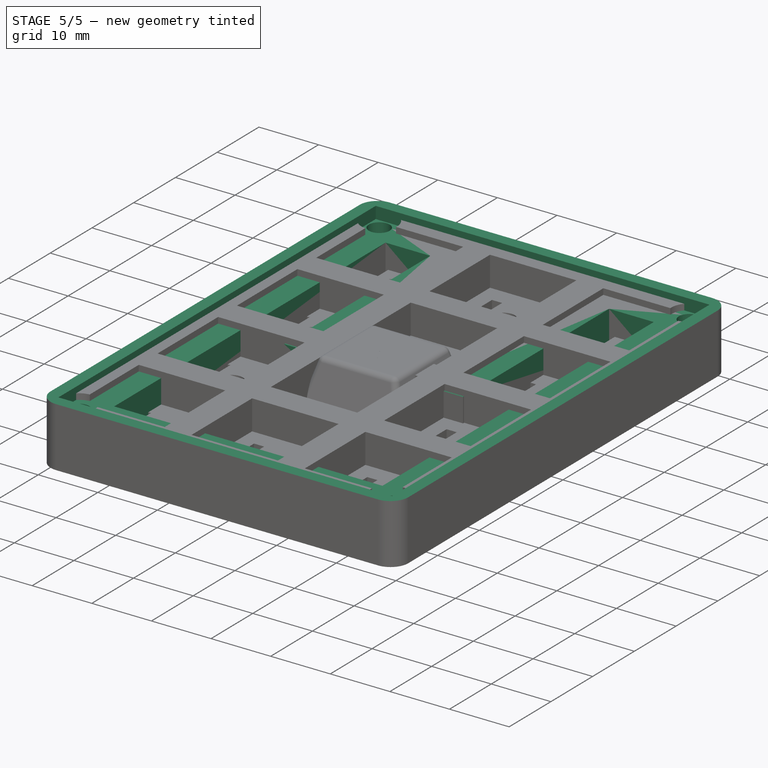
[diagram: stage 5 of 5 — iso view after this stage's code; geometry added in this stage tinted green]
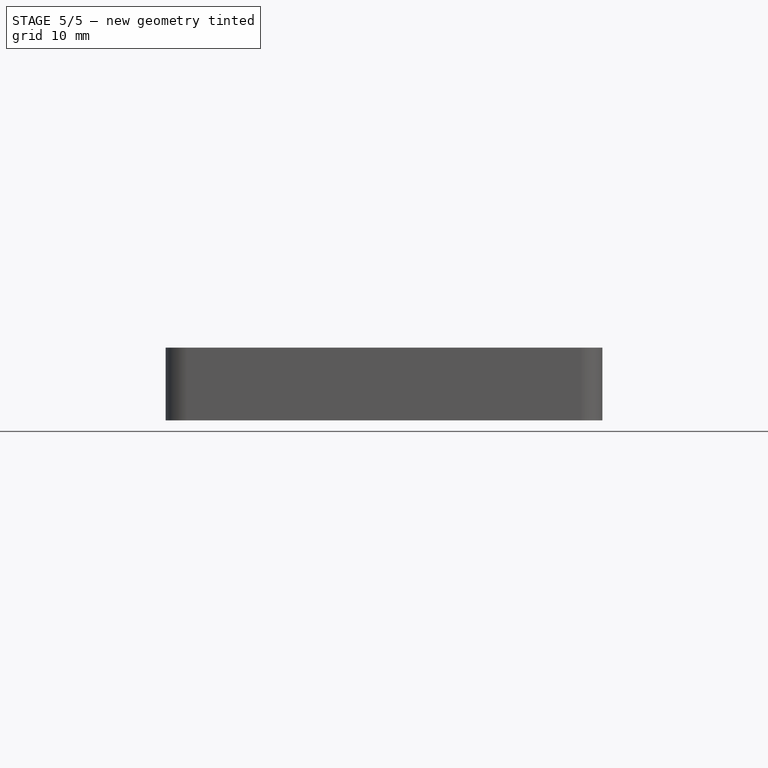
[diagram: stage 5 of 5 — front view after this stage's code; geometry added in this stage tinted green]
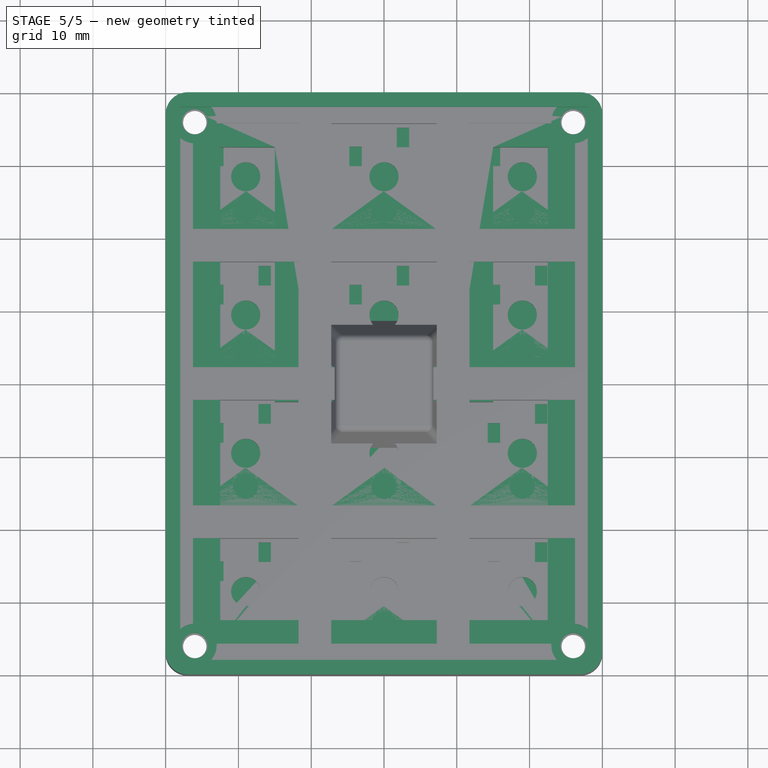
[diagram: stage 5 of 5 — top view after this stage's code; geometry added in this stage tinted green]
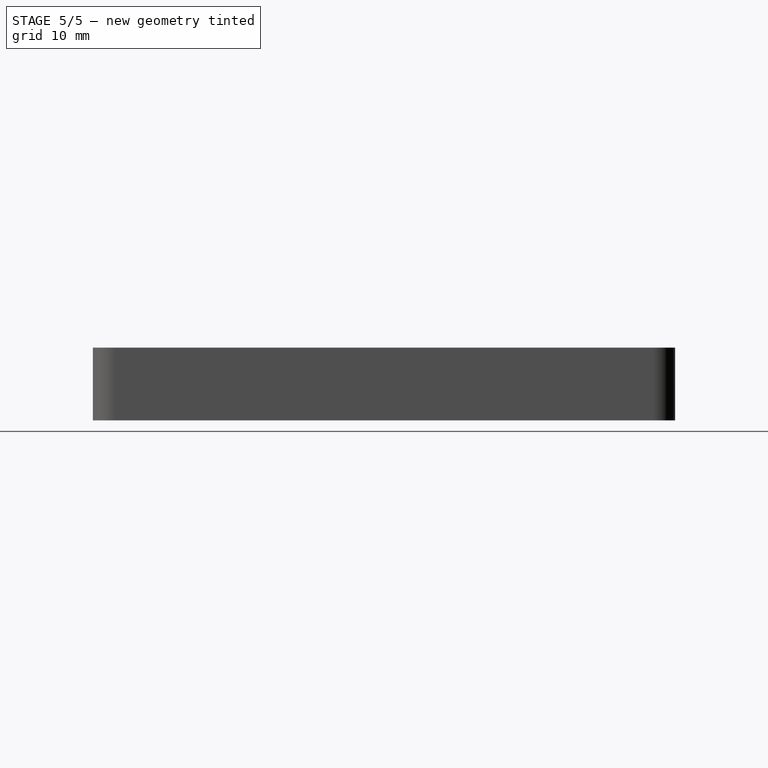
[diagram: stage 5 of 5 — right view after this stage's code; geometry added in this stage tinted green]
FEATURE [Sketcher::SketchObject] Sketch
  ArcFitTolerance = 1e-06
  AttachmentSupport = -> [XY_Plane001]
  FullyConstrained = true
  MakeInternals = false
  MapMode = 5
  sketch-geometry (4):
    g0: LineSegment StartX=-30 StartY=40 StartZ=0 EndX=-30 EndY=-40 EndZ=0
    g1: LineSegment StartX=-30 StartY=-40 StartZ=0 EndX=30 EndY=-40 EndZ=0
    g2: LineSegment StartX=30 StartY=-40 StartZ=0 EndX=30 EndY=40 EndZ=0
    g3: LineSegment StartX=30 StartY=40 StartZ=0 EndX=-30 EndY=40 EndZ=0
  constraints (10):
    c: Coincident(g0,g1)
    c: Coincident(g1,g2)
    c: Coincident(g2,g3)
    c: Coincident(g3,g0)
    c: Vertical(g2)
    c: Horizontal(g1)
    c: Symmetric(g0,g2,g-2)
    c: Symmetric(g0,g0,g-1)
    c: DistanceX(g3,g3) = 60
    c: DistanceY(g0,g0) = 80
FEATURE [PartDesign::Pad] Pad
  Direction = (0,0,1)
  Length = 10
  Length2 = 10
  Profile = -> Sketch
  ReferenceAxis = -> Sketch [N_Axis]
  Refine = true
  Suppressed = false
  Type = 0
FEATURE [Sketcher::SketchObject] Sketch001
  ArcFitTolerance = 1e-06
  AttachmentSupport = -> [Pad]
  FullyConstrained = true
  MakeInternals = false
  MapMode = 5
  Placement = pos=(0,0,10) rot=(0,0,1;0rad)
  sketch-geometry (4):
    g0: LineSegment StartX=-28 StartY=38 StartZ=0 EndX=-28 EndY=-38 EndZ=0
    g1: LineSegment StartX=-28 StartY=-38 StartZ=0 EndX=28 EndY=-38 EndZ=0
    g2: LineSegment StartX=28 StartY=-38 StartZ=0 EndX=28 EndY=38 EndZ=0
    g3: LineSegment StartX=28 StartY=38 StartZ=0 EndX=-28 EndY=38 EndZ=0
  constraints (10):
    c: Coincident(g0,g1)
    c: Coincident(g1,g2)
    c: Coincident(g2,g3)
    c: Coincident(g3,g0)
    c: Vertical(g2)
    c: Horizontal(g3)
    c: Symmetric(g0,g1,g-2)
    c: Symmetric(g0,g0,g-1)
    c: DistanceX(g3,g3) = 56
    c: DistanceY(g0,g0) = 76
FEATURE [PartDesign::Pocket] Pocket
  BaseFeature = -> Pad
  Direction = (0,0,-1)
  Length = 2
  Length2 = 5
  Profile = -> Sketch001
  ReferenceAxis = -> Sketch001 [N_Axis]
  Refine = true
  Suppressed = false
  Type = 0
FEATURE [Sketcher::SketchObject] Sketch002
  ArcFitTolerance = 1e-06
  AttachmentSupport = -> [Pocket]
  ExternalGeometry = -> [Pocket]
  FullyConstrained = true
  MakeInternals = false
  MapMode = 5
  Placement = pos=(0,0,8) rot=(0,0,1;0rad)
  sketch-geometry (16):
    g0: LineSegment StartX=-10 StartY=38 StartZ=0 EndX=-10 EndY=2.5 EndZ=0
    g1: LineSegment StartX=-10 StartY=2.5 StartZ=0 EndX=10 EndY=2.5 EndZ=0
    g2: LineSegment StartX=10 StartY=2.5 StartZ=0 EndX=10 EndY=38 EndZ=0
    g3: LineSegment StartX=10 StartY=38 StartZ=0 EndX=-10 EndY=38 EndZ=0
    g4: LineSegment StartX=-22.5 StartY=-2.5 StartZ=0 EndX=-22.5 EndY=-32.5 EndZ=0
    g5: LineSegment StartX=-22.5 StartY=-32.5 StartZ=0 EndX=22.5 EndY=-32.5 EndZ=0
    g6: LineSegment StartX=22.5 StartY=-32.5 StartZ=0 EndX=22.5 EndY=-2.5 EndZ=0
    g7: LineSegment StartX=22.5 StartY=-2.5 StartZ=0 EndX=-22.5 EndY=-2.5 EndZ=0
    g8: LineSegment StartX=-22.5 StartY=-2.5 StartZ=0 EndX=-15 EndY=-2.5 EndZ=0
    g9: LineSegment StartX=-15 StartY=-2.5 StartZ=0 EndX=-15 EndY=32.5 EndZ=0
    g10: LineSegment StartX=-15 StartY=32.5 StartZ=0 EndX=-22.5 EndY=32.5 EndZ=0
    g11: LineSegment StartX=-22.5 StartY=32.5 StartZ=0 EndX=-22.5 EndY=-2.5 EndZ=0
    g12: LineSegment StartX=22.5 StartY=-2.5 StartZ=0 EndX=22.5 EndY=32.5 EndZ=0
    g13: LineSegment StartX=22.5 StartY=32.5 StartZ=0 EndX=15 EndY=32.5 EndZ=0
    g14: LineSegment StartX=15 StartY=32.5 StartZ=0 EndX=15 EndY=-2.5 EndZ=0
    g15: LineSegment StartX=15 StartY=-2.5 StartZ=0 EndX=22.5 EndY=-2.5 EndZ=0
  constraints (44):
    c: Coincident(g0,g1)
    c: Coincident(g1,g2)
    c: Coincident(g2,g3)
    c: Coincident(g3,g0)
    c: Vertical(g0)
    c: Vertical(g2)
    c: Horizontal(g3)
    c: PointOnObject(g0,g-3)
    c: Symmetric(g0,g1,g-2)
    c: DistanceY(g0,g0) = 35.5
    c: DistanceX(g1,g1) = 20
    c: Coincident(g4,g5)
    c: Coincident(g5,g6)
    c: Coincident(g6,g7)
    c: Coincident(g7,g4)
    c: Vertical(g4)
    c: Vertical(g6)
    c: Horizontal(g7)
    c: Symmetric(g5,g4,g-2)
    c: Distance(g0,g7) = 5
    c: DistanceX(g5,g5) = 45
    c: DistanceY(g4,g4) = 30
    c: Coincident(g8,g9)
    c: Coincident(g9,g10)
    c: Coincident(g10,g11)
    c: Coincident(g11,g8)
    c: Horizontal(g8)
    c: Horizontal(g10)
    c: Vertical(g9)
    c: Vertical(g11)
    c: Coincident(g8,g4)
    c: Distance(g9,g0) = 5
    c: DistanceY(g11,g11) = 35
    c: Coincident(g12,g13)
    c: Coincident(g13,g14)
    c: Coincident(g14,g15)
    c: Coincident(g15,g12)
    c: Vertical(g12)
    c: Vertical(g14)
    c: Horizontal(g13)
    c: Horizontal(g15)
    c: Coincident(g12,g6)
    c: Horizontal(g13,g9)
    c: Distance(g13,g2) = 5
FEATURE [PartDesign::Pocket] Pocket001
  BaseFeature = -> Pocket
  Direction = (0,0,-1)
  Length = 6
  Length2 = 5
  Profile = -> Sketch002
  ReferenceAxis = -> Sketch002 [N_Axis]
  Refine = true
  Suppressed = false
  Type = 0
FEATURE [Sketcher::SketchObject] Sketch003
  ArcFitTolerance = 1e-06
  AttachmentSupport = -> [Pocket001]
  ExternalGeometry = -> [Pocket001]
  FullyConstrained = true
  MakeInternals = false
  MapMode = 5
  Placement = pos=(0,38,0) rot=(1,0,0;1.5708rad)
  sketch-geometry (4):
    g0: LineSegment StartX=-7 StartY=8 StartZ=0 EndX=-7 EndY=2 EndZ=0
    g1: LineSegment StartX=-7 StartY=2 StartZ=0 EndX=7 EndY=2 EndZ=0
    g2: LineSegment StartX=7 StartY=2 StartZ=0 EndX=7 EndY=8 EndZ=0
    g3: LineSegment StartX=7 StartY=8 StartZ=0 EndX=-7 EndY=8 EndZ=0
  constraints (11):
    c: Coincident(g0,g1)
    c: Coincident(g1,g2)
    c: Coincident(g2,g3)
    c: Coincident(g3,g0)
    c: Vertical(g0)
    c: Vertical(g2)
    c: Horizontal(g1)
    c: Symmetric(g0,g2,g-2)
    c: DistanceY(g0,g0) = 6
    c: PointOnObject(g1,g-3)
    c: DistanceX(g3,g3) = 14
FEATURE [PartDesign::Pocket] Pocket002
  BaseFeature = -> Pocket001
  Direction = (0,1,-2e-16)
  Length = 5
  Length2 = 5
  Profile = -> Sketch003
  ReferenceAxis = -> Sketch003 [N_Axis]
  Refine = true
  Suppressed = false
  Type = 0
FEATURE [PartDesign::Fillet] Fillet
  Base = -> Pocket002 [Edge2,Edge1,Edge12,Edge5]
  BaseFeature = -> Pocket002
  Radius = 3
  Refine = true
  SupportTransform = false
  Suppressed = false
  UseAllEdges = false
FEATURE [Sketcher::SketchObject] Sketch004
  ArcFitTolerance = 1e-06
  AttachmentSupport = -> [Fillet]
  ExternalGeometry = -> [Fillet]
  FullyConstrained = true
  MakeInternals = false
  MapMode = 5
  Placement = pos=(0,0,8) rot=(0,0,1;0rad)
  sketch-geometry (4):
    g0: Circle CenterX=26 CenterY=-36 CenterZ=0 NormalX=0 NormalY=0 NormalZ=1 AngleXU=0 Radius=1.75
    g1: Circle CenterX=-26 CenterY=-36 CenterZ=0 NormalX=0 NormalY=0 NormalZ=1 AngleXU=0 Radius=1.75
    g2: Circle CenterX=-26 CenterY=36 CenterZ=0 NormalX=0 NormalY=0 NormalZ=1 AngleXU=0 Radius=1.75
    g3: Circle CenterX=26 CenterY=36 CenterZ=0 NormalX=0 NormalY=0 NormalZ=1 AngleXU=0 Radius=1.75
  constraints (9):
    c: Symmetric(g0,g1,g-2)
    c: Symmetric(g3,g2,g-2)
    c: Symmetric(g2,g1,g-1)
    c: Equal(g1,g0)
    c: Equal(g3,g0)
    c: Diameter(g1) = 3.5
    c: Equal(g1,g2)
    c: Distance(g1,g-3) = 4
    c: Distance(g1,g-4) = 4
FEATURE [PartDesign::Pocket] Pocket003
  BaseFeature = -> Fillet
  Direction = (0,0,-1)
  Length = 10
  Length2 = 5
  Profile = -> Sketch004
  ReferenceAxis = -> Sketch004 [N_Axis]
  Refine = true
  Suppressed = false
  Type = 0
FEATURE [Sketcher::SketchObject] Sketch005
  ArcFitTolerance = 1e-06
  AttachmentSupport = -> [Pocket003]
  ExternalGeometry = -> [Pocket003]
  FullyConstrained = true
  MakeInternals = false
  MapMode = 5
  Placement = pos=(0,0,0) rot=(1,0,0;3.14159rad)
  sketch-geometry (28):
    g0: LineSegment StartX=-24.375 StartY=33.1854 StartZ=0 EndX=-22.75 EndY=36 EndZ=0
    g1: LineSegment StartX=-22.75 StartY=36 StartZ=0 EndX=-24.375 EndY=38.8146 EndZ=0
    g2: LineSegment StartX=-24.375 StartY=38.8146 StartZ=0 EndX=-27.625 EndY=38.8146 EndZ=0
    g3: LineSegment StartX=-27.625 StartY=38.8146 StartZ=0 EndX=-29.25 EndY=36 EndZ=0
    g4: LineSegment StartX=-29.25 StartY=36 StartZ=0 EndX=-27.625 EndY=33.1854 EndZ=0
    g5: LineSegment StartX=-27.625 StartY=33.1854 StartZ=0 EndX=-24.375 EndY=33.1854 EndZ=0
    g6: Circle [constr] CenterX=-26 CenterY=36 CenterZ=0 NormalX=0 NormalY=0 NormalZ=1 AngleXU=0 Radius=3.25
    g7: LineSegment StartX=27.625 StartY=33.1854 StartZ=0 EndX=29.25 EndY=36 EndZ=0
    g8: LineSegment StartX=29.25 StartY=36 StartZ=0 EndX=27.625 EndY=38.8146 EndZ=0
    g9: LineSegment StartX=27.625 StartY=38.8146 StartZ=0 EndX=24.375 EndY=38.8146 EndZ=0
    g10: LineSegment StartX=24.375 StartY=38.8146 StartZ=0 EndX=22.75 EndY=36 EndZ=0
    g11: LineSegment StartX=22.75 StartY=36 StartZ=0 EndX=24.375 EndY=33.1854 EndZ=0
    g12: LineSegment StartX=24.375 StartY=33.1854 StartZ=0 EndX=27.625 EndY=33.1854 EndZ=0
    g13: Circle [constr] CenterX=26 CenterY=36 CenterZ=0 NormalX=0 NormalY=0 NormalZ=1 AngleXU=0 Radius=3.25
    g14: LineSegment StartX=-22.75 StartY=-36 StartZ=0 EndX=-24.375 EndY=-33.1854 EndZ=0
    g15: LineSegment StartX=-24.375 StartY=-33.1854 StartZ=0 EndX=-27.625 EndY=-33.1854 EndZ=0
    g16: LineSegment StartX=-27.625 StartY=-33.1854 StartZ=0 EndX=-29.25 EndY=-36 EndZ=0
    g17: LineSegment StartX=-29.25 StartY=-36 StartZ=0 EndX=-27.625 EndY=-38.8146 EndZ=0
    g18: LineSegment StartX=-27.625 StartY=-38.8146 StartZ=0 EndX=-24.375 EndY=-38.8146 EndZ=0
    g19: LineSegment StartX=-24.375 StartY=-38.8146 StartZ=0 EndX=-22.75 EndY=-36 EndZ=0
    g20: Circle [constr] CenterX=-26 CenterY=-36 CenterZ=0 NormalX=0 NormalY=0 NormalZ=1 AngleXU=0 Radius=3.25
    g21: LineSegment StartX=29.25 StartY=-36 StartZ=0 EndX=27.625 EndY=-33.1854 EndZ=0
    g22: LineSegment StartX=27.625 StartY=-33.1854 StartZ=0 EndX=24.375 EndY=-33.1854 EndZ=0
    g23: LineSegment StartX=24.375 StartY=-33.1854 StartZ=0 EndX=22.75 EndY=-36 EndZ=0
    g24: LineSegment StartX=22.75 StartY=-36 StartZ=0 EndX=24.375 EndY=-38.8146 EndZ=0
    g25: LineSegment StartX=24.375 StartY=-38.8146 StartZ=0 EndX=27.625 EndY=-38.8146 EndZ=0
    g26: LineSegment StartX=27.625 StartY=-38.8146 StartZ=0 EndX=29.25 EndY=-36 EndZ=0
    g27: Circle [constr] CenterX=26 CenterY=-36 CenterZ=0 NormalX=0 NormalY=0 NormalZ=1 AngleXU=0 Radius=3.25
  constraints (64):
    c: Coincident(g0,g1)
    c: Coincident(g1,g2)
    c: Coincident(g2,g3)
    c: Coincident(g3,g4)
    c: Coincident(g4,g5)
    c: Coincident(g5,g0)
    c: Equal(g0, g1-g5) x5
    c: PointOnObject(g0,g6)
    c: PointOnObject(g1,g6)
    c: PointOnObject(g2,g6)
    c: PointOnObject(g3,g6)
    c: PointOnObject(g4,g6)
    c: PointOnObject(g5,g6)
    c: Diameter(g6) = 6.5
    c: Coincident(g6,g-3)
    c: Horizontal(g5)
    c: Coincident(g7,g8)
    c: Coincident(g8,g9)
    c: Coincident(g9,g10)
    c: Coincident(g10,g11)
    c: Coincident(g11,g12)
    c: Coincident(g12,g7)
    c: Equal(g7, g8-g12) x5
    c: PointOnObject(g7,g13)
    c: PointOnObject(g8,g13)
    c: PointOnObject(g9,g13)
    c: PointOnObject(g10,g13)
    c: PointOnObject(g11,g13)
    c: PointOnObject(g12,g13)
    c: Coincident(g13,g-4)
    c: Horizontal(g12)
    c: Diameter(g13) = 6.5
    c: Coincident(g14,g15)
    c: Coincident(g15,g16)
    c: Coincident(g16,g17)
    c: Coincident(g17,g18)
    c: Coincident(g18,g19)
    c: Coincident(g19,g14)
    c: Equal(g14, g15-g19) x5
    c: PointOnObject(g14,g20)
    c: PointOnObject(g15,g20)
    c: PointOnObject(g16,g20)
    c: PointOnObject(g17,g20)
    c: PointOnObject(g18,g20)
    c: PointOnObject(g19,g20)
    c: Horizontal(g18)
    c: Coincident(g-5,g20)
    c: Diameter(g20) = 6.5
    c: Coincident(g21,g22)
    c: Coincident(g22,g23)
    c: Coincident(g23,g24)
    c: Coincident(g24,g25)
    c: Coincident(g25,g26)
    c: Coincident(g26,g21)
    c: Equal(g21, g22-g26) x5
    c: PointOnObject(g21,g27)
    c: PointOnObject(g22,g27)
    c: PointOnObject(g23,g27)
    c: PointOnObject(g24,g27)
    c: PointOnObject(g25,g27)
    c: PointOnObject(g26,g27)
    c: Horizontal(g25)
    c: Diameter(g27) = 6.5
    c: Coincident(g27,g-6)
FEATURE [PartDesign::Pocket] Pocket004
  BaseFeature = -> Pocket003
  Direction = (0,0,1)
  Length = 6
  Length2 = 5
  Profile = -> Sketch005
  ReferenceAxis = -> Sketch005 [N_Axis]
  Refine = true
  Suppressed = false
  Type = 0
FEATURE [Sketcher::SketchObject] Sketch006
  ArcFitTolerance = 1e-06
  AttachmentSupport = -> [XY_Plane]
  FullyConstrained = true
  MakeInternals = false
  MapMode = 5
  sketch-geometry (4):
    g0: LineSegment StartX=-30 StartY=40 StartZ=0 EndX=-30 EndY=-40 EndZ=0
    g1: LineSegment StartX=-30 StartY=-40 StartZ=0 EndX=30 EndY=-40 EndZ=0
    g2: LineSegment StartX=30 StartY=-40 StartZ=0 EndX=30 EndY=40 EndZ=0
    g3: LineSegment StartX=30 StartY=40 StartZ=0 EndX=-30 EndY=40 EndZ=0
  constraints (10):
    c: Coincident(g0,g1)
    c: Coincident(g1,g2)
    c: Coincident(g2,g3)
    c: Coincident(g3,g0)
    c: Vertical(g2)
    c: Horizontal(g3)
    c: Symmetric(g0,g1,g-2)
    c: Symmetric(g0,g0,g-1)
    c: DistanceX(g3,g3) = 60
    c: DistanceY(g0,g0) = 80
FEATURE [PartDesign::Pad] Pad001
  Direction = (0,0,1)
  Length = 9
  Length2 = 10
  Profile = -> Sketch006
  ReferenceAxis = -> Sketch006 [N_Axis]
  Refine = true
  Suppressed = false
  Type = 0
FEATURE [Sketcher::SketchObject] Sketch007
  ArcFitTolerance = 1e-06
  AttachmentSupport = -> [Pad001]
  ExternalGeometry = -> [Pad001]
  FullyConstrained = true
  MakeInternals = false
  MapMode = 5
  Placement = pos=(0,0,9) rot=(0,0,1;0rad)
  sketch-geometry (48):
    g0: LineSegment StartX=-26.25 StartY=35.75 StartZ=0 EndX=-26.25 EndY=21.25 EndZ=0
    g1: LineSegment StartX=-26.25 StartY=21.25 StartZ=0 EndX=-11.75 EndY=21.25 EndZ=0
    g2: LineSegment StartX=-11.75 StartY=21.25 StartZ=0 EndX=-11.75 EndY=35.75 EndZ=0
    g3: LineSegment StartX=-11.75 StartY=35.75 StartZ=0 EndX=-26.25 EndY=35.75 EndZ=0
    g4: LineSegment StartX=-7.25 StartY=35.75 StartZ=0 EndX=-7.25 EndY=21.25 EndZ=0
    g5: LineSegment StartX=-7.25 StartY=21.25 StartZ=0 EndX=7.25 EndY=21.25 EndZ=0
    g6: LineSegment StartX=7.25 StartY=21.25 StartZ=0 EndX=7.25 EndY=35.75 EndZ=0
    g7: LineSegment StartX=7.25 StartY=35.75 StartZ=0 EndX=-7.25 EndY=35.75 EndZ=0
    g8: LineSegment StartX=11.75 StartY=35.75 StartZ=0 EndX=11.75 EndY=21.25 EndZ=0
    g9: LineSegment StartX=11.75 StartY=21.25 StartZ=0 EndX=26.25 EndY=21.25 EndZ=0
    g10: LineSegment StartX=26.25 StartY=21.25 StartZ=0 EndX=26.25 EndY=35.75 EndZ=0
    g11: LineSegment StartX=26.25 StartY=35.75 StartZ=0 EndX=11.75 EndY=35.75 EndZ=0
    g12: LineSegment StartX=-26.25 StartY=16.75 StartZ=0 EndX=-26.25 EndY=2.25 EndZ=0
    g13: LineSegment StartX=-26.25 StartY=2.25 StartZ=0 EndX=-11.75 EndY=2.25 EndZ=0
    g14: LineSegment StartX=-11.75 StartY=2.25 StartZ=0 EndX=-11.75 EndY=16.75 EndZ=0
    g15: LineSegment StartX=-11.75 StartY=16.75 StartZ=0 EndX=-26.25 EndY=16.75 EndZ=0
    g16: LineSegment StartX=-7.25 StartY=16.75 StartZ=0 EndX=-7.25 EndY=2.25 EndZ=0
    g17: LineSegment StartX=-7.25 StartY=2.25 StartZ=0 EndX=7.25 EndY=2.25 EndZ=0
    g18: LineSegment StartX=7.25 StartY=2.25 StartZ=0 EndX=7.25 EndY=16.75 EndZ=0
    g19: LineSegment StartX=7.25 StartY=16.75 StartZ=0 EndX=-7.25 EndY=16.75 EndZ=0
    g20: LineSegment StartX=11.75 StartY=16.75 StartZ=0 EndX=11.75 EndY=2.25 EndZ=0
    g21: LineSegment StartX=11.75 StartY=2.25 StartZ=0 EndX=26.25 EndY=2.25 EndZ=0
    g22: LineSegment StartX=26.25 StartY=2.25 StartZ=0 EndX=26.25 EndY=16.75 EndZ=0
    g23: LineSegment StartX=26.25 StartY=16.75 StartZ=0 EndX=11.75 EndY=16.75 EndZ=0
    g24: LineSegment StartX=-26.25 StartY=-2.25 StartZ=0 EndX=-26.25 EndY=-16.75 EndZ=0
    g25: LineSegment StartX=-26.25 StartY=-16.75 StartZ=0 EndX=-11.75 EndY=-16.75 EndZ=0
    g26: LineSegment StartX=-11.75 StartY=-16.75 StartZ=0 EndX=-11.75 EndY=-2.25 EndZ=0
    g27: LineSegment StartX=-11.75 StartY=-2.25 StartZ=0 EndX=-26.25 EndY=-2.25 EndZ=0
    g28: LineSegment StartX=-7.25 StartY=-2.25 StartZ=0 EndX=-7.25 EndY=-16.75 EndZ=0
    g29: LineSegment StartX=-7.25 StartY=-16.75 StartZ=0 EndX=7.25 EndY=-16.75 EndZ=0
    g30: LineSegment StartX=7.25 StartY=-16.75 StartZ=0 EndX=7.25 EndY=-2.25 EndZ=0
    g31: LineSegment StartX=7.25 StartY=-2.25 StartZ=0 EndX=-7.25 EndY=-2.25 EndZ=0
    g32: LineSegment StartX=11.75 StartY=-2.25 StartZ=0 EndX=11.75 EndY=-16.75 EndZ=0
    g33: LineSegment StartX=11.75 StartY=-16.75 StartZ=0 EndX=26.25 EndY=-16.75 EndZ=0
    g34: LineSegment StartX=26.25 StartY=-16.75 StartZ=0 EndX=26.25 EndY=-2.25 EndZ=0
    g35: LineSegment StartX=26.25 StartY=-2.25 StartZ=0 EndX=11.75 EndY=-2.25 EndZ=0
    g36: LineSegment StartX=-26.25 StartY=-21.25 StartZ=0 EndX=-26.25 EndY=-35.75 EndZ=0
    g37: LineSegment StartX=-26.25 StartY=-35.75 StartZ=0 EndX=-11.75 EndY=-35.75 EndZ=0
    g38: LineSegment StartX=-11.75 StartY=-35.75 StartZ=0 EndX=-11.75 EndY=-21.25 EndZ=0
    g39: LineSegment StartX=-11.75 StartY=-21.25 StartZ=0 EndX=-26.25 EndY=-21.25 EndZ=0
    g40: LineSegment StartX=-7.25 StartY=-21.25 StartZ=0 EndX=-7.25 EndY=-35.75 EndZ=0
    g41: LineSegment StartX=-7.25 StartY=-35.75 StartZ=0 EndX=7.25 EndY=-35.75 EndZ=0
    g42: LineSegment StartX=7.25 StartY=-35.75 StartZ=0 EndX=7.25 EndY=-21.25 EndZ=0
    g43: LineSegment StartX=7.25 StartY=-21.25 StartZ=0 EndX=-7.25 EndY=-21.25 EndZ=0
    g44: LineSegment StartX=11.75 StartY=-21.25 StartZ=0 EndX=11.75 EndY=-35.75 EndZ=0
    g45: LineSegment StartX=11.75 StartY=-35.75 StartZ=0 EndX=26.25 EndY=-35.75 EndZ=0
    g46: LineSegment StartX=26.25 StartY=-35.75 StartZ=0 EndX=26.25 EndY=-21.25 EndZ=0
    g47: LineSegment StartX=26.25 StartY=-21.25 StartZ=0 EndX=11.75 EndY=-21.25 EndZ=0
  constraints (142):
    c: Coincident(g0,g1)
    c: Coincident(g1,g2)
    c: Coincident(g2,g3)
    c: Coincident(g3,g0)
    c: Vertical(g0)
    c: Vertical(g2)
    c: Horizontal(g1)
    c: Horizontal(g3)
    c: DistanceX(g3,g3) = 14.5
    c: Equal(g0,g3)
    c: Coincident(g4,g5)
    c: Coincident(g5,g6)
    c: Coincident(g6,g7)
    c: Coincident(g7,g4)
    c: Vertical(g4)
    c: Vertical(g6)
    c: Horizontal(g5)
    c: Equal(g3,g7)
    c: Equal(g0,g4)
    c: Horizontal(g2,g4)
    c: Symmetric(g4,g6,g-2)
    c: DistanceX(g2,g4) = 4.5
    c: Coincident(g8,g9)
    c: Coincident(g9,g10)
    c: Coincident(g10,g11)
    c: Coincident(g11,g8)
    c: Vertical(g8)
    c: Vertical(g10)
    c: Horizontal(g9)
    c: Horizontal(g11)
    c: Equal(g7,g11)
    c: Equal(g6,g8)
    c: Horizontal(g8,g6)
    c: DistanceX(g6,g8) = 4.5
    c: Coincident(g12,g13)
    c: Coincident(g13,g14)
    c: Coincident(g14,g15)
    c: Coincident(g15,g12)
    c: Vertical(g12)
    c: Vertical(g14)
    c: Horizontal(g13)
    c: Horizontal(g15)
    c: Coincident(g16,g17)
    c: Coincident(g17,g18)
    c: Coincident(g18,g19)
    c: Coincident(g19,g16)
    c: Vertical(g16)
    c: Vertical(g18)
    c: Horizontal(g17)
    c: Horizontal(g19)
    c: Coincident(g20,g21)
    c: Coincident(g21,g22)
    c: Coincident(g22,g23)
    c: Coincident(g23,g20)
    c: Vertical(g20)
    c: Vertical(g22)
    c: Horizontal(g21)
    c: Horizontal(g23)
    c: Equal(g3,g12)
    c: Equal(g12,g15)
    c: Equal(g15,g16)
    c: Equal(g16,g19)
    c: Equal(g19,g20)
    c: Equal(g20,g23)
    c: Horizontal(g14,g16)
    c: Horizontal(g16,g20)
    c: Vertical(g16,g4)
    c: Vertical(g12,g0)
    c: Vertical(g20,g8)
    c: DistanceY(g12,g0) = 4.5
    c: Coincident(g24,g25)
    c: Coincident(g25,g26)
    c: Coincident(g26,g27)
    c: Coincident(g27,g24)
    c: Vertical(g24)
    c: Vertical(g26)
    c: Horizontal(g25)
    c: Horizontal(g27)
    c: Coincident(g28,g29)
    c: Coincident(g29,g30)
    c: Coincident(g30,g31)
    c: Coincident(g31,g28)
    c: Vertical(g28)
    c: Vertical(g30)
    c: Horizontal(g29)
    c: Horizontal(g31)
    c: Coincident(g32,g33)
    c: Coincident(g33,g34)
    c: Coincident(g34,g35)
    c: Coincident(g35,g32)
    c: Vertical(g32)
    c: Vertical(g34)
    c: Horizontal(g33)
    c: Horizontal(g35)
    c: Coincident(g36,g37)
    c: Coincident(g37,g38)
    c: Coincident(g38,g39)
    c: Coincident(g39,g36)
    c: Vertical(g36)
    c: Vertical(g38)
    c: Horizontal(g37)
    c: Horizontal(g39)
    c: Coincident(g40,g41)
    c: Coincident(g41,g42)
    c: Coincident(g42,g43)
    c: Coincident(g43,g40)
    c: Vertical(g40)
    c: Vertical(g42)
    c: Horizontal(g41)
    c: Horizontal(g43)
    c: Coincident(g44,g45)
    c: Coincident(g45,g46)
    c: Coincident(g46,g47)
    c: Coincident(g47,g44)
    c: Vertical(g44)
    c: Vertical(g46)
    c: Horizontal(g45)
    c: Horizontal(g47)
    c: Equal(g3,g27)
    c: Equal(g27,g24)
    c: Equal(g24,g39)
    c: Equal(g39,g36)
    c: Equal(g36,g31)
    c: Equal(g31,g28)
    c: Equal(g28,g43)
    c: Equal(g43,g40)
    c: Equal(g40,g35)
    c: Equal(g35,g32)
    c: Equal(g32,g47)
    c: Equal(g47,g44)
    c: Horizontal(g26,g28)
    c: Horizontal(g28,g32)
    c: Horizontal(g38,g40)
    c: Horizontal(g40,g44)
    c: Vertical(g16,g28)
    c: Vertical(g28,g40)
    c: Vertical(g24,g36)
    c: Vertical(g20,g32)
    c: DistanceY(g24,g12) = 4.5
    c: DistanceY(g36,g24) = 4.5
    c: Symmetric(g12,g24,g-1)
    c: Vertical(g32,g44)
FEATURE [PartDesign::Pocket] Pocket005
  BaseFeature = -> Pad001
  Direction = (0,0,-1)
  Length = 5
  Length2 = 5
  Profile = -> Sketch007
  ReferenceAxis = -> Sketch007 [N_Axis]
  Refine = true
  Suppressed = false
  Type = 0
FEATURE [Sketcher::SketchObject] Sketch008
  ArcFitTolerance = 1e-06
  AttachmentSupport = -> [Pocket005]
  ExternalGeometry = -> [Pocket005]
  FullyConstrained = true
  MakeInternals = false
  MapMode = 5
  Placement = pos=(0,0,4) rot=(0,0,1;0rad)
  sketch-geometry (19):
    g0: Circle CenterX=-19 CenterY=28.5 CenterZ=0 NormalX=0 NormalY=0 NormalZ=1 AngleXU=0 Radius=2
    g1: GeomPoint X=-26.25 Y=28.5 Z=0
    g2: GeomPoint X=-19 Y=35.75 Z=0
    g3: GeomPoint X=-26.25 Y=9.5 Z=0
    g4: GeomPoint X=-26.25 Y=-9.5 Z=0
    g5: GeomPoint X=-26.25 Y=-28.5 Z=0
    g6: GeomPoint X=-4e-16 Y=35.75 Z=0
    g7: GeomPoint X=19 Y=35.75 Z=0
    g8: Circle CenterX=-4e-16 CenterY=28.5 CenterZ=0 NormalX=0 NormalY=0 NormalZ=1 AngleXU=0 Radius=2
    g9: Circle CenterX=19 CenterY=28.5 CenterZ=0 NormalX=0 NormalY=0 NormalZ=1 AngleXU=0 Radius=2
    g10: Circle CenterX=-19 CenterY=9.5 CenterZ=0 NormalX=0 NormalY=0 NormalZ=1 AngleXU=0 Radius=2
    g11: Circle CenterX=-4e-16 CenterY=9.5 CenterZ=0 NormalX=0 NormalY=0 NormalZ=1 AngleXU=0 Radius=2
    g12: Circle CenterX=19 CenterY=9.5 CenterZ=0 NormalX=0 NormalY=0 NormalZ=1 AngleXU=0 Radius=2
    g13: Circle CenterX=-19 CenterY=-9.5 CenterZ=0 NormalX=0 NormalY=0 NormalZ=1 AngleXU=0 Radius=2
    g14: Circle CenterX=-4e-16 CenterY=-9.5 CenterZ=0 NormalX=0 NormalY=0 NormalZ=1 AngleXU=0 Radius=2
    g15: Circle CenterX=19 CenterY=-9.5 CenterZ=0 NormalX=0 NormalY=0 NormalZ=1 AngleXU=0 Radius=2
    g16: Circle CenterX=-19 CenterY=-28.5 CenterZ=0 NormalX=0 NormalY=0 NormalZ=1 AngleXU=0 Radius=2
    g17: Circle CenterX=-4e-16 CenterY=-28.5 CenterZ=0 NormalX=0 NormalY=0 NormalZ=1 AngleXU=0 Radius=2
    g18: Circle CenterX=19 CenterY=-28.5 CenterZ=0 NormalX=0 NormalY=0 NormalZ=1 AngleXU=0 Radius=2
  constraints (43):
    c: Diameter(g0) = 4
    c: Symmetric(g-6,g-6,g7)
    c: Symmetric(g-5,g-5,g6)
    c: Symmetric(g-4,g-3,g2)
    c: Symmetric(g-4,g-4,g1)
    c: Symmetric(g-7,g-7,g3)
    c: Symmetric(g-8,g-8,g4)
    c: Symmetric(g-9,g-9,g5)
    c: Horizontal(g0,g1)
    c: Vertical(g0,g2)
    c: Vertical(g7,g9)
    c: Vertical(g9,g12)
    c: Vertical(g12,g15)
    c: Vertical(g15,g18)
    c: Vertical(g6,g8)
    c: Vertical(g8,g11)
    c: Vertical(g11,g14)
    c: Vertical(g14,g17)
    c: Vertical(g0,g10)
    c: Vertical(g10,g13)
    c: Vertical(g13,g16)
    c: Horizontal(g0,g8)
    c: Horizontal(g8,g9)
    c: Horizontal(g10,g11)
    c: Horizontal(g11,g12)
    c: Horizontal(g13,g14)
    c: Horizontal(g14,g15)
    c: Horizontal(g16,g17)
    c: Horizontal(g17,g18)
    c: Horizontal(g16,g5)
    c: Horizontal(g13,g4)
    c: Horizontal(g10,g3)
    c: Equal(g10,g0)
    c: Equal(g13,g0)
    c: Equal(g16,g0)
    c: Equal(g17,g0)
    c: Equal(g14,g0)
    c: Equal(g11,g0)
    c: Equal(g8,g0)
    c: Equal(g9,g0)
    c: Equal(g12,g0)
    c: Equal(g15,g0)
    c: Equal(g18,g0)
FEATURE [PartDesign::Pocket] Pocket006
  BaseFeature = -> Pocket005
  Direction = (0,0,-1)
  Length = 5
  Length2 = 5
  Profile = -> Sketch008
  ReferenceAxis = -> Sketch008 [N_Axis]
  Refine = true
  Suppressed = false
  Type = 0
FEATURE [Sketcher::SketchObject] Sketch009
  ArcFitTolerance = 1e-06
  AttachmentSupport = -> [Pocket006]
  ExternalGeometry = -> [Pocket006]
  FullyConstrained = true
  MakeInternals = false
  MapMode = 5
  Placement = pos=(0,0,4) rot=(0,0,1;0rad)
  sketch-geometry (32):
    g0: LineSegment StartX=-23.75 StartY=32.65 StartZ=0 EndX=-23.75 EndY=29.95 EndZ=0
    g1: LineSegment StartX=-23.75 StartY=29.95 StartZ=0 EndX=-22.05 EndY=29.95 EndZ=0
    g2: LineSegment StartX=-22.05 StartY=29.95 StartZ=0 EndX=-22.05 EndY=32.65 EndZ=0
    g3: LineSegment StartX=-22.05 StartY=32.65 StartZ=0 EndX=-23.75 EndY=32.65 EndZ=0
    g4: LineSegment StartX=-17.25 StartY=35.25 StartZ=0 EndX=-17.25 EndY=32.55 EndZ=0
    g5: LineSegment StartX=-17.25 StartY=32.55 StartZ=0 EndX=-15.55 EndY=32.55 EndZ=0
    g6: LineSegment StartX=-15.55 StartY=32.55 StartZ=0 EndX=-15.55 EndY=35.25 EndZ=0
    g7: LineSegment StartX=-15.55 StartY=35.25 StartZ=0 EndX=-17.25 EndY=35.25 EndZ=0
    g8: LineSegment StartX=-23.75 StartY=13.65 StartZ=0 EndX=-23.75 EndY=10.95 EndZ=0
    g9: LineSegment StartX=-23.75 StartY=10.95 StartZ=0 EndX=-22.05 EndY=10.95 EndZ=0
    g10: LineSegment StartX=-22.05 StartY=10.95 StartZ=0 EndX=-22.05 EndY=13.65 EndZ=0
    g11: LineSegment StartX=-22.05 StartY=13.65 StartZ=0 EndX=-23.75 EndY=13.65 EndZ=0
    g12: LineSegment StartX=-17.25 StartY=16.25 StartZ=0 EndX=-17.25 EndY=13.55 EndZ=0
    g13: LineSegment StartX=-17.25 StartY=13.55 StartZ=0 EndX=-15.55 EndY=13.55 EndZ=0
    g14: LineSegment StartX=-15.55 StartY=13.55 StartZ=0 EndX=-15.55 EndY=16.25 EndZ=0
    g15: LineSegment StartX=-15.55 StartY=16.25 StartZ=0 EndX=-17.25 EndY=16.25 EndZ=0
    g16: LineSegment StartX=-23.75 StartY=-5.35 StartZ=0 EndX=-23.75 EndY=-8.05 EndZ=0
    g17: LineSegment StartX=-23.75 StartY=-8.05 StartZ=0 EndX=-22.05 EndY=-8.05 EndZ=0
    g18: LineSegment StartX=-22.05 StartY=-8.05 StartZ=0 EndX=-22.05 EndY=-5.35 EndZ=0
    g19: LineSegment StartX=-22.05 StartY=-5.35 StartZ=0 EndX=-23.75 EndY=-5.35 EndZ=0
    g20: LineSegment StartX=-17.25 StartY=-2.75 StartZ=0 EndX=-17.25 EndY=-5.45 EndZ=0
    g21: LineSegment StartX=-17.25 StartY=-5.45 StartZ=0 EndX=-15.55 EndY=-5.45 EndZ=0
    g22: LineSegment StartX=-15.55 StartY=-5.45 StartZ=0 EndX=-15.55 EndY=-2.75 EndZ=0
    g23: LineSegment StartX=-15.55 StartY=-2.75 StartZ=0 EndX=-17.25 EndY=-2.75 EndZ=0
    g24: LineSegment StartX=-23.75 StartY=-24.35 StartZ=0 EndX=-23.75 EndY=-27.05 EndZ=0
    g25: LineSegment StartX=-23.75 StartY=-27.05 StartZ=0 EndX=-22.05 EndY=-27.05 EndZ=0
    g26: LineSegment StartX=-22.05 StartY=-27.05 StartZ=0 EndX=-22.05 EndY=-24.35 EndZ=0
    g27: LineSegment StartX=-22.05 StartY=-24.35 StartZ=0 EndX=-23.75 EndY=-24.35 EndZ=0
    g28: LineSegment StartX=-17.25 StartY=-21.75 StartZ=0 EndX=-17.25 EndY=-24.45 EndZ=0
    g29: LineSegment StartX=-17.25 StartY=-24.45 StartZ=0 EndX=-15.55 EndY=-24.45 EndZ=0
    g30: LineSegment StartX=-15.55 StartY=-24.45 StartZ=0 EndX=-15.55 EndY=-21.75 EndZ=0
    g31: LineSegment StartX=-15.55 StartY=-21.75 StartZ=0 EndX=-17.25 EndY=-21.75 EndZ=0
  constraints (96):
    c: Coincident(g0,g1)
    c: Coincident(g1,g2)
    c: Coincident(g2,g3)
    c: Coincident(g3,g0)
    c: Vertical(g0)
    c: Vertical(g2)
    c: Horizontal(g1)
    c: Horizontal(g3)
    c: Coincident(g4,g5)
    c: Coincident(g5,g6)
    c: Coincident(g6,g7)
    c: Coincident(g7,g4)
    c: Vertical(g4)
    c: Vertical(g6)
    c: Horizontal(g5)
    c: Horizontal(g7)
    c: Equal(g3,g7)
    c: Equal(g0,g4)
    c: DistanceY(g0,g0) = 2.7
    c: DistanceX(g3,g3) = 1.7
    c: Distance(g0,g-3) = 3.1
    c: Distance(g0,g-4) = 2.5
    c: Distance(g4,g-3) = 0.5
    c: Distance(g6,g-10) = 3.8
    c: Coincident(g8,g9)
    c: Coincident(g9,g10)
    c: Coincident(g10,g11)
    c: Coincident(g11,g8)
    c: Vertical(g8)
    c: Vertical(g10)
    c: Horizontal(g9)
    c: Horizontal(g11)
    c: Coincident(g12,g13)
    c: Coincident(g13,g14)
    c: Coincident(g14,g15)
    c: Coincident(g15,g12)
    c: Vertical(g12)
    c: Vertical(g14)
    c: Horizontal(g13)
    c: Horizontal(g15)
    c: Equal(g0,g8)
    c: Equal(g3,g11)
    c: Equal(g3,g15)
    c: Equal(g0,g12)
    c: Vertical(g8,g0)
    c: Vertical(g4,g12)
    c: Distance(g8,g-11) = 3.1
    c: Distance(g12,g-11) = 0.5
    c: Coincident(g16,g17)
    c: Coincident(g17,g18)
    c: Coincident(g18,g19)
    c: Coincident(g19,g16)
    c: Vertical(g16)
    c: Vertical(g18)
    c: Horizontal(g17)
    c: Horizontal(g19)
    c: Coincident(g20,g21)
    c: Coincident(g21,g22)
    c: Coincident(g22,g23)
    c: Coincident(g23,g20)
    c: Vertical(g20)
    c: Vertical(g22)
    c: Horizontal(g21)
    c: Horizontal(g23)
    c: Equal(g16,g20)
    c: Equal(g19,g23)
    c: Vertical(g12,g20)
    c: Vertical(g16,g8)
    c: Equal(g19,g3)
    c: Equal(g16,g0)
    c: Distance(g20,g-12) = 0.5
    c: Distance(g16,g-12) = 3.1
    c: Coincident(g24,g25)
    c: Coincident(g25,g26)
    c: Coincident(g26,g27)
    c: Coincident(g27,g24)
    c: Vertical(g24)
    c: Vertical(g26)
    c: Horizontal(g25)
    c: Horizontal(g27)
    c: Coincident(g28,g29)
    c: Coincident(g29,g30)
    c: Coincident(g30,g31)
    c: Coincident(g31,g28)
    c: Vertical(g28)
    c: Vertical(g30)
    c: Horizontal(g29)
    c: Horizontal(g31)
    c: Equal(g27,g3)
    c: Equal(g24,g0)
    c: Equal(g31,g27)
    c: Equal(g28,g24)
    c: Vertical(g16,g24)
    c: Vertical(g20,g28)
    c: Distance(g28,g-13) = 0.5
    c: Distance(g24,g-13) = 3.1
FEATURE [PartDesign::Pocket] Pocket007
  BaseFeature = -> Pocket006
  Direction = (0,0,-1)
  Length = 3
  Length2 = 5
  Profile = -> Sketch009
  ReferenceAxis = -> Sketch009 [N_Axis]
  Refine = true
  Suppressed = false
  Type = 0
FEATURE [PartDesign::LinearPattern] LinearPattern
  BaseFeature = -> Pocket007
  Direction = -> Sketch009 [H_Axis]
  Length = 38
  Mode = 0
  Occurrences = 3
  Offset = 19
  Originals = -> [Pocket007]
  Refine = true
  Suppressed = false
  TransformMode = 0
FEATURE [Sketcher::SketchObject] Sketch010
  ArcFitTolerance = 1e-06
  AttachmentSupport = -> [LinearPattern]
  ExternalGeometry = -> [LinearPattern]
  FullyConstrained = true
  MakeInternals = false
  MapMode = 5
  Placement = pos=(0,0,1) rot=(0,0,1;0rad)
  sketch-geometry (32):
    g0: LineSegment StartX=-23.4 StartY=32.65 StartZ=0 EndX=-23.4 EndY=31.65 EndZ=0
    g1: LineSegment StartX=-23.4 StartY=31.65 StartZ=0 EndX=-22.4 EndY=31.65 EndZ=0
    g2: LineSegment StartX=-22.4 StartY=31.65 StartZ=0 EndX=-22.4 EndY=32.65 EndZ=0
    g3: LineSegment StartX=-22.4 StartY=32.65 StartZ=0 EndX=-23.4 EndY=32.65 EndZ=0
    g4: LineSegment StartX=-16.9 StartY=35.25 StartZ=0 EndX=-16.9 EndY=34.25 EndZ=0
    g5: LineSegment StartX=-16.9 StartY=34.25 StartZ=0 EndX=-15.9 EndY=34.25 EndZ=0
    g6: LineSegment StartX=-15.9 StartY=34.25 StartZ=0 EndX=-15.9 EndY=35.25 EndZ=0
    g7: LineSegment StartX=-15.9 StartY=35.25 StartZ=0 EndX=-16.9 EndY=35.25 EndZ=0
    g8: LineSegment StartX=-23.4 StartY=13.65 StartZ=0 EndX=-23.4 EndY=12.65 EndZ=0
    g9: LineSegment StartX=-23.4 StartY=12.65 StartZ=0 EndX=-22.4 EndY=12.65 EndZ=0
    g10: LineSegment StartX=-22.4 StartY=12.65 StartZ=0 EndX=-22.4 EndY=13.65 EndZ=0
    g11: LineSegment StartX=-22.4 StartY=13.65 StartZ=0 EndX=-23.4 EndY=13.65 EndZ=0
    g12: LineSegment StartX=-16.9 StartY=16.25 StartZ=0 EndX=-16.9 EndY=15.25 EndZ=0
    g13: LineSegment StartX=-16.9 StartY=15.25 StartZ=0 EndX=-15.9 EndY=15.25 EndZ=0
    g14: LineSegment StartX=-15.9 StartY=15.25 StartZ=0 EndX=-15.9 EndY=16.25 EndZ=0
    g15: LineSegment StartX=-15.9 StartY=16.25 StartZ=0 EndX=-16.9 EndY=16.25 EndZ=0
    g16: LineSegment StartX=-23.4 StartY=-5.35 StartZ=0 EndX=-23.4 EndY=-6.35 EndZ=0
    g17: LineSegment StartX=-23.4 StartY=-6.35 StartZ=0 EndX=-22.4 EndY=-6.35 EndZ=0
    g18: LineSegment StartX=-22.4 StartY=-6.35 StartZ=0 EndX=-22.4 EndY=-5.35 EndZ=0
    g19: LineSegment StartX=-22.4 StartY=-5.35 StartZ=0 EndX=-23.4 EndY=-5.35 EndZ=0
    g20: LineSegment StartX=-16.9 StartY=-2.75 StartZ=0 EndX=-16.9 EndY=-3.75 EndZ=0
    g21: LineSegment StartX=-16.9 StartY=-3.75 StartZ=0 EndX=-15.9 EndY=-3.75 EndZ=0
    g22: LineSegment StartX=-15.9 StartY=-3.75 StartZ=0 EndX=-15.9 EndY=-2.75 EndZ=0
    g23: LineSegment StartX=-15.9 StartY=-2.75 StartZ=0 EndX=-16.9 EndY=-2.75 EndZ=0
    g24: LineSegment StartX=-23.4 StartY=-24.35 StartZ=0 EndX=-23.4 EndY=-25.35 EndZ=0
    g25: LineSegment StartX=-23.4 StartY=-25.35 StartZ=0 EndX=-22.4 EndY=-25.35 EndZ=0
    g26: LineSegment StartX=-22.4 StartY=-25.35 StartZ=0 EndX=-22.4 EndY=-24.35 EndZ=0
    g27: LineSegment StartX=-22.4 StartY=-24.35 StartZ=0 EndX=-23.4 EndY=-24.35 EndZ=0
    g28: LineSegment StartX=-16.9 StartY=-21.75 StartZ=0 EndX=-16.9 EndY=-22.75 EndZ=0
    g29: LineSegment StartX=-16.9 StartY=-22.75 StartZ=0 EndX=-15.9 EndY=-22.75 EndZ=0
    g30: LineSegment StartX=-15.9 StartY=-22.75 StartZ=0 EndX=-15.9 EndY=-21.75 EndZ=0
    g31: LineSegment StartX=-15.9 StartY=-21.75 StartZ=0 EndX=-16.9 EndY=-21.75 EndZ=0
  constraints (96):
    c: Coincident(g0,g1)
    c: Coincident(g1,g2)
    c: Coincident(g2,g3)
    c: Coincident(g3,g0)
    c: Vertical(g0)
    c: Vertical(g2)
    c: Horizontal(g1)
    c: Horizontal(g3)
    c: PointOnObject(g0,g-4)
    c: Coincident(g4,g5)
    c: Coincident(g5,g6)
    c: Coincident(g6,g7)
    c: Coincident(g7,g4)
    c: Vertical(g4)
    c: Vertical(g6)
    c: Horizontal(g5)
    c: Horizontal(g7)
    c: PointOnObject(g4,g-5)
    c: Coincident(g8,g9)
    c: Coincident(g9,g10)
    c: Coincident(g10,g11)
    c: Coincident(g11,g8)
    c: Vertical(g8)
    c: Vertical(g10)
    c: Horizontal(g9)
    c: Horizontal(g11)
    c: PointOnObject(g8,g-6)
    c: Coincident(g12,g13)
    c: Coincident(g13,g14)
    c: Coincident(g14,g15)
    c: Coincident(g15,g12)
    c: Vertical(g12)
    c: Vertical(g14)
    c: Horizontal(g13)
    c: Horizontal(g15)
    c: PointOnObject(g12,g-7)
    c: Coincident(g16,g17)
    c: Coincident(g17,g18)
    c: Coincident(g18,g19)
    c: Coincident(g19,g16)
    c: Vertical(g16)
    c: Vertical(g18)
    c: Horizontal(g17)
    c: Horizontal(g19)
    c: PointOnObject(g16,g-8)
    c: Coincident(g20,g21)
    c: Coincident(g21,g22)
    c: Coincident(g22,g23)
    c: Coincident(g23,g20)
    c: Vertical(g20)
    c: Vertical(g22)
    c: Horizontal(g21)
    c: Horizontal(g23)
    c: PointOnObject(g20,g-9)
    c: Coincident(g24,g25)
    c: Coincident(g25,g26)
    c: Coincident(g26,g27)
    c: Coincident(g27,g24)
    c: Vertical(g24)
    c: Vertical(g26)
    c: Horizontal(g25)
    c: Horizontal(g27)
    c: PointOnObject(g24,g-10)
    c: Coincident(g28,g29)
    c: Coincident(g29,g30)
    c: Coincident(g30,g31)
    c: Coincident(g31,g28)
    c: Vertical(g28)
    c: Vertical(g30)
    c: Horizontal(g29)
    c: Horizontal(g31)
    c: PointOnObject(g28,g-11)
    c: Equal(g28,g29)
    c: Equal(g28,g26)
    c: Equal(g26,g25)
    c: Equal(g21,g20)
    c: Equal(g20,g17)
    c: Equal(g17,g16)
    c: Equal(g13,g12)
    c: Equal(g12,g9)
    c: Equal(g9,g8)
    c: Equal(g5,g4)
    c: Equal(g4,g1)
    c: Equal(g1,g0)
    c: DistanceX(g1,g1) = 1
    c: Equal(g0,g8)
    c: Equal(g8,g16)
    c: Equal(g16,g24)
    c: DistanceX(g-4,g0) = 0.35
    c: DistanceX(g-5,g4) = 0.35
    c: Vertical(g0,g8)
    c: Vertical(g8,g16)
    c: Vertical(g16,g24)
    c: Vertical(g28,g20)
    c: Vertical(g20,g12)
    c: Vertical(g12,g4)
FEATURE [PartDesign::Pocket] Pocket008
  BaseFeature = -> LinearPattern
  Direction = (0,0,-1)
  Length = 5
  Length2 = 5
  Profile = -> Sketch010
  ReferenceAxis = -> Sketch010 [N_Axis]
  Refine = true
  Suppressed = false
  Type = 0
FEATURE [PartDesign::LinearPattern] LinearPattern001
  BaseFeature = -> Pocket008
  Direction = -> Sketch010 [H_Axis]
  Length = 38
  Mode = 0
  Occurrences = 3
  Offset = 19
  Originals = -> [Pocket008]
  Refine = true
  Suppressed = false
  TransformMode = 0
FEATURE [PartDesign::Fillet] Fillet001
  Base = -> LinearPattern001 [Edge8,Edge5,Edge2,Edge1]
  BaseFeature = -> LinearPattern001
  Radius = 3
  Refine = true
  SupportTransform = false
  Suppressed = false
  UseAllEdges = false
FEATURE [Sketcher::SketchObject] Sketch011
  ArcFitTolerance = 1e-06
  AttachmentSupport = -> [Fillet001]
  ExternalGeometry = -> [Fillet001]
  FullyConstrained = true
  MakeInternals = false
  MapMode = 5
  Placement = pos=(0,0,9) rot=(0,0,1;0rad)
  sketch-geometry (4):
    g0: Circle CenterX=-26 CenterY=36 CenterZ=0 NormalX=0 NormalY=0 NormalZ=1 AngleXU=0 Radius=1.6
    g1: Circle CenterX=26 CenterY=36 CenterZ=0 NormalX=0 NormalY=0 NormalZ=1 AngleXU=0 Radius=1.6
    g2: Circle CenterX=-26 CenterY=-36 CenterZ=0 NormalX=0 NormalY=0 NormalZ=1 AngleXU=0 Radius=1.6
    g3: Circle CenterX=26 CenterY=-36 CenterZ=0 NormalX=0 NormalY=0 NormalZ=1 AngleXU=0 Radius=1.6
  constraints (9):
    c: Diameter(g0) = 3.2
    c: Symmetric(g0,g1,g-2)
    c: Symmetric(g0,g2,g-1)
    c: Symmetric(g3,g2,g-2)
    c: Equal(g3,g1)
    c: Equal(g1,g2)
    c: Equal(g2,g0)
    c: Distance(g0,g-4) = 4
    c: Distance(g0,g-3) = 4
FEATURE [PartDesign::Pocket] Pocket009
  BaseFeature = -> Fillet001
  Direction = (0,0,-1)
  Length = 9
  Length2 = 5
  Profile = -> Sketch011
  ReferenceAxis = -> Sketch011 [N_Axis]
  Refine = true
  Suppressed = false
  Type = 0
FEATURE [Sketcher::SketchObject] Sketch012
  ArcFitTolerance = 1e-06
  AttachmentSupport = -> [Pocket009]
  ExternalGeometry = -> [Pocket009]
  FullyConstrained = true
  MakeInternals = false
  MapMode = 5
  Placement = pos=(0,0,9) rot=(0,0,1;0rad)
  sketch-geometry (4):
    g0: Circle CenterX=-26 CenterY=36 CenterZ=0 NormalX=0 NormalY=0 NormalZ=1 AngleXU=0 Radius=3
    g1: Circle CenterX=26 CenterY=36 CenterZ=0 NormalX=0 NormalY=0 NormalZ=1 AngleXU=0 Radius=3
    g2: Circle CenterX=-26 CenterY=-36 CenterZ=0 NormalX=0 NormalY=0 NormalZ=1 AngleXU=0 Radius=3
    g3: Circle CenterX=26 CenterY=-36 CenterZ=0 NormalX=0 NormalY=0 NormalZ=1 AngleXU=0 Radius=3
  constraints (8):
    c: Coincident(g0,g-6)
    c: Diameter(g0) = 6
    c: Coincident(g1,g-5)
    c: Equal(g1,g0)
    c: Coincident(g2,g-3)
    c: Coincident(g3,g-4)
    c: Equal(g2,g0)
    c: Equal(g3,g0)
FEATURE [PartDesign::Pocket] Pocket010
  BaseFeature = -> Pocket009
  Direction = (0,0,-1)
  Length = 8
  Length2 = 5
  Profile = -> Sketch012
  ReferenceAxis = -> Sketch012 [N_Axis]
  Refine = true
  Suppressed = false
  Type = 0
FEATURE [PartDesign::Body] Body  label="Corpo"
  AllowCompound = false
  Group = -> [Sketch006,Pad001,Sketch007,Pocket005,Sketch008,Pocket006,Sketch009,Pocket007,LinearPattern,Sketch010,Pocket008,LinearPattern001,Fillet001,Sketch011,Pocket009,Sketch012,Pocket010]
  Origin = -> Origin
  Placement = pos=(0,0,10) rot=(0,0,1;0rad)
  Tip = -> Pocket010
FEATURE [Sketcher::SketchObject] Sketch013
  ArcFitTolerance = 1e-06
  AttachmentSupport = -> [Pocket004]
  FullyConstrained = true
  MakeInternals = false
  MapMode = 5
  Placement = pos=(0,0,8) rot=(0,0,1;0rad)
  sketch-geometry (4):
    g0: LineSegment StartX=-5 StartY=5 StartZ=0 EndX=-5 EndY=-5 EndZ=0
    g1: LineSegment StartX=-5 StartY=-5 StartZ=0 EndX=5 EndY=-5 EndZ=0
    g2: LineSegment StartX=5 StartY=-5 StartZ=0 EndX=5 EndY=5 EndZ=0
    g3: LineSegment StartX=5 StartY=5 StartZ=0 EndX=-5 EndY=5 EndZ=0
  constraints (10):
    c: Coincident(g0,g1)
    c: Coincident(g1,g2)
    c: Coincident(g2,g3)
    c: Coincident(g3,g0)
    c: Vertical(g2)
    c: Horizontal(g1)
    c: Symmetric(g2,g0,g-2)
    c: Symmetric(g0,g0,g-1)
    c: DistanceX(g1,g1) = 10
    c: DistanceY(g0,g0) = 10
FEATURE [PartDesign::Pocket] Pocket011
  BaseFeature = -> Pocket004
  Direction = (0,0,-1)
  Length = 6
  Length2 = 5
  Profile = -> Sketch013
  ReferenceAxis = -> Sketch013 [N_Axis]
  Refine = true
  Suppressed = false
  Type = 0
FEATURE [PartDesign::Body] Body001  label="Base"
  AllowCompound = false
  Group = -> [Sketch,Pad,Sketch001,Pocket,Sketch002,Pocket001,Sketch003,Pocket002,Fillet,Sketch004,Pocket003,Sketch005,Pocket004,Sketch013,Pocket011]
  Origin = -> Origin001
  Tip = -> Pocket011
FEATURE [Part::Part2DObjectPython] ShapeString275  # Draft 2D object (typed FeaturePython)
  FontFile = <userpath>/OneDrive/Área de Trabalho/TT Firs Text Trial Regular.ttf
  Fuse = false
  Justification = 6
  JustificationReference = 0
  KeepLeftMargin = true
  MakeFace = true
  ObliqueAngle = 0
  Placement = pos=(-1.33,-2.68,10) rot=(0,0,1;0rad)
  ScaleToSize = false
  Size = 3
  String = 1
  Tracking = 0
FEATURE [Sketcher::SketchObject] Sketch950
  ArcFitTolerance = 0
  AttachmentSupport = -> [XY_Plane130]
  FullyConstrained = true
  MakeInternals = false
  MapMode = 5
  sketch-geometry (4):
    g0: LineSegment StartX=-9 StartY=9 StartZ=0 EndX=9 EndY=9 EndZ=0
    g1: LineSegment StartX=9 StartY=9 StartZ=0 EndX=9 EndY=-9 EndZ=0
    g2: LineSegment StartX=9 StartY=-9 StartZ=0 EndX=-9 EndY=-9 EndZ=0
    g3: LineSegment StartX=-9 StartY=-9 StartZ=0 EndX=-9 EndY=9 EndZ=0
  constraints (10):
    c: Coincident(g0,g1)
    c: Coincident(g1,g2)
    c: Coincident(g2,g3)
    c: Coincident(g3,g0)
    c: Horizontal(g2)
    c: Vertical(g1)
    c: Symmetric(g0,g0,g-2)
    c: Symmetric(g0,g2,g-1)
    c: Distance(g0) = 18
    c: Equal(g0,g3)
FEATURE [PartDesign::Pad] Pad268
  Direction = (0,0,1)
  Length = 10
  Length2 = 10
  Profile = -> Sketch950
  ReferenceAxis = -> Sketch950 [N_Axis]
  Suppressed = false
  Type = 0
FEATURE [Sketcher::SketchObject] Sketch951
  ArcFitTolerance = 0
  AttachmentSupport = -> [Pad268]
  ExternalGeometry = -> [Pad268]
  FullyConstrained = true
  MakeInternals = false
  MapMode = 5
  Placement = pos=(9,0,0) rot=(0.57735,0.57735,0.57735;2.0944rad)
  sketch-geometry (6):
    g0: LineSegment StartX=-9 StartY=1 StartZ=0 EndX=-6.5 EndY=10 EndZ=0
    g1: LineSegment StartX=-6.5 StartY=10 StartZ=0 EndX=-9 EndY=10 EndZ=0
    g2: LineSegment StartX=-9 StartY=10 StartZ=0 EndX=-9 EndY=1 EndZ=0
    g3: LineSegment StartX=9 StartY=1 StartZ=0 EndX=6.5 EndY=10 EndZ=0
    g4: LineSegment StartX=6.5 StartY=10 StartZ=0 EndX=9 EndY=10 EndZ=0
    g5: LineSegment StartX=9 StartY=10 StartZ=0 EndX=9 EndY=1 EndZ=0
  constraints (16):
    c: PointOnObject(g0,g-5)
    c: PointOnObject(g0,g-3)
    c: Coincident(g0,g1)
    c: Coincident(g1,g-5)
    c: Coincident(g1,g2)
    c: Coincident(g2,g0)
    c: PointOnObject(g3,g-4)
    c: PointOnObject(g3,g-3)
    c: Coincident(g3,g4)
    c: Coincident(g4,g-4)
    c: Coincident(g4,g5)
    c: Coincident(g5,g3)
    c: Distance(g0,g-5) = 1
    c: Horizontal(g0,g3)
    c: Distance(g1) = 2.5
    c: Distance(g4) = 2.5
FEATURE [PartDesign::Pocket] Pocket1087
  BaseFeature = -> Pad268
  Direction = (-1,0,0)
  Length = 20
  Length2 = 5
  Profile = -> Sketch951
  ReferenceAxis = -> Sketch951 [N_Axis]
  Suppressed = false
  Type = 0
FEATURE [Sketcher::SketchObject] Sketch952
  ArcFitTolerance = 0
  AttachmentSupport = -> [Pocket1087]
  ExternalGeometry = -> [Pocket1087]
  FullyConstrained = true
  MakeInternals = false
  MapMode = 5
  Placement = pos=(0,-9,0) rot=(1,0,0;1.5708rad)
  sketch-geometry (6):
    g0: LineSegment StartX=-9 StartY=1 StartZ=0 EndX=-6.5 EndY=10 EndZ=0
    g1: LineSegment StartX=-6.5 StartY=10 StartZ=0 EndX=-9 EndY=10 EndZ=0
    g2: LineSegment StartX=-9 StartY=10 StartZ=0 EndX=-9 EndY=1 EndZ=0
    g3: LineSegment StartX=9 StartY=1 StartZ=0 EndX=9 EndY=10 EndZ=0
    g4: LineSegment StartX=9 StartY=10 StartZ=0 EndX=6.5 EndY=10 EndZ=0
    g5: LineSegment StartX=6.5 StartY=10 StartZ=0 EndX=9 EndY=1 EndZ=0
  constraints (13):
    c: Coincident(g-4,g0)
    c: PointOnObject(g0,g-3)
    c: Coincident(g0,g1)
    c: Coincident(g1,g-4)
    c: Coincident(g1,g2)
    c: Coincident(g2,g0)
    c: Coincident(g-5,g3)
    c: Coincident(g3,g-5)
    c: Coincident(g3,g4)
    c: Coincident(g4,g5)
    c: Coincident(g5,g3)
    c: Distance(g0,g4) = 13
    c: Symmetric(g0,g4,g-2)
FEATURE [PartDesign::Pocket] Pocket1088
  BaseFeature = -> Pocket1087
  Direction = (0,1,-2e-16)
  Length = 20
  Length2 = 5
  Profile = -> Sketch952
  ReferenceAxis = -> Sketch952 [N_Axis]
  Suppressed = false
  Type = 0
FEATURE [Sketcher::SketchObject] Sketch953
  ArcFitTolerance = 0
  AttachmentSupport = -> [Pocket1088]
  FullyConstrained = true
  MakeInternals = false
  MapMode = 5
  Placement = pos=(0,0,0) rot=(1,0,0;3.14159rad)
  sketch-geometry (4):
    g0: LineSegment StartX=-7.5 StartY=7.5 StartZ=0 EndX=7.5 EndY=7.5 EndZ=0
    g1: LineSegment StartX=7.5 StartY=7.5 StartZ=0 EndX=7.5 EndY=-7.5 EndZ=0
    g2: LineSegment StartX=7.5 StartY=-7.5 StartZ=0 EndX=-7.5 EndY=-7.5 EndZ=0
    g3: LineSegment StartX=-7.5 StartY=-7.5 StartZ=0 EndX=-7.5 EndY=7.5 EndZ=0
  constraints (10):
    c: Coincident(g0,g1)
    c: Coincident(g1,g2)
    c: Coincident(g2,g3)
    c: Coincident(g3,g0)
    c: Horizontal(g2)
    c: Vertical(g1)
    c: Symmetric(g0,g0,g-2)
    c: Symmetric(g0,g2,g-1)
    c: Distance(g0) = 15
    c: Equal(g0,g3)
FEATURE [PartDesign::Pocket] Pocket1089
  BaseFeature = -> Pocket1088
  Direction = (0,0,1)
  Length = 1
  Length2 = 5
  Profile = -> Sketch953
  ReferenceAxis = -> Sketch953 [N_Axis]
  Suppressed = false
  Type = 0
FEATURE [PartDesign::Pocket] Pocket1090
  BaseFeature = -> Pocket1089
  Direction = (0,0,1)
  Length = 7
  Length2 = 5
  Profile = -> Pocket1089 [Face15]
  Suppressed = false
  TaperAngle = -10
  Type = 0
FEATURE [Sketcher::SketchObject] Sketch954
  ArcFitTolerance = 0
  AttachmentSupport = -> [Pocket1090]
  FullyConstrained = true
  MakeInternals = false
  MapMode = 5
  Placement = pos=(0,0,8) rot=(1,0,0;3.14159rad)
  sketch-geometry (4):
    g0: LineSegment StartX=-3.2 StartY=2.2 StartZ=0 EndX=3.2 EndY=2.2 EndZ=0
    g1: LineSegment StartX=3.2 StartY=2.2 StartZ=0 EndX=3.2 EndY=-2.2 EndZ=0
    g2: LineSegment StartX=3.2 StartY=-2.2 StartZ=0 EndX=-3.2 EndY=-2.2 EndZ=0
    g3: LineSegment StartX=-3.2 StartY=-2.2 StartZ=0 EndX=-3.2 EndY=2.2 EndZ=0
  constraints (10):
    c: Coincident(g0,g1)
    c: Coincident(g1,g2)
    c: Coincident(g2,g3)
    c: Coincident(g3,g0)
    c: Horizontal(g2)
    c: Vertical(g1)
    c: Symmetric(g0,g0,g-2)
    c: Symmetric(g0,g2,g-1)
    c: Distance(g3) = 4.4
    c: Distance(g2) = 6.4
FEATURE [PartDesign::Pad] Pad269
  BaseFeature = -> Pocket1090
  Direction = (0,0,-1)
  Length = 8
  Length2 = 10
  Profile = -> Sketch954
  ReferenceAxis = -> Sketch954 [N_Axis]
  Suppressed = false
  Type = 0
FEATURE [Sketcher::SketchObject] Sketch955
  ArcFitTolerance = 0
  AttachmentSupport = -> [Pad269]
  FullyConstrained = true
  MakeInternals = false
  MapMode = 5
  Placement = pos=(0,0,0) rot=(1,0,0;3.14159rad)
  sketch-geometry (4):
    g0: LineSegment StartX=-2.25 StartY=0.7 StartZ=0 EndX=2.25 EndY=0.7 EndZ=0
    g1: LineSegment StartX=2.25 StartY=0.7 StartZ=0 EndX=2.25 EndY=-0.7 EndZ=0
    g2: LineSegment StartX=2.25 StartY=-0.7 StartZ=0 EndX=-2.25 EndY=-0.7 EndZ=0
    g3: LineSegment StartX=-2.25 StartY=-0.7 StartZ=0 EndX=-2.25 EndY=0.7 EndZ=0
  constraints (10):
    c: Coincident(g0,g1)
    c: Coincident(g1,g2)
    c: Coincident(g2,g3)
    c: Coincident(g3,g0)
    c: Horizontal(g2)
    c: Vertical(g1)
    c: Symmetric(g0,g2,g-1)
    c: Symmetric(g0,g0,g-2)
    c: Distance(g3) = 1.4
    c: Distance(g0) = 4.5
FEATURE [PartDesign::Pocket] Pocket1091
  BaseFeature = -> Pad269
  Direction = (0,0,1)
  Length = 4
  Length2 = 5
  Profile = -> Sketch955
  ReferenceAxis = -> Sketch955 [N_Axis]
  Suppressed = false
  Type = 0
FEATURE [Sketcher::SketchObject] Sketch956
  ArcFitTolerance = 0
  AttachmentSupport = -> [Pocket1091]
  FullyConstrained = true
  MakeInternals = false
  MapMode = 5
  Placement = pos=(0,0,0) rot=(1,0,0;3.14159rad)
  sketch-geometry (4):
    g0: LineSegment StartX=-0.7 StartY=3 StartZ=0 EndX=0.7 EndY=3 EndZ=0
    g1: LineSegment StartX=0.7 StartY=3 StartZ=0 EndX=0.7 EndY=-3 EndZ=0
    g2: LineSegment StartX=0.7 StartY=-3 StartZ=0 EndX=-0.7 EndY=-3 EndZ=0
    g3: LineSegment StartX=-0.7 StartY=-3 StartZ=0 EndX=-0.7 EndY=3 EndZ=0
  constraints (10):
    c: Coincident(g0,g1)
    c: Coincident(g1,g2)
    c: Coincident(g2,g3)
    c: Coincident(g3,g0)
    c: Horizontal(g0)
    c: Vertical(g1)
    c: Symmetric(g2,g1,g-2)
    c: Symmetric(g0,g2,g-1)
    c: Distance(g1) = 6
    c: Distance(g0) = 1.4
FEATURE [PartDesign::Pocket] Pocket1092
  BaseFeature = -> Pocket1091
  Direction = (0,0,1)
  Length = 4
  Length2 = 5
  Profile = -> Sketch956
  ReferenceAxis = -> Sketch956 [N_Axis]
  Suppressed = false
  Type = 0
FEATURE [PartDesign::Chamfer] Chamfer308
  Angle = 45
  Base = -> Pocket1092 [Edge44,Edge41,Edge42,Edge43]
  BaseFeature = -> Pocket1092
  ChamferType = 0
  FlipDirection = false
  Size = 2.5
  Size2 = 1
  SupportTransform = false
  Suppressed = false
  UseAllEdges = false
FEATURE [PartDesign::Chamfer] Chamfer309
  Angle = 45
  Base = -> Chamfer308 [Edge54,Edge68,Edge64,Edge63]
  BaseFeature = -> Chamfer308
  ChamferType = 0
  FlipDirection = false
  Size = 0.5
  Size2 = 1
  SupportTransform = false
  Suppressed = false
  UseAllEdges = false
FEATURE [PartDesign::Chamfer] Chamfer310
  Angle = 45
  Base = -> Chamfer309 [Edge6,Edge10,Edge9,Edge51,Edge50,Edge53,Edge56,Edge55,Edge1,Edge2]
  BaseFeature = -> Chamfer309
  ChamferType = 0
  FlipDirection = false
  Size = 0.5
  Size2 = 1
  SupportTransform = false
  Suppressed = false
  UseAllEdges = false
FEATURE [PartDesign::Fillet] Fillet124
  Base = -> Chamfer310 [Edge141,Edge133,Edge139,Edge131,Edge144,Edge136,Edge145,Edge140,Edge143,Edge146,Edge142,Edge135]
  BaseFeature = -> Chamfer310
  Radius = 1
  SupportTransform = false
  Suppressed = false
  UseAllEdges = false
FEATURE [PartDesign::Pocket] Pocket1086
  BaseFeature = -> Fillet124
  Direction = (0,0,-1)
  Length = 1
  Length2 = 5
  Profile = -> ShapeString275
  ReferenceAxis = -> ShapeString275 [N_Axis]
  Suppressed = false
  Type = 0
FEATURE [Sketcher::SketchObject] Sketch963
  ArcFitTolerance = 0
  AttachmentSupport = -> [Pocket1100]
  FullyConstrained = true
  MakeInternals = false
  MapMode = 5
  Placement = pos=(0,0,0) rot=(1,0,0;3.14159rad)
  sketch-geometry (4):
    g0: LineSegment StartX=-0.7 StartY=3 StartZ=0 EndX=0.7 EndY=3 EndZ=0
    g1: LineSegment StartX=0.7 StartY=3 StartZ=0 EndX=0.7 EndY=-3 EndZ=0
    g2: LineSegment StartX=0.7 StartY=-3 StartZ=0 EndX=-0.7 EndY=-3 EndZ=0
    g3: LineSegment StartX=-0.7 StartY=-3 StartZ=0 EndX=-0.7 EndY=3 EndZ=0
  constraints (10):
    c: Coincident(g0,g1)
    c: Coincident(g1,g2)
    c: Coincident(g2,g3)
    c: Coincident(g3,g0)
    c: Horizontal(g0)
    c: Vertical(g1)
    c: Symmetric(g2,g1,g-2)
    c: Symmetric(g0,g2,g-1)
    c: Distance(g1) = 6
    c: Distance(g0) = 1.4
FEATURE [PartDesign::Pocket] Pocket1101
  BaseFeature = -> Pocket1100
  Direction = (0,0,1)
  Length = 4
  Length2 = 5
  Profile = -> Sketch963
  ReferenceAxis = -> Sketch963 [N_Axis]
  Suppressed = false
  Type = 0
FEATURE [PartDesign::Chamfer] Chamfer311
  Angle = 45
  Base = -> Pocket1101 [Edge44,Edge41,Edge42,Edge43]
  BaseFeature = -> Pocket1101
  ChamferType = 0
  FlipDirection = false
  Size = 2.5
  Size2 = 1
  SupportTransform = false
  Suppressed = false
  UseAllEdges = false
FEATURE [PartDesign::Chamfer] Chamfer312
  Angle = 45
  Base = -> Chamfer311 [Edge54,Edge68,Edge64,Edge63]
  BaseFeature = -> Chamfer311
  ChamferType = 0
  FlipDirection = false
  Size = 0.5
  Size2 = 1
  SupportTransform = false
  Suppressed = false
  UseAllEdges = false
FEATURE [PartDesign::Chamfer] Chamfer313
  Angle = 45
  Base = -> Chamfer312 [Edge6,Edge10,Edge9,Edge51,Edge50,Edge53,Edge56,Edge55,Edge1,Edge2]
  BaseFeature = -> Chamfer312
  ChamferType = 0
  FlipDirection = false
  Size = 0.5
  Size2 = 1
  SupportTransform = false
  Suppressed = false
  UseAllEdges = false
FEATURE [PartDesign::Fillet] Fillet125
  Base = -> Chamfer313 [Edge141,Edge133,Edge139,Edge131,Edge144,Edge136,Edge145,Edge140,Edge143,Edge146,Edge142,Edge135]
  BaseFeature = -> Chamfer313
  Radius = 1
  SupportTransform = false
  Suppressed = false
  UseAllEdges = false
FEATURE [PartDesign::Pocket] Pocket1095
  BaseFeature = -> Fillet125
  Direction = (0,0,-1)
  Length = 1
  Length2 = 5
  Profile = -> ShapeString277
  ReferenceAxis = -> ShapeString277 [N_Axis]
  Suppressed = false
  Type = 0
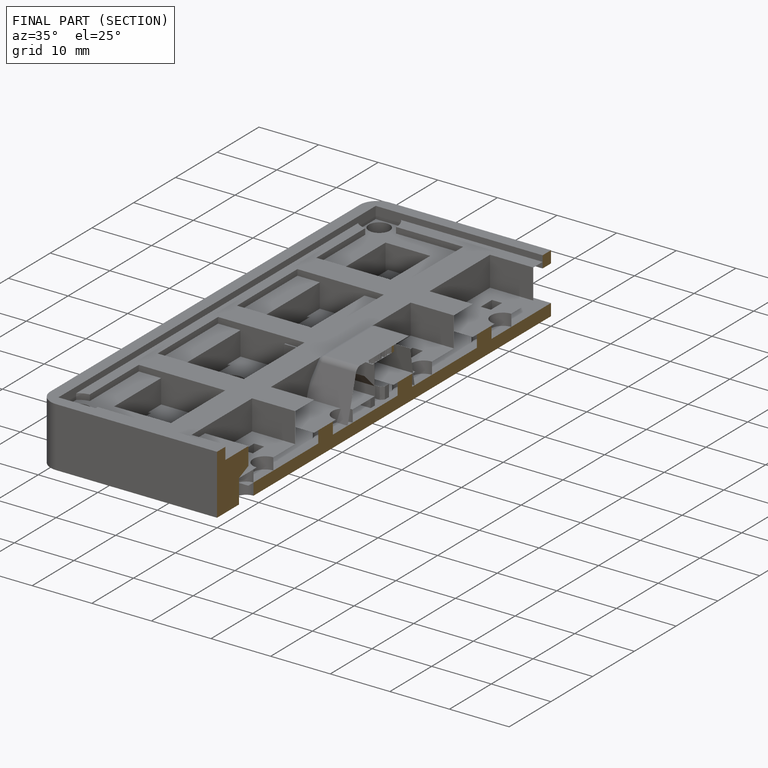
[diagram: finished part — half-section view (interior)]
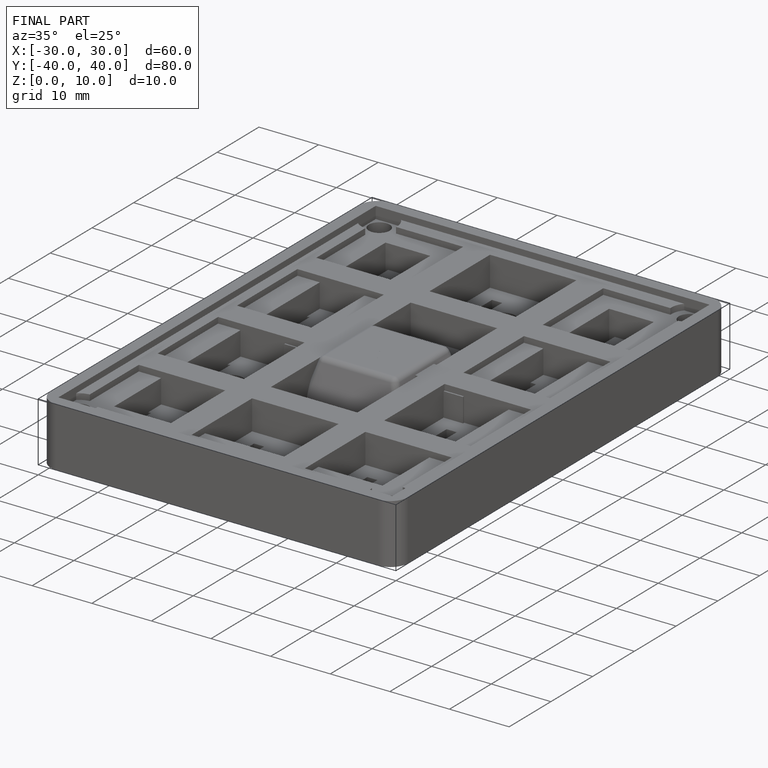
[diagram: finished part — iso view with bounding-box wireframe]
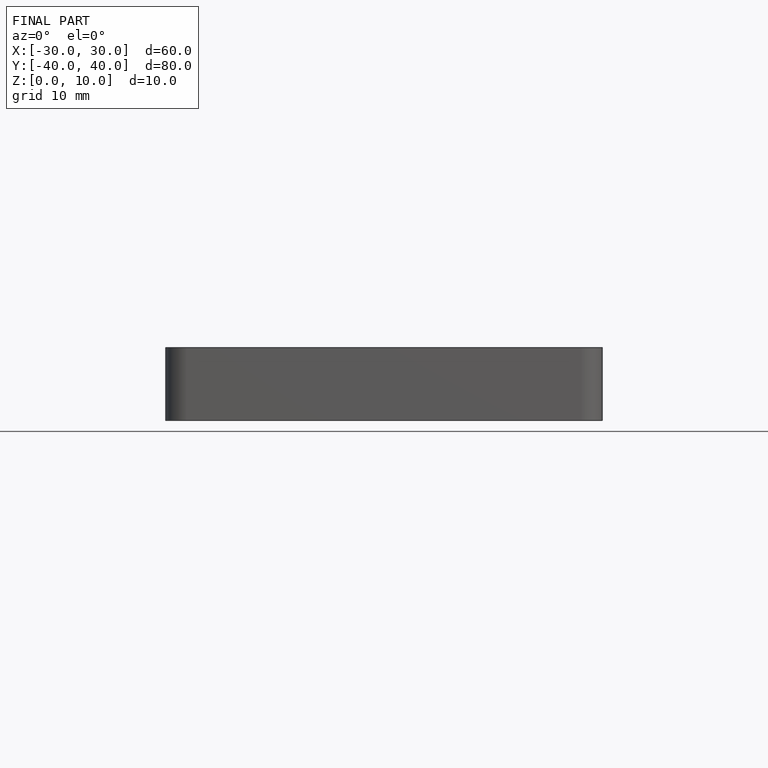
[diagram: finished part — front view with bounding-box wireframe]
